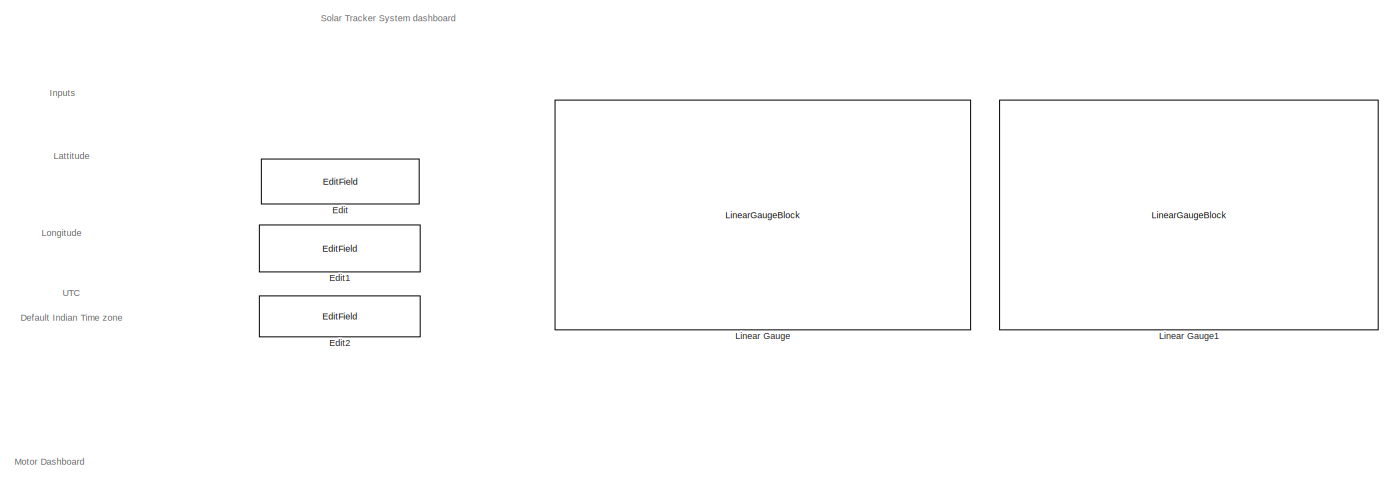
[diagram: root canvas - part 1/5, top center region]
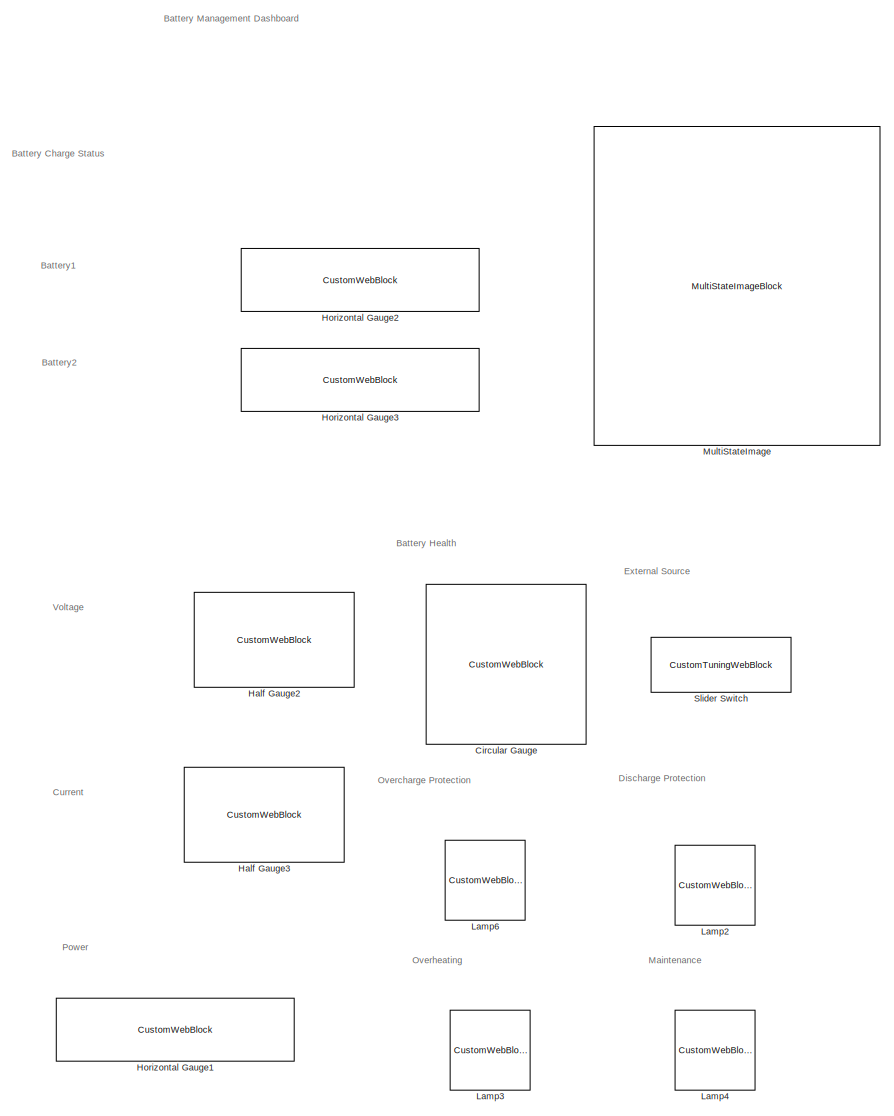
[diagram: root canvas - part 2/5, top right region]
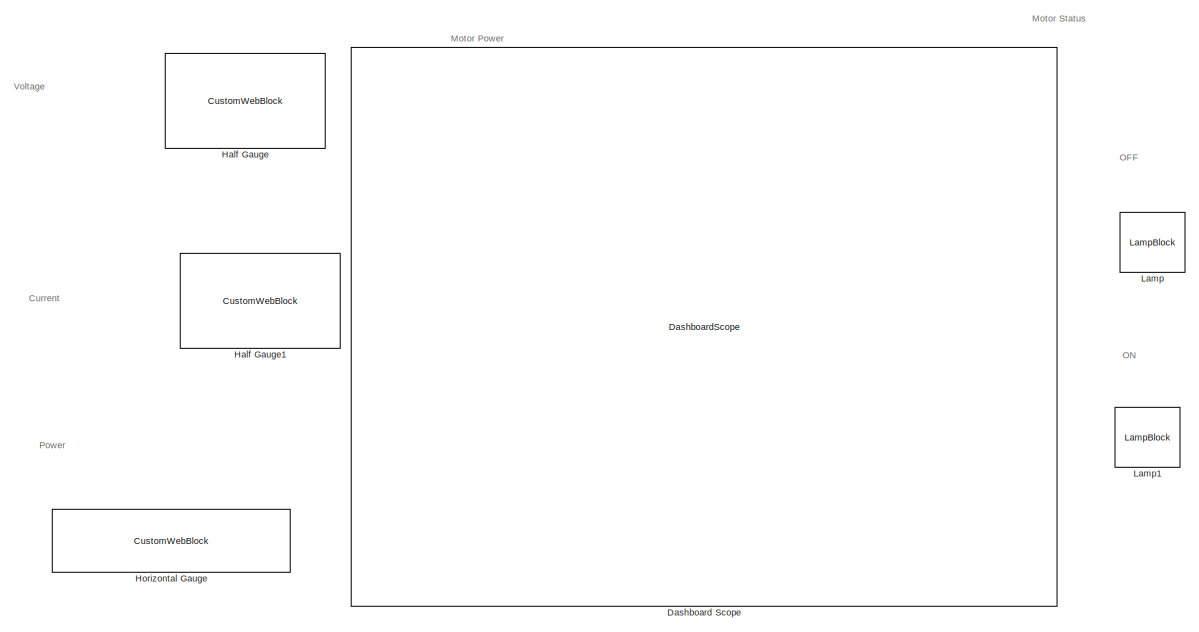
[diagram: root canvas - part 3/5, central region]
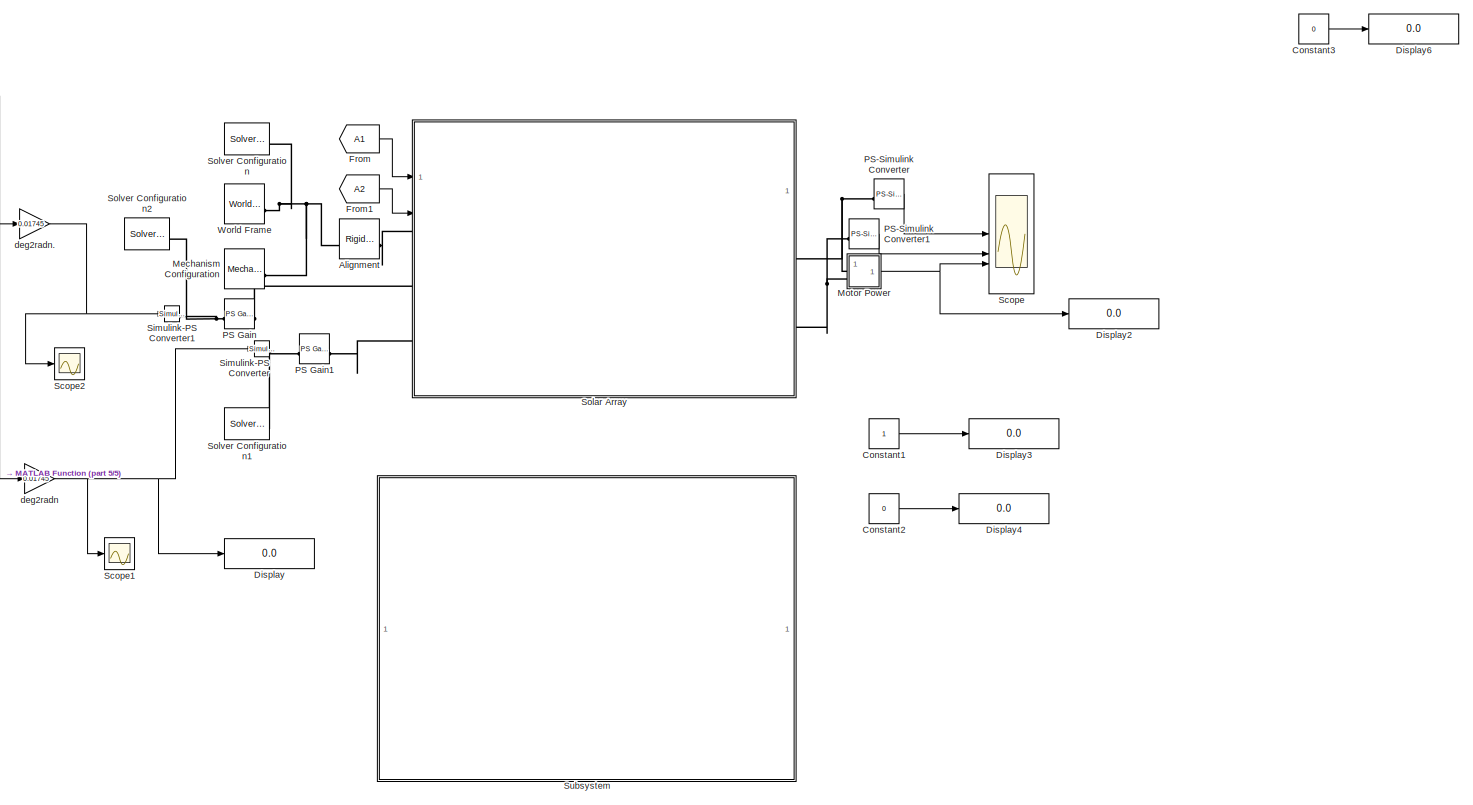
[diagram: root canvas - part 4/5, bottom center region]
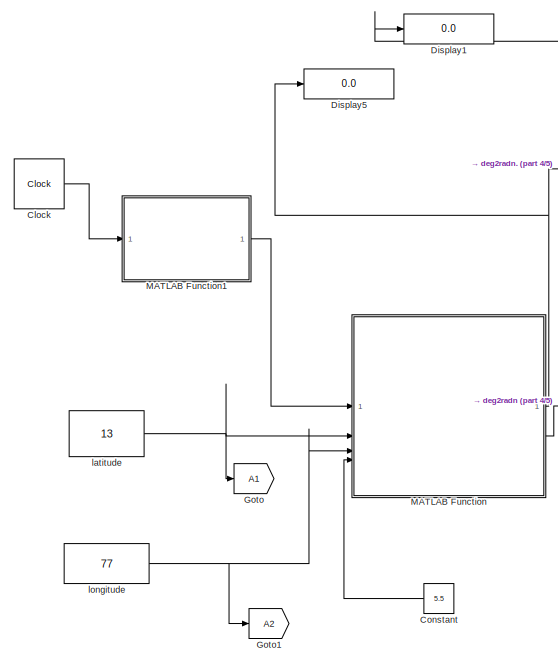
[diagram: root canvas - part 5/5, bottom left region]
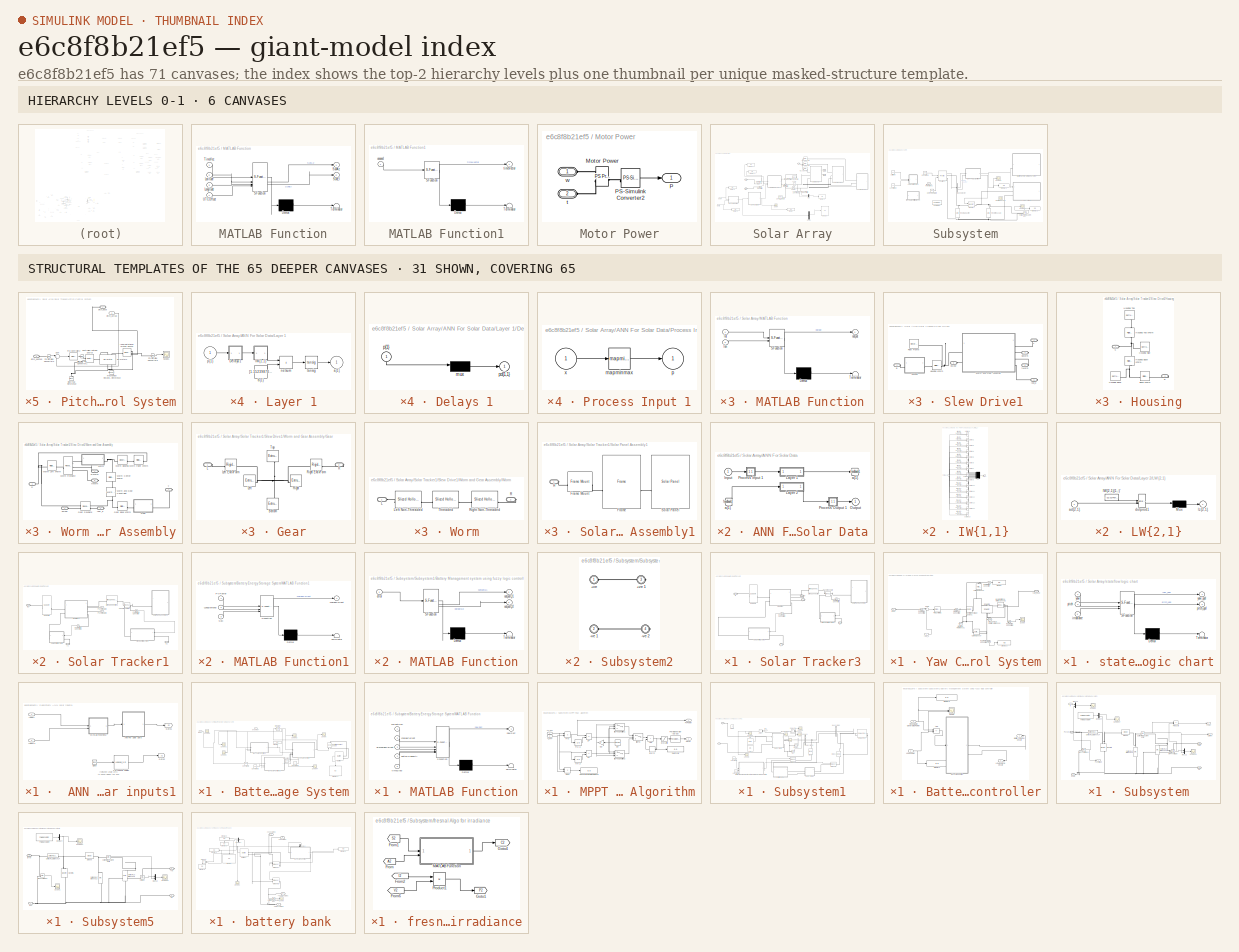
[diagram: thumbnail index - top-2 hierarchy levels (6 canvases) + 31 structural-template representatives of the remaining 65 canvases]
MODEL slx_e6c8f8b21ef5
KIND model
CONFIG AbsTol = auto
CONFIG EnableMultiTasking = off
CONFIG FixedStep = auto
CONFIG MaxStep = 0.01
CONFIG MinStep = auto
CONFIG PreLoadFcn = addpath(fullfile('WormAndGearConstraintSupport','Data'));\naddpath(fullfile('WormAndGearConstraintSupport','Scripts'));
CONFIG RelTol = 1e-3
CONFIG SampleTimeConstraint = Unconstrained
CONFIG SolverName = ode45
CONFIG StartTime = 0.0
CONFIG StopTime = 30
WORKSPACE source: external: MATLAB File  (data not in archive)
BLOCK [Reference] Alignment  REF=sm_lib/Frames and
Transforms/Rigid
Transform
  SourceBlock = sm_lib/Frames and\nTransforms/Rigid\nTransform
  SourceType = Rigid\nTransform
BLOCK [CustomWebBlock] Circular Gauge
  Configuration = {"components":[{"name":"CircularScaleComponent","settings":{"bounds":{"max":100,"min":0,"tickInterval":"auto"},"direction":"cw","flipLimits":0,"innerRadius":0.75,"internalTickHeightScaleFactor":1,"labelColor":[255,255,200],"labelFont":{"font":"Arial","fontSize":12},"labelRadius":0.528,"labelTransparency":1,"minorTickHeightScaleFactor":0.2,"needleImage":{"size":[200,50],"src":"data:image\/svg+xml;b...<+12640ch>
  LabelPosition = Hide
  ShowInitialText = on
BLOCK [Clock] Clock
  DisplayTime = on
BLOCK [Constant] Constant
  NameLocation = top
  Value = 5.5
BLOCK [Constant] Constant1
BLOCK [Constant] Constant2
  Value = 0
BLOCK [Constant] Constant3
  Value = 0
BLOCK [DashboardScope] Dashboard Scope
  NormalizeYAxis = on
  UpdateMode = Scroll
  Ymax = 300
  Ymin = -40
BLOCK [Display] Display
  Decimation = 1
BLOCK [Display] Display1
  Decimation = 1
BLOCK [Display] Display2
  Decimation = 1
BLOCK [Display] Display3
  Decimation = 1
BLOCK [Display] Display4
  Decimation = 1
BLOCK [Display] Display5
  Decimation = 1
BLOCK [Display] Display6
  Decimation = 1
BLOCK [EditField] Edit
  Alignment = Center
  LabelPosition = Hide
  ShowInitialText = on
BLOCK [EditField] Edit1
  Alignment = Center
  LabelPosition = Hide
  ShowInitialText = on
BLOCK [EditField] Edit2
  Alignment = Center
  LabelPosition = Hide
  ShowInitialText = on
BLOCK [From] From
  GotoTag = A1
BLOCK [From] From1
  GotoTag = A2
BLOCK [Goto] Goto
  GotoTag = A1
BLOCK [Goto] Goto1
  GotoTag = A2
BLOCK [CustomWebBlock] Half Gauge
  Configuration = {"components":[{"name":"CircularScaleComponent","settings":{"bounds":{"max":100,"min":0,"tickInterval":"auto"},"direction":"cw","flipLimits":0,"innerRadius":0.75,"internalTickHeightScaleFactor":1,"labelColor":[255,255,200],"labelFont":{"font":"Arial","fontSize":12},"labelRadius":0.528,"labelTransparency":1,"minorTickHeightScaleFactor":0.2,"needleImage":{"size":[200,50],"src":"data:image\/svg+xml;b...<+8210ch>  <repeated x4 — deduplicated; at blocks: Half Gauge, Half Gauge1, Half Gauge2, Half Gauge3>
  LabelPosition = Hide
  ShowInitialText = on
BLOCK [CustomWebBlock] Half Gauge1
  LabelPosition = Hide
  ShowInitialText = on
BLOCK [CustomWebBlock] Half Gauge2
  LabelPosition = Hide
  ShowInitialText = on
BLOCK [CustomWebBlock] Half Gauge3
  LabelPosition = Hide
  ShowInitialText = on
BLOCK [CustomWebBlock] Horizontal Gauge
  Configuration = {"components":[{"name":"LinearScaleComponent","settings":{"bounds":{"max":100,"min":0,"tickInterval":"auto"},"internalTickHeightScaleFactor":0.5,"labelColor":[255,255,200],"labelFont":{"font":"Arial","fontSize":12},"labelOffset":0.05,"labelTransparency":1,"needleImage":{"size":[21,75],"src":"data:image\/svg+xml;base64,PHN2ZyB4bWxucz0iaHR0cDovL3d3dy53My5vcmcvMjAwMC9zdmciIHhtbG5zOnhsaW5rPSJodHRwOi8v...<+4594ch>  <repeated x4 — deduplicated; at blocks: Horizontal Gauge, Horizontal Gauge1, Horizontal Gauge2, Horizontal Gauge3>
  LabelPosition = Hide
  ShowInitialText = on
BLOCK [CustomWebBlock] Horizontal Gauge1
  LabelPosition = Hide
  ShowInitialText = on
BLOCK [CustomWebBlock] Horizontal Gauge2
  LabelPosition = Hide
  ShowInitialText = on
BLOCK [CustomWebBlock] Horizontal Gauge3
  LabelPosition = Hide
  ShowInitialText = on
BLOCK [LampBlock] Lamp
  LabelPosition = Hide
BLOCK [LampBlock] Lamp1
  LabelPosition = Hide
BLOCK [CustomWebBlock] Lamp2
  Configuration = {"components":[{"name":"BackgroundImageComponent","settings":{"image":{"size":[150,150],"src":"data:image\/svg+xml;base64,PHN2ZyB4bWxucz0iaHR0cDovL3d3dy53My5vcmcvMjAwMC9zdmciIHhtbG5zOnhsaW5rPSJodHRwOi8vd3d3LnczLm9yZy8xOTk5L3hsaW5rIiB2aWV3Qm94PSIwIDAgNTAwIDUwMCI+PGRlZnM+PHN0eWxlPi5he2ZpbGw6dXJsKCNhKTt9LmJ7ZmlsbDp1cmwoI2IpO30uY3tmaWxsOnVybCgjYyk7fTwvc3R5bGU+PHJhZGlhbEdyYWRpZW50IGlkPSJhIiBjeD0iMjgzLj...<+21340ch>  <repeated x4 — deduplicated; at blocks: Lamp2, Lamp3, Lamp4, Lamp6>
  Icon = Custom
  LabelPosition = Hide
  ShowInitialText = on
  StateValueType = Discrete
BLOCK [CustomWebBlock] Lamp3
  Icon = Custom
  LabelPosition = Hide
  ShowInitialText = on
  StateValueType = Discrete
BLOCK [CustomWebBlock] Lamp4
  Icon = Custom
  LabelPosition = Hide
  ShowInitialText = on
  StateValueType = Discrete
BLOCK [CustomWebBlock] Lamp6
  Icon = Custom
  LabelPosition = Hide
  ShowInitialText = on
  StateValueType = Discrete
BLOCK [LinearGaugeBlock] Linear Gauge
  ScaleMax = 360
BLOCK [LinearGaugeBlock] Linear Gauge1
  ScaleMax = 360
  ScaleMin = -40
BLOCK [SubSystem] MATLAB Function
  ErrorFcn = Stateflow.Translate.translate
  LibrarySourceBlock = simulink/User-Defined\nFunctions/MATLAB Function
  PermitHierarchicalResolution = ExplicitOnly
  SFBlockType = MATLAB Function
  TreatAsAtomicUnit = on
BLOCK [Demux] MATLAB Function/ Demux 
  Outputs = 1
BLOCK [S-Function] MATLAB Function/ SFunction 
  EnableBusSupport = on
  FunctionName = sf_sfun
  PortCounts = [4 3]
  SFcnIsStateOwnerBlock = off
  SFunctionDeploymentMode = off
  Tag = Stateflow S-Function 2
BLOCK [Terminator] MATLAB Function/ Terminator 
BLOCK [Inport] MATLAB Function/Latitude
  Port = 2
BLOCK [Inport] MATLAB Function/Longitude
  Port = 3
BLOCK [Outport] MATLAB Function/SunAz
BLOCK [Outport] MATLAB Function/SunEl
  Port = 2
BLOCK [Inport] MATLAB Function/TimeVec
BLOCK [Inport] MATLAB Function/UTCOffset
  Port = 4
BLOCK [SubSystem] MATLAB Function1
  ErrorFcn = Stateflow.Translate.translate
  PermitHierarchicalResolution = ExplicitOnly
  SFBlockType = MATLAB Function
  TreatAsAtomicUnit = on
BLOCK [Demux] MATLAB Function1/ Demux 
  Outputs = 1
BLOCK [S-Function] MATLAB Function1/ SFunction 
  EnableBusSupport = on
  FunctionName = sf_sfun
  PortCounts = [1 2]
  SFcnIsStateOwnerBlock = off
  SFunctionDeploymentMode = off
  Tag = Stateflow S-Function 4
BLOCK [Terminator] MATLAB Function1/ Terminator 
BLOCK [Outport] MATLAB Function1/timeVector
BLOCK [Inport] MATLAB Function1/unused
BLOCK [Reference] Mechanism Configuration  REF=sm_lib/Utilities/Mechanism
Configuration
  SourceBlock = sm_lib/Utilities/Mechanism\nConfiguration
  SourceType = Mechanism\nConfiguration
BLOCK [SubSystem] Motor Power
BLOCK [Reference] Motor Power/Motor Power  REF=fl_ps_legacy_lib/Legacy Physical
Signals/Functions/PS Product
  SourceBlock = fl_ps_legacy_lib/Legacy Physical\nSignals/Functions/PS Product
  SourceType = PS Product
BLOCK [Outport] Motor Power/P
BLOCK [Reference] Motor Power/PS-Simulink Converter2  REF=nesl_utility/PS-Simulink
Converter
  SourceBlock = nesl_utility/PS-Simulink\nConverter
  SourceType = PS-Simulink\nConverter
BLOCK [PMIOPort] Motor Power/t
  Port = 2
  Side = Left
BLOCK [PMIOPort] Motor Power/w
  Side = Left
BLOCK [MultiStateImageBlock] MultiStateImage
BLOCK [Reference] PS Gain  REF=fl_lib/Physical Signals/Functions/PS Gain
  SourceBlock = fl_lib/Physical Signals/Functions/PS Gain
  SourceType = PS Gain
BLOCK [Reference] PS Gain1  REF=fl_lib/Physical Signals/Functions/PS Gain
  SourceBlock = fl_lib/Physical Signals/Functions/PS Gain
  SourceType = PS Gain
BLOCK [Reference] PS-Simulink Converter  REF=nesl_utility/PS-Simulink
Converter
  SourceBlock = nesl_utility/PS-Simulink\nConverter
  SourceType = PS-Simulink\nConverter
BLOCK [Reference] PS-Simulink Converter1  REF=nesl_utility/PS-Simulink
Converter
  SourceBlock = nesl_utility/PS-Simulink\nConverter
  SourceType = PS-Simulink\nConverter
BLOCK [Scope] Scope
  Floating = off
  NumInputPorts = 3
  ScopeSpecificationString = Simulink.scopes.TimeScopeBlockCfg('CurrentConfiguration', extmgr.ConfigurationSet(extmgr.Configuration('Core','General UI',true),extmgr.Configuration('Core','Source UI',true),extmgr.Configuration('Sources','WiredSimulink',true),extmgr.Configuration('Visuals','Time Domain',true,'SerializedDisplays',{struct('MinYLimReal','-14200.33976','MaxYLimReal','61529.50734','YLabelReal','','MinYLimMag','   0.0...<+3073ch>
BLOCK [Scope] Scope1
  Floating = off
  NumInputPorts = 1
  ScopeSpecificationString = Simulink.scopes.TimeScopeBlockCfg('CurrentConfiguration', extmgr.ConfigurationSet(extmgr.Configuration('Core','General UI',true),extmgr.Configuration('Core','Source UI',true),extmgr.Configuration('Sources','WiredSimulink',true,'DataLoggingVariableName','ScopeData1'),extmgr.Configuration('Visuals','Time Domain',true,'SerializedDisplays',{struct('MinYLimReal','1.02778','MaxYLimReal','1.03099','YLabe...<+1434ch>
BLOCK [Scope] Scope2
  Floating = off
  NumInputPorts = 1
  ScopeSpecificationString = Simulink.scopes.TimeScopeBlockCfg('CurrentConfiguration', extmgr.ConfigurationSet(extmgr.Configuration('Core','General UI',true),extmgr.Configuration('Core','Source UI',true),extmgr.Configuration('Sources','WiredSimulink',true,'DataLoggingVariableName','ScopeData2'),extmgr.Configuration('Visuals','Time Domain',true,'SerializedDisplays',{struct('MinYLimReal','4.28654','MaxYLimReal','4.29293','YLabe...<+1440ch>
BLOCK [Reference] Simulink-PS Converter  REF=nesl_utility/Simulink-PS
Converter
  SourceBlock = nesl_utility/Simulink-PS\nConverter
  SourceType = Simulink-PS\nConverter
BLOCK [Reference] Simulink-PS Converter1  REF=nesl_utility/Simulink-PS
Converter
  SourceBlock = nesl_utility/Simulink-PS\nConverter
  SourceType = Simulink-PS\nConverter
BLOCK [CustomTuningWebBlock] Slider Switch
  Configuration = {"components":[{"name":"CustomSwitchStateComponent","settings":{"position":[0,0,1,1],"states":[{"HitRegion":{"position":[0,0,0.5,1]},"Image":{"position":[0,0,1,1],"size":[1,1],"src":"data:image\/svg+xml;base64,PD94bWwgdmVyc2lvbj0iMS4wIiBlbmNvZGluZz0idXRmLTgiPz4NCjwhLS0gR2VuZXJhdG9yOiBBZG9iZSBJbGx1c3RyYXRvciAyNS4yLjEsIFNWRyBFeHBvcnQgUGx1Zy1JbiAuIFNWRyBWZXJzaW9uOiA2LjAwIEJ1aWxkIDApICAtLT4NCjxzdmcgdm...<+12680ch>
  LabelPosition = Hide
  ShowInitialText = on
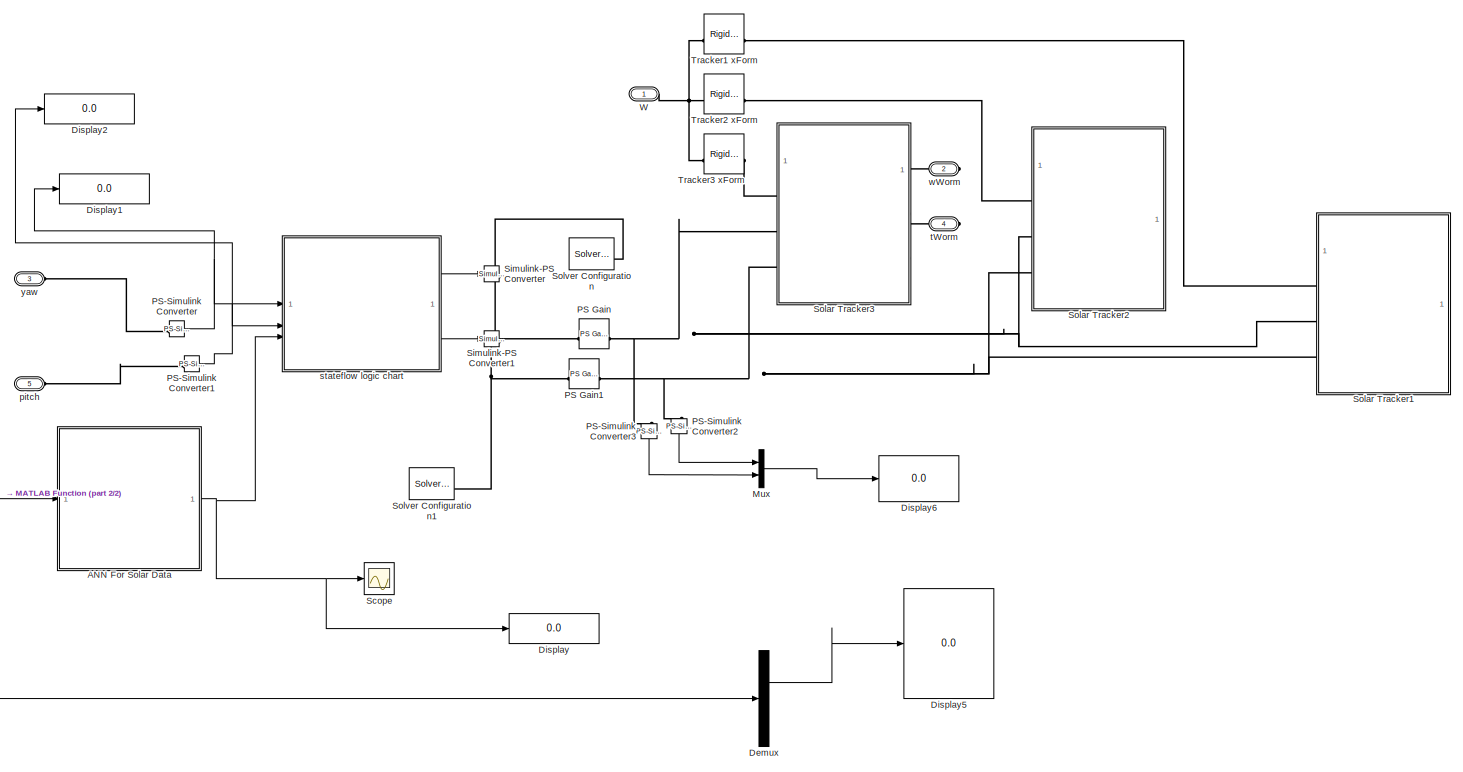
[diagram: Solar Array - part 1/2, most of the canvas]
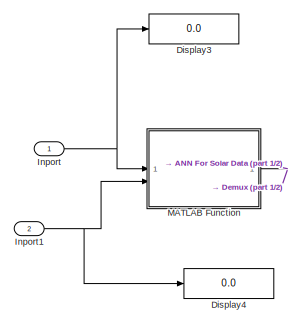
[diagram: Solar Array - part 2/2, middle left region]
BLOCK [SubSystem] Solar Array
BLOCK [SubSystem] Solar Array/ANN For Solar Data
BLOCK [From] Solar Array/ANN For Solar Data/ a{1} 
  GotoTag = feedback1
BLOCK [Inport] Solar Array/ANN For Solar Data/Input
  PortDimensions = 5
BLOCK [SubSystem] Solar Array/ANN For Solar Data/Layer 1
BLOCK [SubSystem] Solar Array/ANN For Solar Data/Layer 1/Delays 1
BLOCK [Mux] Solar Array/ANN For Solar Data/Layer 1/Delays 1/mux
  Inputs = 1
BLOCK [Outport] Solar Array/ANN For Solar Data/Layer 1/Delays 1/pd{1,1}
BLOCK [Inport] Solar Array/ANN For Solar Data/Layer 1/Delays 1/p{1}
  NameLocation = left
  PortDimensions = 5
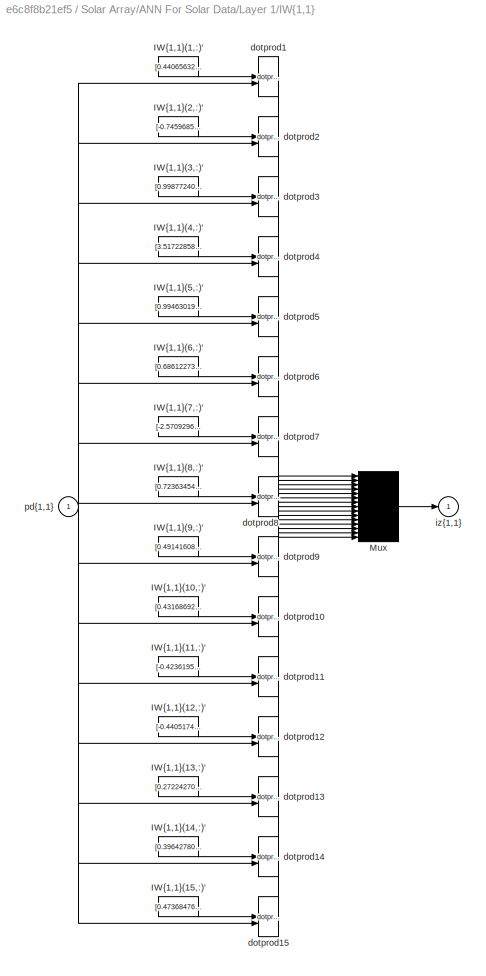
BLOCK [SubSystem] Solar Array/ANN For Solar Data/Layer 1/IW{1,1}
BLOCK [Constant] Solar Array/ANN For Solar Data/Layer 1/IW{1,1}/IW{1,1}(1,:)'
  Value = [0.440656326433005729459324584240675903856754302978515625;0.0082499057371298346874599616285195224918425083160400390625;-0.044099552646091534635619524351568543352186679840087890625;-0.00245166785449918260553214821584333549253642559051513671875;-1.5749584398746006019820242727291770279407501220703125]
BLOCK [Constant] Solar Array/ANN For Solar Data/Layer 1/IW{1,1}/IW{1,1}(10,:)'
  Value = [0.43168692246912721000029478091164492070674896240234375;0.034341159783117192194623612522264011204242706298828125;-0.0175976984815091157254851594871070119552314281463623046875;0.00372555310842444774299675458451019949279725551605224609375;-2.406642111020334429127842668094672262668609619140625]
BLOCK [Constant] Solar Array/ANN For Solar Data/Layer 1/IW{1,1}/IW{1,1}(11,:)'
  Value = [-0.42361955879776136413283893489278852939605712890625;1.10977633622082638709116508834995329380035400390625;-0.0835501550278960058992794301957474090158939361572265625;-2.61794715822211987443779435125179588794708251953125;-1.3518274325769723542833844476263038814067840576171875]
BLOCK [Constant] Solar Array/ANN For Solar Data/Layer 1/IW{1,1}/IW{1,1}(12,:)'
  Value = [-0.440517461325625137025241429000743664801120758056640625;-0.01151117447380817053470547506321963737718760967254638671875;0.045248099003977693133293769278679974377155303955078125;0.0032734020863622557973027227262718952260911464691162109375;1.4633094238269730436030613418552093207836151123046875]
BLOCK [Constant] Solar Array/ANN For Solar Data/Layer 1/IW{1,1}/IW{1,1}(13,:)'
  Value = [0.27224270352471890976886470525641925632953643798828125;-1.043836614745576429896800618735142052173614501953125;0.1896766694888755433456850596485310234129428863525390625;0.004672440805683443498796947324080974794924259185791015625;2.0409373300063844425267234328202903270721435546875]
BLOCK [Constant] Solar Array/ANN For Solar Data/Layer 1/IW{1,1}/IW{1,1}(14,:)'
  Value = [0.396427807374588436761797538565588183701038360595703125;-1.789625106557950484642560695647262036800384521484375;-2.682230989124238629273122569429688155651092529296875;8.9025806104754980907500794273801147937774658203125;-4.12817824967732338592441010405309498310089111328125]
BLOCK [Constant] Solar Array/ANN For Solar Data/Layer 1/IW{1,1}/IW{1,1}(15,:)'
  Value = [0.47368476745276277828367028632783330976963043212890625;-5.28165834570436576456131660961546003818511962890625;-0.581430249082355743439620709978044033050537109375;0.038405255237450079686123416422560694627463817596435546875;-2.768289678256326880045889993198215961456298828125]
BLOCK [Constant] Solar Array/ANN For Solar Data/Layer 1/IW{1,1}/IW{1,1}(2,:)'
  Value = [-0.7459685032199796506091615810873918235301971435546875;0.03958991653606432070677811907444265671074390411376953125;-0.06880802029727785262824824030758463777601718902587890625;-0.00192728313709774300155341819618115550838410854339599609375;-3.09817162747569074809916855883784592151641845703125]
BLOCK [Constant] Solar Array/ANN For Solar Data/Layer 1/IW{1,1}/IW{1,1}(3,:)'
  Value = [0.998772409858738274834877302055247128009796142578125;-0.119100118965819457006460879711084999144077301025390625;1.4734412523383586535175027165678329765796661376953125;0.1082246900612085227511016682910849340260028839111328125;-1.4500986091884959794384712949977256357669830322265625]
BLOCK [Constant] Solar Array/ANN For Solar Data/Layer 1/IW{1,1}/IW{1,1}(4,:)'
  Value = [3.517228586487414876415869002812542021274566650390625;-11.1530312237673268072057908284477889537811279296875;-0.03467422529560158783734635790096945129334926605224609375;-0.0253280237128823415559963905252516269683837890625;1.7180664031691634807685886698891408741474151611328125]
BLOCK [Constant] Solar Array/ANN For Solar Data/Layer 1/IW{1,1}/IW{1,1}(5,:)'
  Value = [0.9946301975619282753626748672104440629482269287109375;-0.1600082753687088743532740409136749804019927978515625;-1.521780916815078654735771124251186847686767578125;-0.1297648495221437048297019600795465521514415740966796875;-1.2414916778623013016158438404090702533721923828125]
BLOCK [Constant] Solar Array/ANN For Solar Data/Layer 1/IW{1,1}/IW{1,1}(6,:)'
  Value = [0.68612273992241623599142030798248015344142913818359375;-0.104982209681928895239622079316177405416965484619140625;-0.613241164669414917653966767829842865467071533203125;-0.05920533907694876252225668622486409731209278106689453125;1.0022019309219019067569433900644071400165557861328125]
BLOCK [Constant] Solar Array/ANN For Solar Data/Layer 1/IW{1,1}/IW{1,1}(7,:)'
  Value = [-2.57092967668512972778671610285528004169464111328125;-0.01478187733930325098441471709520556032657623291015625;-5.47678773959155140715893139713443815708160400390625;-0.6069798796372032345658453778014518320560455322265625;-1.7852945216614053425274732944671995937824249267578125]
BLOCK [Constant] Solar Array/ANN For Solar Data/Layer 1/IW{1,1}/IW{1,1}(8,:)'
  Value = [0.72363454345364075503965750613133423030376434326171875;-0.162701561217215739940655794271151535212993621826171875;0.385534273778422253986519763202522881329059600830078125;0.0214664874822279548582937280798432766459882259368896484375;1.186058790761077119668698287568986415863037109375]
BLOCK [Constant] Solar Array/ANN For Solar Data/Layer 1/IW{1,1}/IW{1,1}(9,:)'
  Value = [0.491416081983666319654702192565309815108776092529296875;-0.063370266488279758387847095946199260652065277099609375;-0.14774698755400617056210421651485376060009002685546875;-0.0228903924921436026373999794714109157212078571319580078125;0.65075914416514757387943745925440452992916107177734375]
BLOCK [Mux] Solar Array/ANN For Solar Data/Layer 1/IW{1,1}/Mux
  Inputs = 15
BLOCK [Reference] Solar Array/ANN For Solar Data/Layer 1/IW{1,1}/dotprod1  REF=neural/Weight Functions/dotprod
  SourceBlock = neural/Weight Functions/dotprod
  SourceType = DOTPROD
BLOCK [Reference] Solar Array/ANN For Solar Data/Layer 1/IW{1,1}/dotprod10  REF=neural/Weight Functions/dotprod
  SourceBlock = neural/Weight Functions/dotprod
  SourceType = DOTPROD
BLOCK [Reference] Solar Array/ANN For Solar Data/Layer 1/IW{1,1}/dotprod11  REF=neural/Weight Functions/dotprod
  SourceBlock = neural/Weight Functions/dotprod
  SourceType = DOTPROD
BLOCK [Reference] Solar Array/ANN For Solar Data/Layer 1/IW{1,1}/dotprod12  REF=neural/Weight Functions/dotprod
  SourceBlock = neural/Weight Functions/dotprod
  SourceType = DOTPROD
BLOCK [Reference] Solar Array/ANN For Solar Data/Layer 1/IW{1,1}/dotprod13  REF=neural/Weight Functions/dotprod
  SourceBlock = neural/Weight Functions/dotprod
  SourceType = DOTPROD
BLOCK [Reference] Solar Array/ANN For Solar Data/Layer 1/IW{1,1}/dotprod14  REF=neural/Weight Functions/dotprod
  SourceBlock = neural/Weight Functions/dotprod
  SourceType = DOTPROD
BLOCK [Reference] Solar Array/ANN For Solar Data/Layer 1/IW{1,1}/dotprod15  REF=neural/Weight Functions/dotprod
  SourceBlock = neural/Weight Functions/dotprod
  SourceType = DOTPROD
BLOCK [Reference] Solar Array/ANN For Solar Data/Layer 1/IW{1,1}/dotprod2  REF=neural/Weight Functions/dotprod
  SourceBlock = neural/Weight Functions/dotprod
  SourceType = DOTPROD
BLOCK [Reference] Solar Array/ANN For Solar Data/Layer 1/IW{1,1}/dotprod3  REF=neural/Weight Functions/dotprod
  SourceBlock = neural/Weight Functions/dotprod
  SourceType = DOTPROD
BLOCK [Reference] Solar Array/ANN For Solar Data/Layer 1/IW{1,1}/dotprod4  REF=neural/Weight Functions/dotprod
  SourceBlock = neural/Weight Functions/dotprod
  SourceType = DOTPROD
BLOCK [Reference] Solar Array/ANN For Solar Data/Layer 1/IW{1,1}/dotprod5  REF=neural/Weight Functions/dotprod
  SourceBlock = neural/Weight Functions/dotprod
  SourceType = DOTPROD
BLOCK [Reference] Solar Array/ANN For Solar Data/Layer 1/IW{1,1}/dotprod6  REF=neural/Weight Functions/dotprod
  SourceBlock = neural/Weight Functions/dotprod
  SourceType = DOTPROD
BLOCK [Reference] Solar Array/ANN For Solar Data/Layer 1/IW{1,1}/dotprod7  REF=neural/Weight Functions/dotprod
  SourceBlock = neural/Weight Functions/dotprod
  SourceType = DOTPROD
BLOCK [Reference] Solar Array/ANN For Solar Data/Layer 1/IW{1,1}/dotprod8  REF=neural/Weight Functions/dotprod
  SourceBlock = neural/Weight Functions/dotprod
  SourceType = DOTPROD
BLOCK [Reference] Solar Array/ANN For Solar Data/Layer 1/IW{1,1}/dotprod9  REF=neural/Weight Functions/dotprod
  SourceBlock = neural/Weight Functions/dotprod
  SourceType = DOTPROD
BLOCK [Outport] Solar Array/ANN For Solar Data/Layer 1/IW{1,1}/iz{1,1}
BLOCK [Inport] Solar Array/ANN For Solar Data/Layer 1/IW{1,1}/pd{1,1}
  PortDimensions = 5
BLOCK [Outport] Solar Array/ANN For Solar Data/Layer 1/a{1}
  InitialOutput = [0;0;0;0;0;0;0;0;0;0;0;0;0;0;0]
BLOCK [Constant] Solar Array/ANN For Solar Data/Layer 1/b{1}
  Value = [1.1523987025298774167225701603456400334835052490234375;0.7021964325858640609823169143055565655231475830078125;0.188737988975959225523837403670768253505229949951171875;-7.84046969712124397489105831482447683811187744140625;-0.118669448545166977826426091269240714609622955322265625;-0.049431980190826944887572125253427657298743724822998046875;3.929504687090930037385305695352144539356231689453125;0.046...<+443ch>
BLOCK [Sum] Solar Array/ANN For Solar Data/Layer 1/netsum
  IconShape = rectangular
  InputSameDT = on
  Inputs = 2
  OutDataTypeStr = Inherit: Same as first input
  SaturateOnIntegerOverflow = on
BLOCK [Inport] Solar Array/ANN For Solar Data/Layer 1/p{1}
  PortDimensions = 5
BLOCK [Reference] Solar Array/ANN For Solar Data/Layer 1/tansig  REF=neural/Transfer Functions/tansig
  SourceBlock = neural/Transfer Functions/tansig
  SourceType = TANSIG
BLOCK [SubSystem] Solar Array/ANN For Solar Data/Layer 2
BLOCK [SubSystem] Solar Array/ANN For Solar Data/Layer 2/Delays 1
BLOCK [Mux] Solar Array/ANN For Solar Data/Layer 2/Delays 1/mux
  Inputs = 1
BLOCK [Outport] Solar Array/ANN For Solar Data/Layer 2/Delays 1/pd{2,1}
BLOCK [Inport] Solar Array/ANN For Solar Data/Layer 2/Delays 1/p{2}
  NameLocation = left
  PortDimensions = 15
BLOCK [SubSystem] Solar Array/ANN For Solar Data/Layer 2/LW{2,1}
BLOCK [Constant] Solar Array/ANN For Solar Data/Layer 2/LW{2,1}/IW{2,1}(1,:)'
  Value = [-32.01745748567214633339972351677715778350830078125;1.31095166621215941660238968324847519397735595703125;0.42367758547066125540681014172150753438472747802734375;0.061422766084801093400269422772908001206815242767333984375;0.405265069982068959486554149407311342656612396240234375;2.479602125875937534971171771758235991001129150390625;0.07951932451130448720189036748706712387502193450927734375;2.053423...<+442ch>
BLOCK [Mux] Solar Array/ANN For Solar Data/Layer 2/LW{2,1}/Mux
  Inputs = 1
BLOCK [Inport] Solar Array/ANN For Solar Data/Layer 2/LW{2,1}/ad{2,1}
  PortDimensions = 15
BLOCK [Reference] Solar Array/ANN For Solar Data/Layer 2/LW{2,1}/dotprod1  REF=neural/Weight Functions/dotprod
  SourceBlock = neural/Weight Functions/dotprod
  SourceType = DOTPROD
BLOCK [Outport] Solar Array/ANN For Solar Data/Layer 2/LW{2,1}/lz{2,1}
BLOCK [Inport] Solar Array/ANN For Solar Data/Layer 2/a{1} 
  PortDimensions = 15
BLOCK [Outport] Solar Array/ANN For Solar Data/Layer 2/a{2}
BLOCK [Constant] Solar Array/ANN For Solar Data/Layer 2/b{2}
  Value = -2.072128088117164423920257831923663616180419921875
BLOCK [Sum] Solar Array/ANN For Solar Data/Layer 2/netsum
  IconShape = rectangular
  InputSameDT = on
  Inputs = 2
  OutDataTypeStr = Inherit: Same as first input
  SaturateOnIntegerOverflow = on
BLOCK [Reference] Solar Array/ANN For Solar Data/Layer 2/purelin  REF=neural/Transfer Functions/purelin
  SourceBlock = neural/Transfer Functions/purelin
  SourceType = PURELIN
BLOCK [Outport] Solar Array/ANN For Solar Data/Output
BLOCK [SubSystem] Solar Array/ANN For Solar Data/Process Input 1
BLOCK [Reference] Solar Array/ANN For Solar Data/Process Input 1/mapminmax  REF=neural/Processing Functions/mapminmax
  SourceBlock = neural/Processing Functions/mapminmax
  SourceType = MAPMINMAX Preprocess
BLOCK [Outport] Solar Array/ANN For Solar Data/Process Input 1/p
  PortDimensions = 5
BLOCK [Inport] Solar Array/ANN For Solar Data/Process Input 1/x
  PortDimensions = 5
BLOCK [SubSystem] Solar Array/ANN For Solar Data/Process Output 1
BLOCK [Inport] Solar Array/ANN For Solar Data/Process Output 1/a
  PortDimensions = 1
BLOCK [Reference] Solar Array/ANN For Solar Data/Process Output 1/mapminmax_reverse  REF=neural/Processing Functions/mapminmax_reverse
  SourceBlock = neural/Processing Functions/mapminmax_reverse
  SourceType = MAPMINMAX Reverse Process
BLOCK [Outport] Solar Array/ANN For Solar Data/Process Output 1/y
  PortDimensions = 1
BLOCK [Goto] Solar Array/ANN For Solar Data/a{1}
  GotoTag = feedback1
BLOCK [Demux] Solar Array/Demux
  Outputs = 1
BLOCK [Display] Solar Array/Display
  Decimation = 1
BLOCK [Display] Solar Array/Display1
  Decimation = 1
BLOCK [Display] Solar Array/Display2
  Decimation = 1
BLOCK [Display] Solar Array/Display3
  Decimation = 1
BLOCK [Display] Solar Array/Display4
  Decimation = 1
BLOCK [Display] Solar Array/Display5
  Decimation = 1
BLOCK [Display] Solar Array/Display6
  Decimation = 1
BLOCK [Inport] Solar Array/Inport
BLOCK [Inport] Solar Array/Inport1
  Port = 2
BLOCK [SubSystem] Solar Array/MATLAB Function
  ErrorFcn = Stateflow.Translate.translate
  PermitHierarchicalResolution = ExplicitOnly
  SFBlockType = MATLAB Function
  TreatAsAtomicUnit = on
BLOCK [Demux] Solar Array/MATLAB Function/ Demux 
  Outputs = 1
BLOCK [S-Function] Solar Array/MATLAB Function/ SFunction 
  EnableBusSupport = on
  FunctionName = sf_sfun
  PortCounts = [2 2]
  SFcnIsStateOwnerBlock = off
  SFunctionDeploymentMode = off
  Tag = Stateflow S-Function 1
BLOCK [Terminator] Solar Array/MATLAB Function/ Terminator 
BLOCK [Inport] Solar Array/MATLAB Function/lat
BLOCK [Inport] Solar Array/MATLAB Function/lon
  Port = 2
BLOCK [Outport] Solar Array/MATLAB Function/output
BLOCK [Mux] Solar Array/Mux
  DisplayOption = bar
  Inputs = 2
BLOCK [Reference] Solar Array/PS Gain  REF=fl_lib/Physical Signals/Functions/PS Gain
  SourceBlock = fl_lib/Physical Signals/Functions/PS Gain
  SourceType = PS Gain
BLOCK [Reference] Solar Array/PS Gain1  REF=fl_lib/Physical Signals/Functions/PS Gain
  SourceBlock = fl_lib/Physical Signals/Functions/PS Gain
  SourceType = PS Gain
BLOCK [Reference] Solar Array/PS-Simulink Converter  REF=nesl_utility/PS-Simulink
Converter
  SourceBlock = nesl_utility/PS-Simulink\nConverter
  SourceType = PS-Simulink\nConverter
BLOCK [Reference] Solar Array/PS-Simulink Converter1  REF=nesl_utility/PS-Simulink
Converter
  SourceBlock = nesl_utility/PS-Simulink\nConverter
  SourceType = PS-Simulink\nConverter
BLOCK [Reference] Solar Array/PS-Simulink Converter2  REF=nesl_utility/PS-Simulink
Converter
  NameLocation = left
  SourceBlock = nesl_utility/PS-Simulink\nConverter
  SourceType = PS-Simulink\nConverter
BLOCK [Reference] Solar Array/PS-Simulink Converter3  REF=nesl_utility/PS-Simulink
Converter
  NameLocation = left
  SourceBlock = nesl_utility/PS-Simulink\nConverter
  SourceType = PS-Simulink\nConverter
BLOCK [Scope] Solar Array/Scope
  Floating = off
  NumInputPorts = 1
  ScopeSpecificationString = Simulink.scopes.TimeScopeBlockCfg('CurrentConfiguration', extmgr.ConfigurationSet(extmgr.Configuration('Core','General UI',true),extmgr.Configuration('Core','Source UI',true),extmgr.Configuration('Sources','WiredSimulink',true,'DataLoggingVariableName','ScopeData1'),extmgr.Configuration('Visuals','Time Domain',true,'SerializedDisplays',{struct('MinYLimReal','14.80197','MaxYLimReal','34.80197','YLa...<+1408ch>
BLOCK [Reference] Solar Array/Simulink-PS Converter  REF=nesl_utility/Simulink-PS
Converter
  SourceBlock = nesl_utility/Simulink-PS\nConverter
  SourceType = Simulink-PS\nConverter
BLOCK [Reference] Solar Array/Simulink-PS Converter1  REF=nesl_utility/Simulink-PS
Converter
  SourceBlock = nesl_utility/Simulink-PS\nConverter
  SourceType = Simulink-PS\nConverter
BLOCK [SubSystem] Solar Array/Solar Tracker1
BLOCK [PMIOPort] Solar Array/Solar Tracker1/B1
  Side = Left
BLOCK [Reference] Solar Array/Solar Tracker1/Drive Connection1  REF=WormAndGearConstraintLibrary/Drive Connection
  LibrarySourceBlock = sm_solar_tracker_lib/Drive Connection
  SourceBlock = WormAndGearConstraintLibrary/Drive Connection
  SourceType = Drive Connection
BLOCK [Reference] Solar Array/Solar Tracker1/PS Terminator2  REF=fl_lib/Physical Signals/Sinks/PS Terminator
  SourceBlock = fl_lib/Physical Signals/Sinks/PS Terminator
  SourceType = PS Terminator
BLOCK [Reference] Solar Array/Solar Tracker1/PS Terminator3  REF=fl_lib/Physical Signals/Sinks/PS Terminator
  SourceBlock = fl_lib/Physical Signals/Sinks/PS Terminator
  SourceType = PS Terminator
BLOCK [Reference] Solar Array/Solar Tracker1/PS-Simulink Converter  REF=nesl_utility/PS-Simulink
Converter
  SourceBlock = nesl_utility/PS-Simulink\nConverter
  SourceType = PS-Simulink\nConverter
BLOCK [Reference] Solar Array/Solar Tracker1/PS-Simulink Converter1  REF=nesl_utility/PS-Simulink
Converter
  NameLocation = top
  SourceBlock = nesl_utility/PS-Simulink\nConverter
  SourceType = PS-Simulink\nConverter
BLOCK [Reference] Solar Array/Solar Tracker1/Panel Revolute1  REF=sm_lib/Joints/Revolute Joint
  SourceBlock = sm_lib/Joints/Revolute Joint
  SourceType = Revolute Joint
BLOCK [SubSystem] Solar Array/Solar Tracker1/Pitch Control System
  NameLocation = top
BLOCK [Reference] Solar Array/Solar Tracker1/Pitch Control System/Controlled Voltage Source  REF=fl_lib/Electrical/Electrical Sources/Controlled Voltage
Source
  SourceBlock = fl_lib/Electrical/Electrical Sources/Controlled Voltage\nSource
  SourceType = Controlled Voltage\nSource
BLOCK [Reference] Solar Array/Solar Tracker1/Pitch Control System/DC Motor2  REF=ee_lib/Electromechanical/Brushed Motors/DC Motor
  NameLocation = right
  SourceBlock = ee_lib/Electromechanical/Brushed Motors/DC Motor
  SourceType = DC Motor
BLOCK [Reference] Solar Array/Solar Tracker1/Pitch Control System/Electrical Reference  REF=fl_lib/Electrical/Electrical Elements/Electrical Reference
  NameLocation = right
  SourceBlock = fl_lib/Electrical/Electrical Elements/Electrical Reference
  SourceType = Electrical Reference
BLOCK [Reference] Solar Array/Solar Tracker1/Pitch Control System/Ideal Rotational Motion Sensor  REF=fl_lib/Mechanical/Mechanical Sensors/Ideal Rotational
Motion Sensor
  SourceBlock = fl_lib/Mechanical/Mechanical Sensors/Ideal Rotational\nMotion Sensor
  SourceType = Ideal Rotational\nMotion Sensor
BLOCK [Reference] Solar Array/Solar Tracker1/Pitch Control System/Mechanical Rotational Reference  REF=fl_lib/Mechanical/Rotational Elements/Mechanical
Rotational Reference
  NameLocation = right
  SourceBlock = fl_lib/Mechanical/Rotational Elements/Mechanical\nRotational Reference
  SourceType = Mechanical\nRotational Reference
BLOCK [Reference] Solar Array/Solar Tracker1/Pitch Control System/PID Controller2  REF=slpidlib/PID Controller
  LibrarySourceBlock = simulink/Continuous/PID Controller
  SourceBlock = slpidlib/PID Controller
  SourceType = PID 1dof
BLOCK [Reference] Solar Array/Solar Tracker1/Pitch Control System/PS-Simulink Converter3  REF=nesl_utility/PS-Simulink
Converter
  SourceBlock = nesl_utility/PS-Simulink\nConverter
  SourceType = PS-Simulink\nConverter
BLOCK [Reference] Solar Array/Solar Tracker1/Pitch Control System/PS-Simulink Converter5  REF=nesl_utility/PS-Simulink
Converter
  SourceBlock = nesl_utility/PS-Simulink\nConverter
  SourceType = PS-Simulink\nConverter
BLOCK [Scope] Solar Array/Solar Tracker1/Pitch Control System/Scope1
  Floating = off
  NumInputPorts = 1
  ScopeSpecificationString = Simulink.scopes.TimeScopeBlockCfg('CurrentConfiguration', extmgr.ConfigurationSet(extmgr.Configuration('Core','General UI',true),extmgr.Configuration('Core','Source UI',true),extmgr.Configuration('Sources','WiredSimulink',true,'DataLoggingVariableName','ScopeData4'),extmgr.Configuration('Visuals','Time Domain',true,'SerializedDisplays',{struct('MinYLimReal','-25605.92854','MaxYLimReal','30952.7704...<+1500ch>
BLOCK [Reference] Solar Array/Solar Tracker1/Pitch Control System/Simulink-PS Converter1  REF=nesl_utility/Simulink-PS
Converter
  SourceBlock = nesl_utility/Simulink-PS\nConverter
  SourceType = Simulink-PS\nConverter
BLOCK [Sum] Solar Array/Solar Tracker1/Pitch Control System/Sum
  Inputs = |+-
BLOCK [Inport] Solar Array/Solar Tracker1/Pitch Control System/pitch_actual
BLOCK [PMIOPort] Solar Array/Solar Tracker1/Pitch Control System/pitch_desired
  Port = 2
  Side = Left
BLOCK [PMIOPort] Solar Array/Solar Tracker1/Pitch Control System/pitch_input
  Side = Right
BLOCK [SubSystem] Solar Array/Solar Tracker1/Slew Drive1
  AncestorBlock = WormAndGearConstraintLibrary/Slew Drive
  LibrarySourceBlock = sm_solar_tracker_lib/Slew Drive
BLOCK [PMIOPort] Solar Array/Solar Tracker1/Slew Drive1/B
  Side = Left
BLOCK [SubSystem] Solar Array/Solar Tracker1/Slew Drive1/Housing
BLOCK [Reference] Solar Array/Solar Tracker1/Slew Drive1/Housing xForm  REF=sm_lib/Frames and
Transforms/Rigid
Transform
  SourceBlock = sm_lib/Frames and\nTransforms/Rigid\nTransform
  SourceType = Rigid\nTransform
BLOCK [PMIOPort] Solar Array/Solar Tracker1/Slew Drive1/Housing/B
  Port = 2
  Side = Right
BLOCK [Reference] Solar Array/Solar Tracker1/Slew Drive1/Housing/Base xForm  REF=sm_lib/Frames and
Transforms/Rigid
Transform
  SourceBlock = sm_lib/Frames and\nTransforms/Rigid\nTransform
  SourceType = Rigid\nTransform
BLOCK [Reference] Solar Array/Solar Tracker1/Slew Drive1/Housing/Housing Base  REF=sm_lib/Body Elements/Extruded Solid
  SourceBlock = sm_lib/Body Elements/Extruded Solid
  SourceType = Extruded Solid
BLOCK [Reference] Solar Array/Solar Tracker1/Slew Drive1/Housing/Housing Base xForm  REF=sm_lib/Frames and
Transforms/Rigid
Transform
  NameLocation = left
  SourceBlock = sm_lib/Frames and\nTransforms/Rigid\nTransform
  SourceType = Rigid\nTransform
BLOCK [Reference] Solar Array/Solar Tracker1/Slew Drive1/Housing/Housing Side  REF=sm_lib/Body Elements/Extruded Solid
  SourceBlock = sm_lib/Body Elements/Extruded Solid
  SourceType = Extruded Solid
BLOCK [Reference] Solar Array/Solar Tracker1/Slew Drive1/Housing/Housing Top  REF=sm_lib/Body Elements/Extruded Solid
  NameLocation = left
  SourceBlock = sm_lib/Body Elements/Extruded Solid
  SourceType = Extruded Solid
BLOCK [Reference] Solar Array/Solar Tracker1/Slew Drive1/Housing/Housing Top xForm  REF=sm_lib/Frames and
Transforms/Rigid
Transform
  NameLocation = left
  SourceBlock = sm_lib/Frames and\nTransforms/Rigid\nTransform
  SourceType = Rigid\nTransform
BLOCK [PMIOPort] Solar Array/Solar Tracker1/Slew Drive1/Housing/S
  Side = Left
BLOCK [Reference] Solar Array/Solar Tracker1/Slew Drive1/Root Frame  REF=sm_lib/Frames and
Transforms/Reference
Frame
  SourceBlock = sm_lib/Frames and\nTransforms/Reference\nFrame
  SourceType = Reference\nFrame
BLOCK [PMIOPort] Solar Array/Solar Tracker1/Slew Drive1/T
  Port = 2
  Side = Right
BLOCK [SubSystem] Solar Array/Solar Tracker1/Slew Drive1/Worm and Gear Assembly
BLOCK [SubSystem] Solar Array/Solar Tracker1/Slew Drive1/Worm and Gear Assembly/Gear
  AncestorBlock = WormAndGearConstraintLibrary/Sliced Hollow Cylinder
  LibrarySourceBlock = WormAndGearConstraintLibrary/Sliced Hollow Cylinder
BLOCK [Reference] Solar Array/Solar Tracker1/Slew Drive1/Worm and Gear Assembly/Gear Base xForm  REF=sm_lib/Frames and
Transforms/Rigid
Transform
  SourceBlock = sm_lib/Frames and\nTransforms/Rigid\nTransform
  SourceType = Rigid\nTransform
BLOCK [Reference] Solar Array/Solar Tracker1/Slew Drive1/Worm and Gear Assembly/Gear Revolute  REF=sm_lib/Joints/Revolute Joint
  SourceBlock = sm_lib/Joints/Revolute Joint
  SourceType = Revolute Joint
BLOCK [Reference] Solar Array/Solar Tracker1/Slew Drive1/Worm and Gear Assembly/Gear/Bottom  REF=sm_lib/Body Elements/Extruded Solid
  NameLocation = left
  SourceBlock = sm_lib/Body Elements/Extruded Solid
  SourceType = Extruded Solid
BLOCK [PMIOPort] Solar Array/Solar Tracker1/Slew Drive1/Worm and Gear Assembly/Gear/L
  Side = Left
BLOCK [Reference] Solar Array/Solar Tracker1/Slew Drive1/Worm and Gear Assembly/Gear/Left  REF=sm_lib/Body Elements/Extruded Solid
  SourceBlock = sm_lib/Body Elements/Extruded Solid
  SourceType = Extruded Solid
BLOCK [Reference] Solar Array/Solar Tracker1/Slew Drive1/Worm and Gear Assembly/Gear/Left End xForm  REF=sm_lib/Frames and
Transforms/Rigid
Transform
  SourceBlock = sm_lib/Frames and\nTransforms/Rigid\nTransform
  SourceType = Rigid\nTransform
BLOCK [PMIOPort] Solar Array/Solar Tracker1/Slew Drive1/Worm and Gear Assembly/Gear/R
  Port = 2
  Side = Right
BLOCK [Reference] Solar Array/Solar Tracker1/Slew Drive1/Worm and Gear Assembly/Gear/Right  REF=sm_lib/Body Elements/Extruded Solid
  SourceBlock = sm_lib/Body Elements/Extruded Solid
  SourceType = Extruded Solid
BLOCK [Reference] Solar Array/Solar Tracker1/Slew Drive1/Worm and Gear Assembly/Gear/Right End xForm  REF=sm_lib/Frames and
Transforms/Rigid
Transform
  SourceBlock = sm_lib/Frames and\nTransforms/Rigid\nTransform
  SourceType = Rigid\nTransform
BLOCK [Reference] Solar Array/Solar Tracker1/Slew Drive1/Worm and Gear Assembly/Gear/Top  REF=sm_lib/Body Elements/Extruded Solid
  NameLocation = left
  SourceBlock = sm_lib/Body Elements/Extruded Solid
  SourceType = Extruded Solid
BLOCK [PMIOPort] Solar Array/Solar Tracker1/Slew Drive1/Worm and Gear Assembly/R
  Side = Left
BLOCK [PMIOPort] Solar Array/Solar Tracker1/Slew Drive1/Worm and Gear Assembly/T
  Port = 2
  Side = Right
BLOCK [SubSystem] Solar Array/Solar Tracker1/Slew Drive1/Worm and Gear Assembly/Worm
BLOCK [Reference] Solar Array/Solar Tracker1/Slew Drive1/Worm and Gear Assembly/Worm Bearing  REF=sm_lib/Joints/Bearing Joint
  SourceBlock = sm_lib/Joints/Bearing Joint
  SourceType = Bearing Joint
BLOCK [Reference] Solar Array/Solar Tracker1/Slew Drive1/Worm and Gear Assembly/Worm Center xForm  REF=sm_lib/Frames and
Transforms/Rigid
Transform
  NameLocation = right
  SourceBlock = sm_lib/Frames and\nTransforms/Rigid\nTransform
  SourceType = Rigid\nTransform
BLOCK [Reference] Solar Array/Solar Tracker1/Slew Drive1/Worm and Gear Assembly/Worm Left xForm  REF=sm_lib/Frames and
Transforms/Rigid
Transform
  SourceBlock = sm_lib/Frames and\nTransforms/Rigid\nTransform
  SourceType = Rigid\nTransform
BLOCK [Reference] Solar Array/Solar Tracker1/Slew Drive1/Worm and Gear Assembly/Worm Revolute  REF=sm_lib/Joints/Revolute Joint
  SourceBlock = sm_lib/Joints/Revolute Joint
  SourceType = Revolute Joint
BLOCK [Reference] Solar Array/Solar Tracker1/Slew Drive1/Worm and Gear Assembly/Worm Right xForm  REF=sm_lib/Frames and
Transforms/Rigid
Transform
  SourceBlock = sm_lib/Frames and\nTransforms/Rigid\nTransform
  SourceType = Rigid\nTransform
BLOCK [Reference] Solar Array/Solar Tracker1/Slew Drive1/Worm and Gear Assembly/Worm and Gear Constraint  REF=sm_lib/Gears and
Couplings/Gears/Worm and Gear
Constraint
  NameLocation = right
  SourceBlock = sm_lib/Gears and\nCouplings/Gears/Worm and Gear\nConstraint
  SourceType = Worm and Gear\nConstraint
BLOCK [PMIOPort] Solar Array/Solar Tracker1/Slew Drive1/Worm and Gear Assembly/Worm/L
  Side = Left
BLOCK [Reference] Solar Array/Solar Tracker1/Slew Drive1/Worm and Gear Assembly/Worm/Left Non-Threaded  REF=WormAndGearConstraintLibrary/Sliced Hollow Cylinder
  SourceBlock = WormAndGearConstraintLibrary/Sliced Hollow Cylinder
  SourceType = Sliced Hollow Cylinder
BLOCK [PMIOPort] Solar Array/Solar Tracker1/Slew Drive1/Worm and Gear Assembly/Worm/R
  Port = 2
  Side = Right
BLOCK [Reference] Solar Array/Solar Tracker1/Slew Drive1/Worm and Gear Assembly/Worm/Right Non-Threaded  REF=WormAndGearConstraintLibrary/Sliced Hollow Cylinder
  SourceBlock = WormAndGearConstraintLibrary/Sliced Hollow Cylinder
  SourceType = Sliced Hollow Cylinder
BLOCK [Reference] Solar Array/Solar Tracker1/Slew Drive1/Worm and Gear Assembly/Worm/Threaded  REF=WormAndGearConstraintLibrary/Sliced Hollow Cylinder
  SourceBlock = WormAndGearConstraintLibrary/Sliced Hollow Cylinder
  SourceType = Sliced Hollow Cylinder
BLOCK [PMIOPort] Solar Array/Solar Tracker1/Slew Drive1/Worm and Gear Assembly/qGear
  Port = 3
  Side = Left
BLOCK [PMIOPort] Solar Array/Solar Tracker1/Slew Drive1/Worm and Gear Assembly/tWorm
  Port = 5
  Side = Right
BLOCK [PMIOPort] Solar Array/Solar Tracker1/Slew Drive1/Worm and Gear Assembly/wWorm
  Port = 4
  Side = Right
BLOCK [PMIOPort] Solar Array/Solar Tracker1/Slew Drive1/Worm and Gear Assembly/yaw_a
  Port = 6
  Side = Right
BLOCK [PMIOPort] Solar Array/Solar Tracker1/Slew Drive1/qGear
  Port = 3
  Side = Left
BLOCK [PMIOPort] Solar Array/Solar Tracker1/Slew Drive1/tWorm
  Port = 5
  Side = Right
BLOCK [PMIOPort] Solar Array/Solar Tracker1/Slew Drive1/wWorm
  Port = 4
  Side = Right
BLOCK [PMIOPort] Solar Array/Solar Tracker1/Slew Drive1/yaw_a
  Port = 6
  Side = Right
BLOCK [SubSystem] Solar Array/Solar Tracker1/Solar Panel Assembly1
BLOCK [Reference] Solar Array/Solar Tracker1/Solar Panel Assembly1/Frame  REF=WormAndGearConstraintLibrary/Frame
  LibrarySourceBlock = sm_solar_tracker_lib/Frame
  SourceBlock = WormAndGearConstraintLibrary/Frame
  SourceType = Frame
BLOCK [Reference] Solar Array/Solar Tracker1/Solar Panel Assembly1/Frame Mount  REF=WormAndGearConstraintLibrary/Frame Mount
  LibrarySourceBlock = sm_solar_tracker_lib/Frame Mount
  SourceBlock = WormAndGearConstraintLibrary/Frame Mount
  SourceType = Frame Mount
BLOCK [PMIOPort] Solar Array/Solar Tracker1/Solar Panel Assembly1/H
  Side = Left
BLOCK [Reference] Solar Array/Solar Tracker1/Solar Panel Assembly1/Solar Panel  REF=WormAndGearConstraintLibrary/Solar Panel
  LibrarySourceBlock = sm_solar_tracker_lib/Solar Panel
  SourceBlock = WormAndGearConstraintLibrary/Solar Panel
  SourceType = Solar Panel
BLOCK [Reference] Solar Array/Solar Tracker1/Support1  REF=WormAndGearConstraintLibrary/Support
  LibrarySourceBlock = sm_solar_tracker_lib/Support
  SourceBlock = WormAndGearConstraintLibrary/Support
  SourceType = Support
BLOCK [SubSystem] Solar Array/Solar Tracker1/Yaw Control System
  NameLocation = top
BLOCK [Reference] Solar Array/Solar Tracker1/Yaw Control System/Controlled Voltage Source1  REF=fl_lib/Electrical/Electrical Sources/Controlled Voltage
Source
  SourceBlock = fl_lib/Electrical/Electrical Sources/Controlled Voltage\nSource
  SourceType = Controlled Voltage\nSource
BLOCK [Reference] Solar Array/Solar Tracker1/Yaw Control System/DC Motor1  REF=ee_lib/Electromechanical/Brushed Motors/DC Motor
  NameLocation = right
  SourceBlock = ee_lib/Electromechanical/Brushed Motors/DC Motor
  SourceType = DC Motor
BLOCK [Reference] Solar Array/Solar Tracker1/Yaw Control System/Electrical Reference1  REF=fl_lib/Electrical/Electrical Elements/Electrical Reference
  NameLocation = right
  SourceBlock = fl_lib/Electrical/Electrical Elements/Electrical Reference
  SourceType = Electrical Reference
BLOCK [Reference] Solar Array/Solar Tracker1/Yaw Control System/Ideal Rotational Motion Sensor1  REF=fl_lib/Mechanical/Mechanical Sensors/Ideal Rotational
Motion Sensor
  SourceBlock = fl_lib/Mechanical/Mechanical Sensors/Ideal Rotational\nMotion Sensor
  SourceType = Ideal Rotational\nMotion Sensor
BLOCK [Reference] Solar Array/Solar Tracker1/Yaw Control System/Mechanical Rotational Reference1  REF=fl_lib/Mechanical/Rotational Elements/Mechanical
Rotational Reference
  NameLocation = right
  SourceBlock = fl_lib/Mechanical/Rotational Elements/Mechanical\nRotational Reference
  SourceType = Mechanical\nRotational Reference
BLOCK [Reference] Solar Array/Solar Tracker1/Yaw Control System/PID Controller1  REF=slpidlib/PID Controller
  LibrarySourceBlock = simulink/Continuous/PID Controller
  SourceBlock = slpidlib/PID Controller
  SourceType = PID 1dof
BLOCK [Reference] Solar Array/Solar Tracker1/Yaw Control System/PS-Simulink Converter2  REF=nesl_utility/PS-Simulink
Converter
  SourceBlock = nesl_utility/PS-Simulink\nConverter
  SourceType = PS-Simulink\nConverter
BLOCK [Reference] Solar Array/Solar Tracker1/Yaw Control System/PS-Simulink Converter4  REF=nesl_utility/PS-Simulink
Converter
  SourceBlock = nesl_utility/PS-Simulink\nConverter
  SourceType = PS-Simulink\nConverter
BLOCK [Scope] Solar Array/Solar Tracker1/Yaw Control System/Scope
  Floating = off
  NumInputPorts = 1
  ScopeSpecificationString = Simulink.scopes.TimeScopeBlockCfg('CurrentConfiguration', extmgr.ConfigurationSet(extmgr.Configuration('Core','General UI',true),extmgr.Configuration('Core','Source UI',true),extmgr.Configuration('Sources','WiredSimulink',true,'DataLoggingVariableName','ScopeData1'),extmgr.Configuration('Visuals','Time Domain',true,'SerializedDisplays',{struct('MinYLimReal','-25605.92854','MaxYLimReal','30952.7704...<+1500ch>  <repeated x3 — deduplicated; at blocks: Scope, Scope1>
BLOCK [Reference] Solar Array/Solar Tracker1/Yaw Control System/Simulink-PS Converter2  REF=nesl_utility/Simulink-PS
Converter
  SourceBlock = nesl_utility/Simulink-PS\nConverter
  SourceType = Simulink-PS\nConverter
BLOCK [Sum] Solar Array/Solar Tracker1/Yaw Control System/Sum1
  Inputs = |+-
BLOCK [Inport] Solar Array/Solar Tracker1/Yaw Control System/yaw_actual
BLOCK [PMIOPort] Solar Array/Solar Tracker1/Yaw Control System/yaw_desired
  Port = 2
  Side = Left
BLOCK [PMIOPort] Solar Array/Solar Tracker1/Yaw Control System/yaw_input
  Side = Right
BLOCK [PMIOPort] Solar Array/Solar Tracker1/p1
  Port = 3
  Side = Left
BLOCK [PMIOPort] Solar Array/Solar Tracker1/y1
  Port = 2
  Side = Left
BLOCK [SubSystem] Solar Array/Solar Tracker2
BLOCK [PMIOPort] Solar Array/Solar Tracker2/B1
  Side = Left
BLOCK [Reference] Solar Array/Solar Tracker2/Drive Connection1  REF=WormAndGearConstraintLibrary/Drive Connection
  LibrarySourceBlock = sm_solar_tracker_lib/Drive Connection
  SourceBlock = WormAndGearConstraintLibrary/Drive Connection
  SourceType = Drive Connection
BLOCK [Reference] Solar Array/Solar Tracker2/PS Terminator2  REF=fl_lib/Physical Signals/Sinks/PS Terminator
  SourceBlock = fl_lib/Physical Signals/Sinks/PS Terminator
  SourceType = PS Terminator
BLOCK [Reference] Solar Array/Solar Tracker2/PS Terminator3  REF=fl_lib/Physical Signals/Sinks/PS Terminator
  SourceBlock = fl_lib/Physical Signals/Sinks/PS Terminator
  SourceType = PS Terminator
BLOCK [Reference] Solar Array/Solar Tracker2/PS-Simulink Converter  REF=nesl_utility/PS-Simulink
Converter
  SourceBlock = nesl_utility/PS-Simulink\nConverter
  SourceType = PS-Simulink\nConverter
BLOCK [Reference] Solar Array/Solar Tracker2/PS-Simulink Converter1  REF=nesl_utility/PS-Simulink
Converter
  NameLocation = top
  SourceBlock = nesl_utility/PS-Simulink\nConverter
  SourceType = PS-Simulink\nConverter
BLOCK [Reference] Solar Array/Solar Tracker2/Panel Revolute1  REF=sm_lib/Joints/Revolute Joint
  SourceBlock = sm_lib/Joints/Revolute Joint
  SourceType = Revolute Joint
BLOCK [SubSystem] Solar Array/Solar Tracker2/Pitch Control System
  NameLocation = top
BLOCK [Reference] Solar Array/Solar Tracker2/Pitch Control System/Controlled Voltage Source  REF=fl_lib/Electrical/Electrical Sources/Controlled Voltage
Source
  SourceBlock = fl_lib/Electrical/Electrical Sources/Controlled Voltage\nSource
  SourceType = Controlled Voltage\nSource
BLOCK [Reference] Solar Array/Solar Tracker2/Pitch Control System/DC Motor2  REF=ee_lib/Electromechanical/Brushed Motors/DC Motor
  NameLocation = right
  SourceBlock = ee_lib/Electromechanical/Brushed Motors/DC Motor
  SourceType = DC Motor
BLOCK [Reference] Solar Array/Solar Tracker2/Pitch Control System/Electrical Reference  REF=fl_lib/Electrical/Electrical Elements/Electrical Reference
  NameLocation = right
  SourceBlock = fl_lib/Electrical/Electrical Elements/Electrical Reference
  SourceType = Electrical Reference
BLOCK [Reference] Solar Array/Solar Tracker2/Pitch Control System/Ideal Rotational Motion Sensor  REF=fl_lib/Mechanical/Mechanical Sensors/Ideal Rotational
Motion Sensor
  SourceBlock = fl_lib/Mechanical/Mechanical Sensors/Ideal Rotational\nMotion Sensor
  SourceType = Ideal Rotational\nMotion Sensor
BLOCK [Inport] Solar Array/Solar Tracker2/Pitch Control System/In1
BLOCK [Reference] Solar Array/Solar Tracker2/Pitch Control System/Mechanical Rotational Reference  REF=fl_lib/Mechanical/Rotational Elements/Mechanical
Rotational Reference
  NameLocation = right
  SourceBlock = fl_lib/Mechanical/Rotational Elements/Mechanical\nRotational Reference
  SourceType = Mechanical\nRotational Reference
BLOCK [Reference] Solar Array/Solar Tracker2/Pitch Control System/PID Controller2  REF=slpidlib/PID Controller
  LibrarySourceBlock = simulink/Continuous/PID Controller
  SourceBlock = slpidlib/PID Controller
  SourceType = PID 1dof
BLOCK [Reference] Solar Array/Solar Tracker2/Pitch Control System/PS-Simulink Converter3  REF=nesl_utility/PS-Simulink
Converter
  SourceBlock = nesl_utility/PS-Simulink\nConverter
  SourceType = PS-Simulink\nConverter
BLOCK [Reference] Solar Array/Solar Tracker2/Pitch Control System/PS-Simulink Converter5  REF=nesl_utility/PS-Simulink
Converter
  SourceBlock = nesl_utility/PS-Simulink\nConverter
  SourceType = PS-Simulink\nConverter
BLOCK [Scope] Solar Array/Solar Tracker2/Pitch Control System/Scope1
  Floating = off
  NumInputPorts = 1
BLOCK [Reference] Solar Array/Solar Tracker2/Pitch Control System/Simulink-PS Converter1  REF=nesl_utility/Simulink-PS
Converter
  SourceBlock = nesl_utility/Simulink-PS\nConverter
  SourceType = Simulink-PS\nConverter
BLOCK [Sum] Solar Array/Solar Tracker2/Pitch Control System/Sum
  Inputs = |+-
BLOCK [PMIOPort] Solar Array/Solar Tracker2/Pitch Control System/pitch_desired
  Port = 2
  Side = Left
BLOCK [PMIOPort] Solar Array/Solar Tracker2/Pitch Control System/pitch_input
  Side = Right
BLOCK [SubSystem] Solar Array/Solar Tracker2/Slew Drive1
  AncestorBlock = WormAndGearConstraintLibrary/Slew Drive
  LibrarySourceBlock = sm_solar_tracker_lib/Slew Drive
BLOCK [PMIOPort] Solar Array/Solar Tracker2/Slew Drive1/B
  Side = Left
BLOCK [SubSystem] Solar Array/Solar Tracker2/Slew Drive1/Housing
BLOCK [Reference] Solar Array/Solar Tracker2/Slew Drive1/Housing xForm  REF=sm_lib/Frames and
Transforms/Rigid
Transform
  SourceBlock = sm_lib/Frames and\nTransforms/Rigid\nTransform
  SourceType = Rigid\nTransform
BLOCK [PMIOPort] Solar Array/Solar Tracker2/Slew Drive1/Housing/B
  Port = 2
  Side = Right
BLOCK [Reference] Solar Array/Solar Tracker2/Slew Drive1/Housing/Base xForm  REF=sm_lib/Frames and
Transforms/Rigid
Transform
  SourceBlock = sm_lib/Frames and\nTransforms/Rigid\nTransform
  SourceType = Rigid\nTransform
BLOCK [Reference] Solar Array/Solar Tracker2/Slew Drive1/Housing/Housing Base  REF=sm_lib/Body Elements/Extruded Solid
  SourceBlock = sm_lib/Body Elements/Extruded Solid
  SourceType = Extruded Solid
BLOCK [Reference] Solar Array/Solar Tracker2/Slew Drive1/Housing/Housing Base xForm  REF=sm_lib/Frames and
Transforms/Rigid
Transform
  NameLocation = left
  SourceBlock = sm_lib/Frames and\nTransforms/Rigid\nTransform
  SourceType = Rigid\nTransform
BLOCK [Reference] Solar Array/Solar Tracker2/Slew Drive1/Housing/Housing Side  REF=sm_lib/Body Elements/Extruded Solid
  SourceBlock = sm_lib/Body Elements/Extruded Solid
  SourceType = Extruded Solid
BLOCK [Reference] Solar Array/Solar Tracker2/Slew Drive1/Housing/Housing Top  REF=sm_lib/Body Elements/Extruded Solid
  NameLocation = left
  SourceBlock = sm_lib/Body Elements/Extruded Solid
  SourceType = Extruded Solid
BLOCK [Reference] Solar Array/Solar Tracker2/Slew Drive1/Housing/Housing Top xForm  REF=sm_lib/Frames and
Transforms/Rigid
Transform
  NameLocation = left
  SourceBlock = sm_lib/Frames and\nTransforms/Rigid\nTransform
  SourceType = Rigid\nTransform
BLOCK [PMIOPort] Solar Array/Solar Tracker2/Slew Drive1/Housing/S
  Side = Left
BLOCK [Reference] Solar Array/Solar Tracker2/Slew Drive1/Root Frame  REF=sm_lib/Frames and
Transforms/Reference
Frame
  SourceBlock = sm_lib/Frames and\nTransforms/Reference\nFrame
  SourceType = Reference\nFrame
BLOCK [PMIOPort] Solar Array/Solar Tracker2/Slew Drive1/T
  Port = 2
  Side = Right
BLOCK [SubSystem] Solar Array/Solar Tracker2/Slew Drive1/Worm and Gear Assembly
BLOCK [SubSystem] Solar Array/Solar Tracker2/Slew Drive1/Worm and Gear Assembly/Gear
  AncestorBlock = WormAndGearConstraintLibrary/Sliced Hollow Cylinder
  LibrarySourceBlock = WormAndGearConstraintLibrary/Sliced Hollow Cylinder
BLOCK [Reference] Solar Array/Solar Tracker2/Slew Drive1/Worm and Gear Assembly/Gear Base xForm  REF=sm_lib/Frames and
Transforms/Rigid
Transform
  SourceBlock = sm_lib/Frames and\nTransforms/Rigid\nTransform
  SourceType = Rigid\nTransform
BLOCK [Reference] Solar Array/Solar Tracker2/Slew Drive1/Worm and Gear Assembly/Gear Revolute  REF=sm_lib/Joints/Revolute Joint
  SourceBlock = sm_lib/Joints/Revolute Joint
  SourceType = Revolute Joint
BLOCK [Reference] Solar Array/Solar Tracker2/Slew Drive1/Worm and Gear Assembly/Gear/Bottom  REF=sm_lib/Body Elements/Extruded Solid
  NameLocation = left
  SourceBlock = sm_lib/Body Elements/Extruded Solid
  SourceType = Extruded Solid
BLOCK [PMIOPort] Solar Array/Solar Tracker2/Slew Drive1/Worm and Gear Assembly/Gear/L
  Side = Left
BLOCK [Reference] Solar Array/Solar Tracker2/Slew Drive1/Worm and Gear Assembly/Gear/Left  REF=sm_lib/Body Elements/Extruded Solid
  SourceBlock = sm_lib/Body Elements/Extruded Solid
  SourceType = Extruded Solid
BLOCK [Reference] Solar Array/Solar Tracker2/Slew Drive1/Worm and Gear Assembly/Gear/Left End xForm  REF=sm_lib/Frames and
Transforms/Rigid
Transform
  SourceBlock = sm_lib/Frames and\nTransforms/Rigid\nTransform
  SourceType = Rigid\nTransform
BLOCK [PMIOPort] Solar Array/Solar Tracker2/Slew Drive1/Worm and Gear Assembly/Gear/R
  Port = 2
  Side = Right
BLOCK [Reference] Solar Array/Solar Tracker2/Slew Drive1/Worm and Gear Assembly/Gear/Right  REF=sm_lib/Body Elements/Extruded Solid
  SourceBlock = sm_lib/Body Elements/Extruded Solid
  SourceType = Extruded Solid
BLOCK [Reference] Solar Array/Solar Tracker2/Slew Drive1/Worm and Gear Assembly/Gear/Right End xForm  REF=sm_lib/Frames and
Transforms/Rigid
Transform
  SourceBlock = sm_lib/Frames and\nTransforms/Rigid\nTransform
  SourceType = Rigid\nTransform
BLOCK [Reference] Solar Array/Solar Tracker2/Slew Drive1/Worm and Gear Assembly/Gear/Top  REF=sm_lib/Body Elements/Extruded Solid
  NameLocation = left
  SourceBlock = sm_lib/Body Elements/Extruded Solid
  SourceType = Extruded Solid
BLOCK [PMIOPort] Solar Array/Solar Tracker2/Slew Drive1/Worm and Gear Assembly/R
  Side = Left
BLOCK [PMIOPort] Solar Array/Solar Tracker2/Slew Drive1/Worm and Gear Assembly/T
  Port = 2
  Side = Right
BLOCK [SubSystem] Solar Array/Solar Tracker2/Slew Drive1/Worm and Gear Assembly/Worm
BLOCK [Reference] Solar Array/Solar Tracker2/Slew Drive1/Worm and Gear Assembly/Worm Bearing  REF=sm_lib/Joints/Bearing Joint
  SourceBlock = sm_lib/Joints/Bearing Joint
  SourceType = Bearing Joint
BLOCK [Reference] Solar Array/Solar Tracker2/Slew Drive1/Worm and Gear Assembly/Worm Center xForm  REF=sm_lib/Frames and
Transforms/Rigid
Transform
  NameLocation = right
  SourceBlock = sm_lib/Frames and\nTransforms/Rigid\nTransform
  SourceType = Rigid\nTransform
BLOCK [Reference] Solar Array/Solar Tracker2/Slew Drive1/Worm and Gear Assembly/Worm Left xForm  REF=sm_lib/Frames and
Transforms/Rigid
Transform
  SourceBlock = sm_lib/Frames and\nTransforms/Rigid\nTransform
  SourceType = Rigid\nTransform
BLOCK [Reference] Solar Array/Solar Tracker2/Slew Drive1/Worm and Gear Assembly/Worm Revolute  REF=sm_lib/Joints/Revolute Joint
  SourceBlock = sm_lib/Joints/Revolute Joint
  SourceType = Revolute Joint
BLOCK [Reference] Solar Array/Solar Tracker2/Slew Drive1/Worm and Gear Assembly/Worm Right xForm  REF=sm_lib/Frames and
Transforms/Rigid
Transform
  SourceBlock = sm_lib/Frames and\nTransforms/Rigid\nTransform
  SourceType = Rigid\nTransform
BLOCK [Reference] Solar Array/Solar Tracker2/Slew Drive1/Worm and Gear Assembly/Worm and Gear Constraint  REF=sm_lib/Gears and
Couplings/Gears/Worm and Gear
Constraint
  NameLocation = right
  SourceBlock = sm_lib/Gears and\nCouplings/Gears/Worm and Gear\nConstraint
  SourceType = Worm and Gear\nConstraint
BLOCK [PMIOPort] Solar Array/Solar Tracker2/Slew Drive1/Worm and Gear Assembly/Worm/L
  Side = Left
BLOCK [Reference] Solar Array/Solar Tracker2/Slew Drive1/Worm and Gear Assembly/Worm/Left Non-Threaded  REF=WormAndGearConstraintLibrary/Sliced Hollow Cylinder
  SourceBlock = WormAndGearConstraintLibrary/Sliced Hollow Cylinder
  SourceType = Sliced Hollow Cylinder
BLOCK [PMIOPort] Solar Array/Solar Tracker2/Slew Drive1/Worm and Gear Assembly/Worm/R
  Port = 2
  Side = Right
BLOCK [Reference] Solar Array/Solar Tracker2/Slew Drive1/Worm and Gear Assembly/Worm/Right Non-Threaded  REF=WormAndGearConstraintLibrary/Sliced Hollow Cylinder
  SourceBlock = WormAndGearConstraintLibrary/Sliced Hollow Cylinder
  SourceType = Sliced Hollow Cylinder
BLOCK [Reference] Solar Array/Solar Tracker2/Slew Drive1/Worm and Gear Assembly/Worm/Threaded  REF=WormAndGearConstraintLibrary/Sliced Hollow Cylinder
  SourceBlock = WormAndGearConstraintLibrary/Sliced Hollow Cylinder
  SourceType = Sliced Hollow Cylinder
BLOCK [PMIOPort] Solar Array/Solar Tracker2/Slew Drive1/Worm and Gear Assembly/qGear
  Port = 3
  Side = Left
BLOCK [PMIOPort] Solar Array/Solar Tracker2/Slew Drive1/Worm and Gear Assembly/tWorm
  Port = 5
  Side = Right
BLOCK [PMIOPort] Solar Array/Solar Tracker2/Slew Drive1/Worm and Gear Assembly/wWorm
  Port = 4
  Side = Right
BLOCK [PMIOPort] Solar Array/Solar Tracker2/Slew Drive1/Worm and Gear Assembly/yaw_a
  Port = 6
  Side = Right
BLOCK [PMIOPort] Solar Array/Solar Tracker2/Slew Drive1/qGear
  Port = 3
  Side = Left
BLOCK [PMIOPort] Solar Array/Solar Tracker2/Slew Drive1/tWorm
  Port = 5
  Side = Right
BLOCK [PMIOPort] Solar Array/Solar Tracker2/Slew Drive1/wWorm
  Port = 4
  Side = Right
BLOCK [PMIOPort] Solar Array/Solar Tracker2/Slew Drive1/yaw_a
  Port = 6
  Side = Right
BLOCK [SubSystem] Solar Array/Solar Tracker2/Solar Panel Assembly1
BLOCK [Reference] Solar Array/Solar Tracker2/Solar Panel Assembly1/Frame  REF=WormAndGearConstraintLibrary/Frame
  LibrarySourceBlock = sm_solar_tracker_lib/Frame
  SourceBlock = WormAndGearConstraintLibrary/Frame
  SourceType = Frame
BLOCK [Reference] Solar Array/Solar Tracker2/Solar Panel Assembly1/Frame Mount  REF=WormAndGearConstraintLibrary/Frame Mount
  LibrarySourceBlock = sm_solar_tracker_lib/Frame Mount
  SourceBlock = WormAndGearConstraintLibrary/Frame Mount
  SourceType = Frame Mount
BLOCK [PMIOPort] Solar Array/Solar Tracker2/Solar Panel Assembly1/H
  Side = Left
BLOCK [Reference] Solar Array/Solar Tracker2/Solar Panel Assembly1/Solar Panel  REF=WormAndGearConstraintLibrary/Solar Panel
  LibrarySourceBlock = sm_solar_tracker_lib/Solar Panel
  SourceBlock = WormAndGearConstraintLibrary/Solar Panel
  SourceType = Solar Panel
BLOCK [Reference] Solar Array/Solar Tracker2/Support1  REF=WormAndGearConstraintLibrary/Support
  LibrarySourceBlock = sm_solar_tracker_lib/Support
  SourceBlock = WormAndGearConstraintLibrary/Support
  SourceType = Support
BLOCK [SubSystem] Solar Array/Solar Tracker2/Yaw Control System
  NameLocation = top
BLOCK [Reference] Solar Array/Solar Tracker2/Yaw Control System/Controlled Voltage Source1  REF=fl_lib/Electrical/Electrical Sources/Controlled Voltage
Source
  SourceBlock = fl_lib/Electrical/Electrical Sources/Controlled Voltage\nSource
  SourceType = Controlled Voltage\nSource
BLOCK [Reference] Solar Array/Solar Tracker2/Yaw Control System/DC Motor1  REF=ee_lib/Electromechanical/Brushed Motors/DC Motor
  NameLocation = right
  SourceBlock = ee_lib/Electromechanical/Brushed Motors/DC Motor
  SourceType = DC Motor
BLOCK [Reference] Solar Array/Solar Tracker2/Yaw Control System/Electrical Reference1  REF=fl_lib/Electrical/Electrical Elements/Electrical Reference
  NameLocation = right
  SourceBlock = fl_lib/Electrical/Electrical Elements/Electrical Reference
  SourceType = Electrical Reference
BLOCK [Reference] Solar Array/Solar Tracker2/Yaw Control System/Ideal Rotational Motion Sensor1  REF=fl_lib/Mechanical/Mechanical Sensors/Ideal Rotational
Motion Sensor
  SourceBlock = fl_lib/Mechanical/Mechanical Sensors/Ideal Rotational\nMotion Sensor
  SourceType = Ideal Rotational\nMotion Sensor
BLOCK [Reference] Solar Array/Solar Tracker2/Yaw Control System/Mechanical Rotational Reference1  REF=fl_lib/Mechanical/Rotational Elements/Mechanical
Rotational Reference
  NameLocation = right
  SourceBlock = fl_lib/Mechanical/Rotational Elements/Mechanical\nRotational Reference
  SourceType = Mechanical\nRotational Reference
BLOCK [Reference] Solar Array/Solar Tracker2/Yaw Control System/PID Controller1  REF=slpidlib/PID Controller
  LibrarySourceBlock = simulink/Continuous/PID Controller
  SourceBlock = slpidlib/PID Controller
  SourceType = PID 1dof
BLOCK [Reference] Solar Array/Solar Tracker2/Yaw Control System/PS-Simulink Converter2  REF=nesl_utility/PS-Simulink
Converter
  SourceBlock = nesl_utility/PS-Simulink\nConverter
  SourceType = PS-Simulink\nConverter
BLOCK [Reference] Solar Array/Solar Tracker2/Yaw Control System/PS-Simulink Converter4  REF=nesl_utility/PS-Simulink
Converter
  SourceBlock = nesl_utility/PS-Simulink\nConverter
  SourceType = PS-Simulink\nConverter
BLOCK [Scope] Solar Array/Solar Tracker2/Yaw Control System/Scope
  Floating = off
  NumInputPorts = 1
BLOCK [Reference] Solar Array/Solar Tracker2/Yaw Control System/Simulink-PS Converter2  REF=nesl_utility/Simulink-PS
Converter
  SourceBlock = nesl_utility/Simulink-PS\nConverter
  SourceType = Simulink-PS\nConverter
BLOCK [Sum] Solar Array/Solar Tracker2/Yaw Control System/Sum1
  Inputs = |+-
BLOCK [Inport] Solar Array/Solar Tracker2/Yaw Control System/yaw_a
BLOCK [PMIOPort] Solar Array/Solar Tracker2/Yaw Control System/yaw_desired
  Port = 2
  Side = Left
BLOCK [PMIOPort] Solar Array/Solar Tracker2/Yaw Control System/yaw_input
  Side = Right
BLOCK [PMIOPort] Solar Array/Solar Tracker2/p1
  Port = 3
  Side = Left
BLOCK [PMIOPort] Solar Array/Solar Tracker2/y1
  Port = 2
  Side = Left
BLOCK [SubSystem] Solar Array/Solar Tracker3
BLOCK [PMIOPort] Solar Array/Solar Tracker3/B
  Side = Left
BLOCK [Reference] Solar Array/Solar Tracker3/Drive Connection  REF=WormAndGearConstraintLibrary/Drive Connection
  LibrarySourceBlock = sm_solar_tracker_lib/Drive Connection
  SourceBlock = WormAndGearConstraintLibrary/Drive Connection
  SourceType = Drive Connection
BLOCK [Reference] Solar Array/Solar Tracker3/PS-Simulink Converter  REF=nesl_utility/PS-Simulink
Converter
  SourceBlock = nesl_utility/PS-Simulink\nConverter
  SourceType = PS-Simulink\nConverter
BLOCK [Reference] Solar Array/Solar Tracker3/PS-Simulink Converter1  REF=nesl_utility/PS-Simulink
Converter
  NameLocation = top
  SourceBlock = nesl_utility/PS-Simulink\nConverter
  SourceType = PS-Simulink\nConverter
BLOCK [Reference] Solar Array/Solar Tracker3/Panel Revolute  REF=sm_lib/Joints/Revolute Joint
  SourceBlock = sm_lib/Joints/Revolute Joint
  SourceType = Revolute Joint
BLOCK [SubSystem] Solar Array/Solar Tracker3/Pitch Control System
  NameLocation = top
BLOCK [PMIOPort] Solar Array/Solar Tracker3/Pitch Control System/Conn1
  Side = Right
BLOCK [Reference] Solar Array/Solar Tracker3/Pitch Control System/Controlled Voltage Source  REF=fl_lib/Electrical/Electrical Sources/Controlled Voltage
Source
  SourceBlock = fl_lib/Electrical/Electrical Sources/Controlled Voltage\nSource
  SourceType = Controlled Voltage\nSource
BLOCK [Reference] Solar Array/Solar Tracker3/Pitch Control System/DC Motor2  REF=ee_lib/Electromechanical/Brushed Motors/DC Motor
  NameLocation = right
  SourceBlock = ee_lib/Electromechanical/Brushed Motors/DC Motor
  SourceType = DC Motor
BLOCK [Reference] Solar Array/Solar Tracker3/Pitch Control System/Electrical Reference  REF=fl_lib/Electrical/Electrical Elements/Electrical Reference
  NameLocation = right
  SourceBlock = fl_lib/Electrical/Electrical Elements/Electrical Reference
  SourceType = Electrical Reference
BLOCK [Reference] Solar Array/Solar Tracker3/Pitch Control System/Ideal Rotational Motion Sensor  REF=fl_lib/Mechanical/Mechanical Sensors/Ideal Rotational
Motion Sensor
  SourceBlock = fl_lib/Mechanical/Mechanical Sensors/Ideal Rotational\nMotion Sensor
  SourceType = Ideal Rotational\nMotion Sensor
BLOCK [Inport] Solar Array/Solar Tracker3/Pitch Control System/In1
BLOCK [Reference] Solar Array/Solar Tracker3/Pitch Control System/Mechanical Rotational Reference  REF=fl_lib/Mechanical/Rotational Elements/Mechanical
Rotational Reference
  NameLocation = right
  SourceBlock = fl_lib/Mechanical/Rotational Elements/Mechanical\nRotational Reference
  SourceType = Mechanical\nRotational Reference
BLOCK [Reference] Solar Array/Solar Tracker3/Pitch Control System/PID Controller1  REF=slpidlib/PID Controller
  LibrarySourceBlock = simulink/Continuous/PID Controller
  SourceBlock = slpidlib/PID Controller
  SourceType = PID 1dof
BLOCK [Reference] Solar Array/Solar Tracker3/Pitch Control System/PS-Simulink Converter3  REF=nesl_utility/PS-Simulink
Converter
  SourceBlock = nesl_utility/PS-Simulink\nConverter
  SourceType = PS-Simulink\nConverter
BLOCK [Reference] Solar Array/Solar Tracker3/Pitch Control System/PS-Simulink Converter5  REF=nesl_utility/PS-Simulink
Converter
  SourceBlock = nesl_utility/PS-Simulink\nConverter
  SourceType = PS-Simulink\nConverter
BLOCK [Scope] Solar Array/Solar Tracker3/Pitch Control System/Scope1
  Floating = off
  NumInputPorts = 1
  ScopeSpecificationString = Simulink.scopes.TimeScopeBlockCfg('CurrentConfiguration', extmgr.ConfigurationSet(extmgr.Configuration('Core','General UI',true),extmgr.Configuration('Core','Source UI',true),extmgr.Configuration('Sources','WiredSimulink',true,'DataLoggingVariableName','ScopeData2'),extmgr.Configuration('Visuals','Time Domain',true,'SerializedDisplays',{struct('MinYLimReal','-19257.99894','MaxYLimReal','23331.7190...<+1411ch>
BLOCK [Reference] Solar Array/Solar Tracker3/Pitch Control System/Simulink-PS Converter1  REF=nesl_utility/Simulink-PS
Converter
  SourceBlock = nesl_utility/Simulink-PS\nConverter
  SourceType = Simulink-PS\nConverter
BLOCK [Sum] Solar Array/Solar Tracker3/Pitch Control System/Sum
  Inputs = |+-
BLOCK [PMIOPort] Solar Array/Solar Tracker3/Pitch Control System/input
  Port = 2
  Side = Left
BLOCK [SubSystem] Solar Array/Solar Tracker3/Slew Drive
  AncestorBlock = WormAndGearConstraintLibrary/Slew Drive
  LibrarySourceBlock = sm_solar_tracker_lib/Slew Drive
BLOCK [PMIOPort] Solar Array/Solar Tracker3/Slew Drive/B
  Side = Left
BLOCK [SubSystem] Solar Array/Solar Tracker3/Slew Drive/Housing
BLOCK [Reference] Solar Array/Solar Tracker3/Slew Drive/Housing xForm  REF=sm_lib/Frames and
Transforms/Rigid
Transform
  SourceBlock = sm_lib/Frames and\nTransforms/Rigid\nTransform
  SourceType = Rigid\nTransform
BLOCK [PMIOPort] Solar Array/Solar Tracker3/Slew Drive/Housing/B
  Port = 2
  Side = Right
BLOCK [Reference] Solar Array/Solar Tracker3/Slew Drive/Housing/Base xForm  REF=sm_lib/Frames and
Transforms/Rigid
Transform
  SourceBlock = sm_lib/Frames and\nTransforms/Rigid\nTransform
  SourceType = Rigid\nTransform
BLOCK [Reference] Solar Array/Solar Tracker3/Slew Drive/Housing/Housing Base  REF=sm_lib/Body Elements/Extruded Solid
  SourceBlock = sm_lib/Body Elements/Extruded Solid
  SourceType = Extruded Solid
BLOCK [Reference] Solar Array/Solar Tracker3/Slew Drive/Housing/Housing Base xForm  REF=sm_lib/Frames and
Transforms/Rigid
Transform
  NameLocation = left
  SourceBlock = sm_lib/Frames and\nTransforms/Rigid\nTransform
  SourceType = Rigid\nTransform
BLOCK [Reference] Solar Array/Solar Tracker3/Slew Drive/Housing/Housing Side  REF=sm_lib/Body Elements/Extruded Solid
  SourceBlock = sm_lib/Body Elements/Extruded Solid
  SourceType = Extruded Solid
BLOCK [Reference] Solar Array/Solar Tracker3/Slew Drive/Housing/Housing Top  REF=sm_lib/Body Elements/Extruded Solid
  NameLocation = left
  SourceBlock = sm_lib/Body Elements/Extruded Solid
  SourceType = Extruded Solid
BLOCK [Reference] Solar Array/Solar Tracker3/Slew Drive/Housing/Housing Top xForm  REF=sm_lib/Frames and
Transforms/Rigid
Transform
  NameLocation = left
  SourceBlock = sm_lib/Frames and\nTransforms/Rigid\nTransform
  SourceType = Rigid\nTransform
BLOCK [PMIOPort] Solar Array/Solar Tracker3/Slew Drive/Housing/S
  Side = Left
BLOCK [Reference] Solar Array/Solar Tracker3/Slew Drive/Root Frame  REF=sm_lib/Frames and
Transforms/Reference
Frame
  SourceBlock = sm_lib/Frames and\nTransforms/Reference\nFrame
  SourceType = Reference\nFrame
BLOCK [PMIOPort] Solar Array/Solar Tracker3/Slew Drive/T
  Port = 2
  Side = Right
BLOCK [SubSystem] Solar Array/Solar Tracker3/Slew Drive/Worm and Gear Assembly
BLOCK [SubSystem] Solar Array/Solar Tracker3/Slew Drive/Worm and Gear Assembly/Gear
  AncestorBlock = WormAndGearConstraintLibrary/Sliced Hollow Cylinder
  LibrarySourceBlock = WormAndGearConstraintLibrary/Sliced Hollow Cylinder
BLOCK [Reference] Solar Array/Solar Tracker3/Slew Drive/Worm and Gear Assembly/Gear Base xForm  REF=sm_lib/Frames and
Transforms/Rigid
Transform
  SourceBlock = sm_lib/Frames and\nTransforms/Rigid\nTransform
  SourceType = Rigid\nTransform
BLOCK [Reference] Solar Array/Solar Tracker3/Slew Drive/Worm and Gear Assembly/Gear Revolute  REF=sm_lib/Joints/Revolute Joint
  SourceBlock = sm_lib/Joints/Revolute Joint
  SourceType = Revolute Joint
BLOCK [Reference] Solar Array/Solar Tracker3/Slew Drive/Worm and Gear Assembly/Gear/Bottom  REF=sm_lib/Body Elements/Extruded Solid
  NameLocation = left
  SourceBlock = sm_lib/Body Elements/Extruded Solid
  SourceType = Extruded Solid
BLOCK [PMIOPort] Solar Array/Solar Tracker3/Slew Drive/Worm and Gear Assembly/Gear/L
  Side = Left
BLOCK [Reference] Solar Array/Solar Tracker3/Slew Drive/Worm and Gear Assembly/Gear/Left  REF=sm_lib/Body Elements/Extruded Solid
  SourceBlock = sm_lib/Body Elements/Extruded Solid
  SourceType = Extruded Solid
BLOCK [Reference] Solar Array/Solar Tracker3/Slew Drive/Worm and Gear Assembly/Gear/Left End xForm  REF=sm_lib/Frames and
Transforms/Rigid
Transform
  SourceBlock = sm_lib/Frames and\nTransforms/Rigid\nTransform
  SourceType = Rigid\nTransform
BLOCK [PMIOPort] Solar Array/Solar Tracker3/Slew Drive/Worm and Gear Assembly/Gear/R
  Port = 2
  Side = Right
BLOCK [Reference] Solar Array/Solar Tracker3/Slew Drive/Worm and Gear Assembly/Gear/Right  REF=sm_lib/Body Elements/Extruded Solid
  SourceBlock = sm_lib/Body Elements/Extruded Solid
  SourceType = Extruded Solid
BLOCK [Reference] Solar Array/Solar Tracker3/Slew Drive/Worm and Gear Assembly/Gear/Right End xForm  REF=sm_lib/Frames and
Transforms/Rigid
Transform
  SourceBlock = sm_lib/Frames and\nTransforms/Rigid\nTransform
  SourceType = Rigid\nTransform
BLOCK [Reference] Solar Array/Solar Tracker3/Slew Drive/Worm and Gear Assembly/Gear/Top  REF=sm_lib/Body Elements/Extruded Solid
  NameLocation = left
  SourceBlock = sm_lib/Body Elements/Extruded Solid
  SourceType = Extruded Solid
BLOCK [PMIOPort] Solar Array/Solar Tracker3/Slew Drive/Worm and Gear Assembly/R
  Side = Left
BLOCK [PMIOPort] Solar Array/Solar Tracker3/Slew Drive/Worm and Gear Assembly/T
  Port = 2
  Side = Right
BLOCK [SubSystem] Solar Array/Solar Tracker3/Slew Drive/Worm and Gear Assembly/Worm
BLOCK [Reference] Solar Array/Solar Tracker3/Slew Drive/Worm and Gear Assembly/Worm Bearing  REF=sm_lib/Joints/Bearing Joint
  SourceBlock = sm_lib/Joints/Bearing Joint
  SourceType = Bearing Joint
BLOCK [Reference] Solar Array/Solar Tracker3/Slew Drive/Worm and Gear Assembly/Worm Center xForm  REF=sm_lib/Frames and
Transforms/Rigid
Transform
  NameLocation = right
  SourceBlock = sm_lib/Frames and\nTransforms/Rigid\nTransform
  SourceType = Rigid\nTransform
BLOCK [Reference] Solar Array/Solar Tracker3/Slew Drive/Worm and Gear Assembly/Worm Left xForm  REF=sm_lib/Frames and
Transforms/Rigid
Transform
  SourceBlock = sm_lib/Frames and\nTransforms/Rigid\nTransform
  SourceType = Rigid\nTransform
BLOCK [Reference] Solar Array/Solar Tracker3/Slew Drive/Worm and Gear Assembly/Worm Revolute  REF=sm_lib/Joints/Revolute Joint
  SourceBlock = sm_lib/Joints/Revolute Joint
  SourceType = Revolute Joint
BLOCK [Reference] Solar Array/Solar Tracker3/Slew Drive/Worm and Gear Assembly/Worm Right xForm  REF=sm_lib/Frames and
Transforms/Rigid
Transform
  SourceBlock = sm_lib/Frames and\nTransforms/Rigid\nTransform
  SourceType = Rigid\nTransform
BLOCK [Reference] Solar Array/Solar Tracker3/Slew Drive/Worm and Gear Assembly/Worm and Gear Constraint  REF=sm_lib/Gears and
Couplings/Gears/Worm and Gear
Constraint
  NameLocation = right
  SourceBlock = sm_lib/Gears and\nCouplings/Gears/Worm and Gear\nConstraint
  SourceType = Worm and Gear\nConstraint
BLOCK [PMIOPort] Solar Array/Solar Tracker3/Slew Drive/Worm and Gear Assembly/Worm/L
  Side = Left
BLOCK [Reference] Solar Array/Solar Tracker3/Slew Drive/Worm and Gear Assembly/Worm/Left Non-Threaded  REF=WormAndGearConstraintLibrary/Sliced Hollow Cylinder
  SourceBlock = WormAndGearConstraintLibrary/Sliced Hollow Cylinder
  SourceType = Sliced Hollow Cylinder
BLOCK [PMIOPort] Solar Array/Solar Tracker3/Slew Drive/Worm and Gear Assembly/Worm/R
  Port = 2
  Side = Right
BLOCK [Reference] Solar Array/Solar Tracker3/Slew Drive/Worm and Gear Assembly/Worm/Right Non-Threaded  REF=WormAndGearConstraintLibrary/Sliced Hollow Cylinder
  SourceBlock = WormAndGearConstraintLibrary/Sliced Hollow Cylinder
  SourceType = Sliced Hollow Cylinder
BLOCK [Reference] Solar Array/Solar Tracker3/Slew Drive/Worm and Gear Assembly/Worm/Threaded  REF=WormAndGearConstraintLibrary/Sliced Hollow Cylinder
  SourceBlock = WormAndGearConstraintLibrary/Sliced Hollow Cylinder
  SourceType = Sliced Hollow Cylinder
BLOCK [PMIOPort] Solar Array/Solar Tracker3/Slew Drive/Worm and Gear Assembly/qGear
  Port = 3
  Side = Left
BLOCK [PMIOPort] Solar Array/Solar Tracker3/Slew Drive/Worm and Gear Assembly/tWorm
  Port = 5
  Side = Right
BLOCK [PMIOPort] Solar Array/Solar Tracker3/Slew Drive/Worm and Gear Assembly/wWorm
  Port = 4
  Side = Right
BLOCK [PMIOPort] Solar Array/Solar Tracker3/Slew Drive/Worm and Gear Assembly/yaw_a
  Port = 6
  Side = Right
BLOCK [PMIOPort] Solar Array/Solar Tracker3/Slew Drive/qGear
  Port = 3
  Side = Left
BLOCK [PMIOPort] Solar Array/Solar Tracker3/Slew Drive/tWorm
  Port = 5
  Side = Right
BLOCK [PMIOPort] Solar Array/Solar Tracker3/Slew Drive/wWorm
  Port = 4
  Side = Right
BLOCK [PMIOPort] Solar Array/Solar Tracker3/Slew Drive/yaw_a
  Port = 6
  Side = Right
BLOCK [SubSystem] Solar Array/Solar Tracker3/Solar Panel Assembly
BLOCK [Reference] Solar Array/Solar Tracker3/Solar Panel Assembly/Frame  REF=WormAndGearConstraintLibrary/Frame
  LibrarySourceBlock = sm_solar_tracker_lib/Frame
  SourceBlock = WormAndGearConstraintLibrary/Frame
  SourceType = Frame
BLOCK [Reference] Solar Array/Solar Tracker3/Solar Panel Assembly/Frame Mount  REF=WormAndGearConstraintLibrary/Frame Mount
  LibrarySourceBlock = sm_solar_tracker_lib/Frame Mount
  SourceBlock = WormAndGearConstraintLibrary/Frame Mount
  SourceType = Frame Mount
BLOCK [PMIOPort] Solar Array/Solar Tracker3/Solar Panel Assembly/H
  Side = Left
BLOCK [Reference] Solar Array/Solar Tracker3/Solar Panel Assembly/Solar Panel  REF=WormAndGearConstraintLibrary/Solar Panel
  LibrarySourceBlock = sm_solar_tracker_lib/Solar Panel
  SourceBlock = WormAndGearConstraintLibrary/Solar Panel
  SourceType = Solar Panel
BLOCK [Reference] Solar Array/Solar Tracker3/Support  REF=WormAndGearConstraintLibrary/Support
  LibrarySourceBlock = sm_solar_tracker_lib/Support
  SourceBlock = WormAndGearConstraintLibrary/Support
  SourceType = Support
BLOCK [SubSystem] Solar Array/Solar Tracker3/Yaw Control System
  NameLocation = top
BLOCK [Reference] Solar Array/Solar Tracker3/Yaw Control System/Controlled Voltage Source1  REF=fl_lib/Electrical/Electrical Sources/Controlled Voltage
Source
  SourceBlock = fl_lib/Electrical/Electrical Sources/Controlled Voltage\nSource
  SourceType = Controlled Voltage\nSource
BLOCK [Reference] Solar Array/Solar Tracker3/Yaw Control System/Current Sensor  REF=fl_lib/Electrical/Electrical Sensors/Current Sensor
  SourceBlock = fl_lib/Electrical/Electrical Sensors/Current Sensor
  SourceType = Current Sensor
BLOCK [Reference] Solar Array/Solar Tracker3/Yaw Control System/DC Motor1  REF=ee_lib/Electromechanical/Brushed Motors/DC Motor
  NameLocation = right
  SourceBlock = ee_lib/Electromechanical/Brushed Motors/DC Motor
  SourceType = DC Motor
BLOCK [Display] Solar Array/Solar Tracker3/Yaw Control System/Display
  Decimation = 1
BLOCK [Display] Solar Array/Solar Tracker3/Yaw Control System/Display1
  Decimation = 1
BLOCK [Reference] Solar Array/Solar Tracker3/Yaw Control System/Electrical Reference1  REF=fl_lib/Electrical/Electrical Elements/Electrical Reference
  NameLocation = right
  SourceBlock = fl_lib/Electrical/Electrical Elements/Electrical Reference
  SourceType = Electrical Reference
BLOCK [Reference] Solar Array/Solar Tracker3/Yaw Control System/Ideal Rotational Motion Sensor1  REF=fl_lib/Mechanical/Mechanical Sensors/Ideal Rotational
Motion Sensor
  SourceBlock = fl_lib/Mechanical/Mechanical Sensors/Ideal Rotational\nMotion Sensor
  SourceType = Ideal Rotational\nMotion Sensor
BLOCK [Reference] Solar Array/Solar Tracker3/Yaw Control System/Mechanical Rotational Reference1  REF=fl_lib/Mechanical/Rotational Elements/Mechanical
Rotational Reference
  NameLocation = right
  SourceBlock = fl_lib/Mechanical/Rotational Elements/Mechanical\nRotational Reference
  SourceType = Mechanical\nRotational Reference
BLOCK [Reference] Solar Array/Solar Tracker3/Yaw Control System/PID Controller1  REF=slpidlib/PID Controller
  LibrarySourceBlock = simulink/Continuous/PID Controller
  SourceBlock = slpidlib/PID Controller
  SourceType = PID 1dof
BLOCK [Reference] Solar Array/Solar Tracker3/Yaw Control System/PS-Simulink Converter  REF=nesl_utility/PS-Simulink
Converter
  SourceBlock = nesl_utility/PS-Simulink\nConverter
  SourceType = PS-Simulink\nConverter
BLOCK [Reference] Solar Array/Solar Tracker3/Yaw Control System/PS-Simulink Converter1  REF=nesl_utility/PS-Simulink
Converter
  NameLocation = left
  SourceBlock = nesl_utility/PS-Simulink\nConverter
  SourceType = PS-Simulink\nConverter
BLOCK [Reference] Solar Array/Solar Tracker3/Yaw Control System/PS-Simulink Converter2  REF=nesl_utility/PS-Simulink
Converter
  SourceBlock = nesl_utility/PS-Simulink\nConverter
  SourceType = PS-Simulink\nConverter
BLOCK [Reference] Solar Array/Solar Tracker3/Yaw Control System/PS-Simulink Converter4  REF=nesl_utility/PS-Simulink
Converter
  SourceBlock = nesl_utility/PS-Simulink\nConverter
  SourceType = PS-Simulink\nConverter
BLOCK [Scope] Solar Array/Solar Tracker3/Yaw Control System/Scope
  Floating = off
  NumInputPorts = 1
  ScopeSpecificationString = Simulink.scopes.TimeScopeBlockCfg('CurrentConfiguration', extmgr.ConfigurationSet(extmgr.Configuration('Core','General UI',true),extmgr.Configuration('Core','Source UI',true),extmgr.Configuration('Sources','WiredSimulink',true,'DataLoggingVariableName','ScopeData1'),extmgr.Configuration('Visuals','Time Domain',true,'SerializedDisplays',{struct('MinYLimReal','-72330.04592','MaxYLimReal','87606.5171...<+1500ch>
BLOCK [Reference] Solar Array/Solar Tracker3/Yaw Control System/Simulink-PS Converter2  REF=nesl_utility/Simulink-PS
Converter
  SourceBlock = nesl_utility/Simulink-PS\nConverter
  SourceType = Simulink-PS\nConverter
BLOCK [Sum] Solar Array/Solar Tracker3/Yaw Control System/Sum1
  Inputs = |+-
BLOCK [Reference] Solar Array/Solar Tracker3/Yaw Control System/Voltage Sensor  REF=fl_lib/Electrical/Electrical Sensors/Voltage Sensor
  NameLocation = right
  SourceBlock = fl_lib/Electrical/Electrical Sensors/Voltage Sensor
  SourceType = Voltage Sensor
BLOCK [PMIOPort] Solar Array/Solar Tracker3/Yaw Control System/input
  Port = 2
  Side = Left
BLOCK [Inport] Solar Array/Solar Tracker3/Yaw Control System/yaw_a
BLOCK [PMIOPort] Solar Array/Solar Tracker3/Yaw Control System/yaw_input
  Side = Right
BLOCK [PMIOPort] Solar Array/Solar Tracker3/p
  Port = 3
  Side = Left
BLOCK [PMIOPort] Solar Array/Solar Tracker3/t
  Port = 5
  Side = Right
BLOCK [PMIOPort] Solar Array/Solar Tracker3/w
  Port = 4
  Side = Right
BLOCK [PMIOPort] Solar Array/Solar Tracker3/y
  Port = 2
  Side = Left
BLOCK [Reference] Solar Array/Solver Configuration  REF=nesl_utility/Solver
Configuration
  SourceBlock = nesl_utility/Solver\nConfiguration
  SourceType = Solver\nConfiguration
BLOCK [Reference] Solar Array/Solver Configuration1  REF=nesl_utility/Solver
Configuration
  SourceBlock = nesl_utility/Solver\nConfiguration
  SourceType = Solver\nConfiguration
BLOCK [Reference] Solar Array/Tracker1 xForm  REF=sm_lib/Frames and
Transforms/Rigid
Transform
  SourceBlock = sm_lib/Frames and\nTransforms/Rigid\nTransform
  SourceType = Rigid\nTransform
BLOCK [Reference] Solar Array/Tracker2 xForm  REF=sm_lib/Frames and
Transforms/Rigid
Transform
  SourceBlock = sm_lib/Frames and\nTransforms/Rigid\nTransform
  SourceType = Rigid\nTransform
BLOCK [Reference] Solar Array/Tracker3 xForm  REF=sm_lib/Frames and
Transforms/Rigid
Transform
  SourceBlock = sm_lib/Frames and\nTransforms/Rigid\nTransform
  SourceType = Rigid\nTransform
BLOCK [PMIOPort] Solar Array/W
  Side = Left
BLOCK [PMIOPort] Solar Array/pitch
  NameLocation = left
  Port = 5
  Side = Left
BLOCK [SubSystem] Solar Array/stateflow logic chart
  ErrorFcn = Stateflow.Translate.translate
  PermitHierarchicalResolution = ExplicitOnly
  SFBlockType = Chart
  TreatAsAtomicUnit = on
BLOCK [Demux] Solar Array/stateflow logic chart/ Demux 
  Outputs = 1
BLOCK [S-Function] Solar Array/stateflow logic chart/ SFunction 
  EnableBusSupport = on
  FunctionName = sf_sfun
  PortCounts = [3 3]
  SFcnIsStateOwnerBlock = off
  SFunctionDeploymentMode = off
  Tag = Stateflow S-Function 3
BLOCK [Terminator] Solar Array/stateflow logic chart/ Terminator 
BLOCK [Inport] Solar Array/stateflow logic chart/irradiance
  Port = 3
BLOCK [Inport] Solar Array/stateflow logic chart/pitch
  Port = 2
BLOCK [Outport] Solar Array/stateflow logic chart/pitch_upd
  Port = 2
BLOCK [Inport] Solar Array/stateflow logic chart/yaw
BLOCK [Outport] Solar Array/stateflow logic chart/yaw_upd
BLOCK [PMIOPort] Solar Array/tWorm
  Port = 4
  Side = Right
BLOCK [PMIOPort] Solar Array/wWorm
  Port = 2
  Side = Right
BLOCK [PMIOPort] Solar Array/yaw
  Port = 3
  Side = Left
BLOCK [Reference] Solver Configuration  REF=nesl_utility/Solver
Configuration
  SourceBlock = nesl_utility/Solver\nConfiguration
  SourceType = Solver\nConfiguration
BLOCK [Reference] Solver Configuration1  REF=nesl_utility/Solver
Configuration
  SourceBlock = nesl_utility/Solver\nConfiguration
  SourceType = Solver\nConfiguration
BLOCK [Reference] Solver Configuration2  REF=nesl_utility/Solver
Configuration
  SourceBlock = nesl_utility/Solver\nConfiguration
  SourceType = Solver\nConfiguration
BLOCK [SubSystem] Subsystem
BLOCK [SubSystem] Subsystem/ ANN solar inputs1
BLOCK [Lookup_n-D] Subsystem/ ANN solar inputs1/1-D Lookup Table1
  BreakpointsForDimension1 = 1:721
  InputPortMap = u0
  InternalRulePriority = Speed
  NumberOfTableDimensions = 1
  RndMeth = Simplest
  Table = zeros(1, 721)
BLOCK [SubSystem] Subsystem/ ANN solar inputs1/ANN For Solar Data
BLOCK [From] Subsystem/ ANN solar inputs1/ANN For Solar Data/ a{1} 
  GotoTag = feedback1
BLOCK [Inport] Subsystem/ ANN solar inputs1/ANN For Solar Data/Input
  PortDimensions = 5
BLOCK [SubSystem] Subsystem/ ANN solar inputs1/ANN For Solar Data/Layer 1
BLOCK [SubSystem] Subsystem/ ANN solar inputs1/ANN For Solar Data/Layer 1/Delays 1
BLOCK [Mux] Subsystem/ ANN solar inputs1/ANN For Solar Data/Layer 1/Delays 1/mux
  Inputs = 1
BLOCK [Outport] Subsystem/ ANN solar inputs1/ANN For Solar Data/Layer 1/Delays 1/pd{1,1}
BLOCK [Inport] Subsystem/ ANN solar inputs1/ANN For Solar Data/Layer 1/Delays 1/p{1}
  NameLocation = left
  PortDimensions = 5
BLOCK [SubSystem] Subsystem/ ANN solar inputs1/ANN For Solar Data/Layer 1/IW{1,1}
BLOCK [Constant] Subsystem/ ANN solar inputs1/ANN For Solar Data/Layer 1/IW{1,1}/IW{1,1}(1,:)'
  Value = [0.440656326433005729459324584240675903856754302978515625;0.0082499057371298346874599616285195224918425083160400390625;-0.044099552646091534635619524351568543352186679840087890625;-0.00245166785449918260553214821584333549253642559051513671875;-1.5749584398746006019820242727291770279407501220703125]
BLOCK [Constant] Subsystem/ ANN solar inputs1/ANN For Solar Data/Layer 1/IW{1,1}/IW{1,1}(10,:)'
  Value = [0.43168692246912721000029478091164492070674896240234375;0.034341159783117192194623612522264011204242706298828125;-0.0175976984815091157254851594871070119552314281463623046875;0.00372555310842444774299675458451019949279725551605224609375;-2.406642111020334429127842668094672262668609619140625]
BLOCK [Constant] Subsystem/ ANN solar inputs1/ANN For Solar Data/Layer 1/IW{1,1}/IW{1,1}(11,:)'
  Value = [-0.42361955879776136413283893489278852939605712890625;1.10977633622082638709116508834995329380035400390625;-0.0835501550278960058992794301957474090158939361572265625;-2.61794715822211987443779435125179588794708251953125;-1.3518274325769723542833844476263038814067840576171875]
BLOCK [Constant] Subsystem/ ANN solar inputs1/ANN For Solar Data/Layer 1/IW{1,1}/IW{1,1}(12,:)'
  Value = [-0.440517461325625137025241429000743664801120758056640625;-0.01151117447380817053470547506321963737718760967254638671875;0.045248099003977693133293769278679974377155303955078125;0.0032734020863622557973027227262718952260911464691162109375;1.4633094238269730436030613418552093207836151123046875]
BLOCK [Constant] Subsystem/ ANN solar inputs1/ANN For Solar Data/Layer 1/IW{1,1}/IW{1,1}(13,:)'
  Value = [0.27224270352471890976886470525641925632953643798828125;-1.043836614745576429896800618735142052173614501953125;0.1896766694888755433456850596485310234129428863525390625;0.004672440805683443498796947324080974794924259185791015625;2.0409373300063844425267234328202903270721435546875]
BLOCK [Constant] Subsystem/ ANN solar inputs1/ANN For Solar Data/Layer 1/IW{1,1}/IW{1,1}(14,:)'
  Value = [0.396427807374588436761797538565588183701038360595703125;-1.789625106557950484642560695647262036800384521484375;-2.682230989124238629273122569429688155651092529296875;8.9025806104754980907500794273801147937774658203125;-4.12817824967732338592441010405309498310089111328125]
BLOCK [Constant] Subsystem/ ANN solar inputs1/ANN For Solar Data/Layer 1/IW{1,1}/IW{1,1}(15,:)'
  Value = [0.47368476745276277828367028632783330976963043212890625;-5.28165834570436576456131660961546003818511962890625;-0.581430249082355743439620709978044033050537109375;0.038405255237450079686123416422560694627463817596435546875;-2.768289678256326880045889993198215961456298828125]
BLOCK [Constant] Subsystem/ ANN solar inputs1/ANN For Solar Data/Layer 1/IW{1,1}/IW{1,1}(2,:)'
  Value = [-0.7459685032199796506091615810873918235301971435546875;0.03958991653606432070677811907444265671074390411376953125;-0.06880802029727785262824824030758463777601718902587890625;-0.00192728313709774300155341819618115550838410854339599609375;-3.09817162747569074809916855883784592151641845703125]
BLOCK [Constant] Subsystem/ ANN solar inputs1/ANN For Solar Data/Layer 1/IW{1,1}/IW{1,1}(3,:)'
  Value = [0.998772409858738274834877302055247128009796142578125;-0.119100118965819457006460879711084999144077301025390625;1.4734412523383586535175027165678329765796661376953125;0.1082246900612085227511016682910849340260028839111328125;-1.4500986091884959794384712949977256357669830322265625]
BLOCK [Constant] Subsystem/ ANN solar inputs1/ANN For Solar Data/Layer 1/IW{1,1}/IW{1,1}(4,:)'
  Value = [3.517228586487414876415869002812542021274566650390625;-11.1530312237673268072057908284477889537811279296875;-0.03467422529560158783734635790096945129334926605224609375;-0.0253280237128823415559963905252516269683837890625;1.7180664031691634807685886698891408741474151611328125]
BLOCK [Constant] Subsystem/ ANN solar inputs1/ANN For Solar Data/Layer 1/IW{1,1}/IW{1,1}(5,:)'
  Value = [0.9946301975619282753626748672104440629482269287109375;-0.1600082753687088743532740409136749804019927978515625;-1.521780916815078654735771124251186847686767578125;-0.1297648495221437048297019600795465521514415740966796875;-1.2414916778623013016158438404090702533721923828125]
BLOCK [Constant] Subsystem/ ANN solar inputs1/ANN For Solar Data/Layer 1/IW{1,1}/IW{1,1}(6,:)'
  Value = [0.68612273992241623599142030798248015344142913818359375;-0.104982209681928895239622079316177405416965484619140625;-0.613241164669414917653966767829842865467071533203125;-0.05920533907694876252225668622486409731209278106689453125;1.0022019309219019067569433900644071400165557861328125]
BLOCK [Constant] Subsystem/ ANN solar inputs1/ANN For Solar Data/Layer 1/IW{1,1}/IW{1,1}(7,:)'
  Value = [-2.57092967668512972778671610285528004169464111328125;-0.01478187733930325098441471709520556032657623291015625;-5.47678773959155140715893139713443815708160400390625;-0.6069798796372032345658453778014518320560455322265625;-1.7852945216614053425274732944671995937824249267578125]
BLOCK [Constant] Subsystem/ ANN solar inputs1/ANN For Solar Data/Layer 1/IW{1,1}/IW{1,1}(8,:)'
  Value = [0.72363454345364075503965750613133423030376434326171875;-0.162701561217215739940655794271151535212993621826171875;0.385534273778422253986519763202522881329059600830078125;0.0214664874822279548582937280798432766459882259368896484375;1.186058790761077119668698287568986415863037109375]
BLOCK [Constant] Subsystem/ ANN solar inputs1/ANN For Solar Data/Layer 1/IW{1,1}/IW{1,1}(9,:)'
  Value = [0.491416081983666319654702192565309815108776092529296875;-0.063370266488279758387847095946199260652065277099609375;-0.14774698755400617056210421651485376060009002685546875;-0.0228903924921436026373999794714109157212078571319580078125;0.65075914416514757387943745925440452992916107177734375]
BLOCK [Mux] Subsystem/ ANN solar inputs1/ANN For Solar Data/Layer 1/IW{1,1}/Mux
  Inputs = 15
BLOCK [Reference] Subsystem/ ANN solar inputs1/ANN For Solar Data/Layer 1/IW{1,1}/dotprod1  REF=neural/Weight Functions/dotprod
  SourceBlock = neural/Weight Functions/dotprod
  SourceType = DOTPROD
BLOCK [Reference] Subsystem/ ANN solar inputs1/ANN For Solar Data/Layer 1/IW{1,1}/dotprod10  REF=neural/Weight Functions/dotprod
  SourceBlock = neural/Weight Functions/dotprod
  SourceType = DOTPROD
BLOCK [Reference] Subsystem/ ANN solar inputs1/ANN For Solar Data/Layer 1/IW{1,1}/dotprod11  REF=neural/Weight Functions/dotprod
  SourceBlock = neural/Weight Functions/dotprod
  SourceType = DOTPROD
BLOCK [Reference] Subsystem/ ANN solar inputs1/ANN For Solar Data/Layer 1/IW{1,1}/dotprod12  REF=neural/Weight Functions/dotprod
  SourceBlock = neural/Weight Functions/dotprod
  SourceType = DOTPROD
BLOCK [Reference] Subsystem/ ANN solar inputs1/ANN For Solar Data/Layer 1/IW{1,1}/dotprod13  REF=neural/Weight Functions/dotprod
  SourceBlock = neural/Weight Functions/dotprod
  SourceType = DOTPROD
BLOCK [Reference] Subsystem/ ANN solar inputs1/ANN For Solar Data/Layer 1/IW{1,1}/dotprod14  REF=neural/Weight Functions/dotprod
  SourceBlock = neural/Weight Functions/dotprod
  SourceType = DOTPROD
BLOCK [Reference] Subsystem/ ANN solar inputs1/ANN For Solar Data/Layer 1/IW{1,1}/dotprod15  REF=neural/Weight Functions/dotprod
  SourceBlock = neural/Weight Functions/dotprod
  SourceType = DOTPROD
BLOCK [Reference] Subsystem/ ANN solar inputs1/ANN For Solar Data/Layer 1/IW{1,1}/dotprod2  REF=neural/Weight Functions/dotprod
  SourceBlock = neural/Weight Functions/dotprod
  SourceType = DOTPROD
BLOCK [Reference] Subsystem/ ANN solar inputs1/ANN For Solar Data/Layer 1/IW{1,1}/dotprod3  REF=neural/Weight Functions/dotprod
  SourceBlock = neural/Weight Functions/dotprod
  SourceType = DOTPROD
BLOCK [Reference] Subsystem/ ANN solar inputs1/ANN For Solar Data/Layer 1/IW{1,1}/dotprod4  REF=neural/Weight Functions/dotprod
  SourceBlock = neural/Weight Functions/dotprod
  SourceType = DOTPROD
BLOCK [Reference] Subsystem/ ANN solar inputs1/ANN For Solar Data/Layer 1/IW{1,1}/dotprod5  REF=neural/Weight Functions/dotprod
  SourceBlock = neural/Weight Functions/dotprod
  SourceType = DOTPROD
BLOCK [Reference] Subsystem/ ANN solar inputs1/ANN For Solar Data/Layer 1/IW{1,1}/dotprod6  REF=neural/Weight Functions/dotprod
  SourceBlock = neural/Weight Functions/dotprod
  SourceType = DOTPROD
BLOCK [Reference] Subsystem/ ANN solar inputs1/ANN For Solar Data/Layer 1/IW{1,1}/dotprod7  REF=neural/Weight Functions/dotprod
  SourceBlock = neural/Weight Functions/dotprod
  SourceType = DOTPROD
BLOCK [Reference] Subsystem/ ANN solar inputs1/ANN For Solar Data/Layer 1/IW{1,1}/dotprod8  REF=neural/Weight Functions/dotprod
  SourceBlock = neural/Weight Functions/dotprod
  SourceType = DOTPROD
BLOCK [Reference] Subsystem/ ANN solar inputs1/ANN For Solar Data/Layer 1/IW{1,1}/dotprod9  REF=neural/Weight Functions/dotprod
  SourceBlock = neural/Weight Functions/dotprod
  SourceType = DOTPROD
BLOCK [Outport] Subsystem/ ANN solar inputs1/ANN For Solar Data/Layer 1/IW{1,1}/iz{1,1}
BLOCK [Inport] Subsystem/ ANN solar inputs1/ANN For Solar Data/Layer 1/IW{1,1}/pd{1,1}
  PortDimensions = 5
BLOCK [Outport] Subsystem/ ANN solar inputs1/ANN For Solar Data/Layer 1/a{1}
  InitialOutput = [0;0;0;0;0;0;0;0;0;0;0;0;0;0;0]
BLOCK [Constant] Subsystem/ ANN solar inputs1/ANN For Solar Data/Layer 1/b{1}
  Value = [1.1523987025298774167225701603456400334835052490234375;0.7021964325858640609823169143055565655231475830078125;0.188737988975959225523837403670768253505229949951171875;-7.84046969712124397489105831482447683811187744140625;-0.118669448545166977826426091269240714609622955322265625;-0.049431980190826944887572125253427657298743724822998046875;3.929504687090930037385305695352144539356231689453125;0.046...<+443ch>
BLOCK [Sum] Subsystem/ ANN solar inputs1/ANN For Solar Data/Layer 1/netsum
  IconShape = rectangular
  InputSameDT = on
  Inputs = 2
  OutDataTypeStr = Inherit: Same as first input
  SaturateOnIntegerOverflow = on
BLOCK [Inport] Subsystem/ ANN solar inputs1/ANN For Solar Data/Layer 1/p{1}
  PortDimensions = 5
BLOCK [Reference] Subsystem/ ANN solar inputs1/ANN For Solar Data/Layer 1/tansig  REF=neural/Transfer Functions/tansig
  SourceBlock = neural/Transfer Functions/tansig
  SourceType = TANSIG
BLOCK [SubSystem] Subsystem/ ANN solar inputs1/ANN For Solar Data/Layer 2
BLOCK [SubSystem] Subsystem/ ANN solar inputs1/ANN For Solar Data/Layer 2/Delays 1
BLOCK [Mux] Subsystem/ ANN solar inputs1/ANN For Solar Data/Layer 2/Delays 1/mux
  Inputs = 1
BLOCK [Outport] Subsystem/ ANN solar inputs1/ANN For Solar Data/Layer 2/Delays 1/pd{2,1}
BLOCK [Inport] Subsystem/ ANN solar inputs1/ANN For Solar Data/Layer 2/Delays 1/p{2}
  NameLocation = left
  PortDimensions = 15
BLOCK [SubSystem] Subsystem/ ANN solar inputs1/ANN For Solar Data/Layer 2/LW{2,1}
BLOCK [Constant] Subsystem/ ANN solar inputs1/ANN For Solar Data/Layer 2/LW{2,1}/IW{2,1}(1,:)'
  Value = [-32.01745748567214633339972351677715778350830078125;1.31095166621215941660238968324847519397735595703125;0.42367758547066125540681014172150753438472747802734375;0.061422766084801093400269422772908001206815242767333984375;0.405265069982068959486554149407311342656612396240234375;2.479602125875937534971171771758235991001129150390625;0.07951932451130448720189036748706712387502193450927734375;2.053423...<+442ch>
BLOCK [Mux] Subsystem/ ANN solar inputs1/ANN For Solar Data/Layer 2/LW{2,1}/Mux
  Inputs = 1
BLOCK [Inport] Subsystem/ ANN solar inputs1/ANN For Solar Data/Layer 2/LW{2,1}/ad{2,1}
  PortDimensions = 15
BLOCK [Reference] Subsystem/ ANN solar inputs1/ANN For Solar Data/Layer 2/LW{2,1}/dotprod1  REF=neural/Weight Functions/dotprod
  SourceBlock = neural/Weight Functions/dotprod
  SourceType = DOTPROD
BLOCK [Outport] Subsystem/ ANN solar inputs1/ANN For Solar Data/Layer 2/LW{2,1}/lz{2,1}
BLOCK [Inport] Subsystem/ ANN solar inputs1/ANN For Solar Data/Layer 2/a{1} 
  PortDimensions = 15
BLOCK [Outport] Subsystem/ ANN solar inputs1/ANN For Solar Data/Layer 2/a{2}
BLOCK [Constant] Subsystem/ ANN solar inputs1/ANN For Solar Data/Layer 2/b{2}
  Value = -2.072128088117164423920257831923663616180419921875
BLOCK [Sum] Subsystem/ ANN solar inputs1/ANN For Solar Data/Layer 2/netsum
  IconShape = rectangular
  InputSameDT = on
  Inputs = 2
  OutDataTypeStr = Inherit: Same as first input
  SaturateOnIntegerOverflow = on
BLOCK [Reference] Subsystem/ ANN solar inputs1/ANN For Solar Data/Layer 2/purelin  REF=neural/Transfer Functions/purelin
  SourceBlock = neural/Transfer Functions/purelin
  SourceType = PURELIN
BLOCK [Outport] Subsystem/ ANN solar inputs1/ANN For Solar Data/Output
BLOCK [SubSystem] Subsystem/ ANN solar inputs1/ANN For Solar Data/Process Input 1
BLOCK [Reference] Subsystem/ ANN solar inputs1/ANN For Solar Data/Process Input 1/mapminmax  REF=neural/Processing Functions/mapminmax
  SourceBlock = neural/Processing Functions/mapminmax
  SourceType = MAPMINMAX Preprocess
BLOCK [Outport] Subsystem/ ANN solar inputs1/ANN For Solar Data/Process Input 1/p
  PortDimensions = 5
BLOCK [Inport] Subsystem/ ANN solar inputs1/ANN For Solar Data/Process Input 1/x
  PortDimensions = 5
BLOCK [SubSystem] Subsystem/ ANN solar inputs1/ANN For Solar Data/Process Output 1
BLOCK [Inport] Subsystem/ ANN solar inputs1/ANN For Solar Data/Process Output 1/a
  PortDimensions = 1
BLOCK [Reference] Subsystem/ ANN solar inputs1/ANN For Solar Data/Process Output 1/mapminmax_reverse  REF=neural/Processing Functions/mapminmax_reverse
  SourceBlock = neural/Processing Functions/mapminmax_reverse
  SourceType = MAPMINMAX Reverse Process
BLOCK [Outport] Subsystem/ ANN solar inputs1/ANN For Solar Data/Process Output 1/y
  PortDimensions = 1
BLOCK [Goto] Subsystem/ ANN solar inputs1/ANN For Solar Data/a{1}
  GotoTag = feedback1
BLOCK [Clock] Subsystem/ ANN solar inputs1/Clock
BLOCK [Goto] Subsystem/ ANN solar inputs1/Goto1
  GotoTag = S2
  TagVisibility = global
BLOCK [Goto] Subsystem/ ANN solar inputs1/Goto2
  GotoTag = A2
  TagVisibility = global
BLOCK [Inport] Subsystem/ ANN solar inputs1/Inport
BLOCK [Inport] Subsystem/ ANN solar inputs1/Inport1
  Port = 2
BLOCK [SubSystem] Subsystem/ ANN solar inputs1/MATLAB Function1
  ErrorFcn = Stateflow.Translate.translate
  PermitHierarchicalResolution = ExplicitOnly
  SFBlockType = MATLAB Function
  TreatAsAtomicUnit = on
BLOCK [Demux] Subsystem/ ANN solar inputs1/MATLAB Function1/ Demux 
  Outputs = 1
BLOCK [S-Function] Subsystem/ ANN solar inputs1/MATLAB Function1/ SFunction 
  EnableBusSupport = on
  FunctionName = sf_sfun
  PortCounts = [2 2]
  SFcnIsStateOwnerBlock = off
  SFunctionDeploymentMode = off
  Tag = Stateflow S-Function 9
BLOCK [Terminator] Subsystem/ ANN solar inputs1/MATLAB Function1/ Terminator 
BLOCK [Inport] Subsystem/ ANN solar inputs1/MATLAB Function1/lat
BLOCK [Inport] Subsystem/ ANN solar inputs1/MATLAB Function1/lon
  Port = 2
BLOCK [Outport] Subsystem/ ANN solar inputs1/MATLAB Function1/output
BLOCK [From] Subsystem/ Irradiance inclination 2
  GotoTag = C2
  NameLocation = top
  TagVisibility = global
BLOCK [SubSystem] Subsystem/Battery Energy Storage System
BLOCK [Reference] Subsystem/Battery Energy Storage System/Battery  REF=spsBatteryLib/Battery
  LibrarySourceBlock = sps_lib/Sources/Battery
  SourceBlock = spsBatteryLib/Battery
  SourceType = Battery
BLOCK [Constant] Subsystem/Battery Energy Storage System/Constant
  Value = 100
BLOCK [Constant] Subsystem/Battery Energy Storage System/Constant1
BLOCK [Constant] Subsystem/Battery Energy Storage System/Constant2
  NameLocation = right
  Value = 400
BLOCK [Constant] Subsystem/Battery Energy Storage System/Constant3
  Value = 400
BLOCK [Reference] Subsystem/Battery Energy Storage System/Controlled Current Source  REF=spsControlledCurrentSourceLib/Controlled Current Source
  LibrarySourceBlock = sps_lib/Sources/Controlled Current Source
  SourceBlock = spsControlledCurrentSourceLib/Controlled Current Source
  SourceType = Controlled Current Source
BLOCK [Display] Subsystem/Battery Energy Storage System/Display
  Decimation = 1
  NameLocation = right
BLOCK [Display] Subsystem/Battery Energy Storage System/Display1
  Decimation = 1
  NameLocation = left
BLOCK [Inport] Subsystem/Battery Energy Storage System/Input
  Port = 2
BLOCK [Integrator] Subsystem/Battery Energy Storage System/Integrator
  InitialCondition = 0.5
BLOCK [SubSystem] Subsystem/Battery Energy Storage System/MATLAB Function
  ErrorFcn = Stateflow.Translate.translate
  PermitHierarchicalResolution = ExplicitOnly
  SFBlockType = MATLAB Function
  TreatAsAtomicUnit = on
BLOCK [Demux] Subsystem/Battery Energy Storage System/MATLAB Function/ Demux 
  Outputs = 1
BLOCK [S-Function] Subsystem/Battery Energy Storage System/MATLAB Function/ SFunction 
  EnableBusSupport = on
  FunctionName = sf_sfun
  PortCounts = [5 2]
  SFcnIsStateOwnerBlock = off
  SFunctionDeploymentMode = off
  Tag = Stateflow S-Function 5
BLOCK [Terminator] Subsystem/Battery Energy Storage System/MATLAB Function/ Terminator 
BLOCK [Inport] Subsystem/Battery Energy Storage System/MATLAB Function/batteryCapacity
  Port = 4
BLOCK [Inport] Subsystem/Battery Energy Storage System/MATLAB Function/chargeCurrent
  Port = 2
BLOCK [Inport] Subsystem/Battery Energy Storage System/MATLAB Function/currentSoC
BLOCK [Inport] Subsystem/Battery Energy Storage System/MATLAB Function/dischargeCurrent
  Port = 3
BLOCK [Outport] Subsystem/Battery Energy Storage System/MATLAB Function/newSoC
BLOCK [Inport] Subsystem/Battery Energy Storage System/MATLAB Function/timeStep
  Port = 5
BLOCK [SubSystem] Subsystem/Battery Energy Storage System/MATLAB Function1
  ErrorFcn = Stateflow.Translate.translate
  PermitHierarchicalResolution = ExplicitOnly
  SFBlockType = MATLAB Function
  TreatAsAtomicUnit = on
BLOCK [Demux] Subsystem/Battery Energy Storage System/MATLAB Function1/ Demux 
  Outputs = 1
BLOCK [S-Function] Subsystem/Battery Energy Storage System/MATLAB Function1/ SFunction 
  EnableBusSupport = on
  FunctionName = sf_sfun
  PortCounts = [3 2]
  SFcnIsStateOwnerBlock = off
  SFunctionDeploymentMode = off
  Tag = Stateflow S-Function 6
BLOCK [Terminator] Subsystem/Battery Energy Storage System/MATLAB Function1/ Terminator 
BLOCK [Inport] Subsystem/Battery Energy Storage System/MATLAB Function1/LoadDemand
  Port = 2
BLOCK [Inport] Subsystem/Battery Energy Storage System/MATLAB Function1/PVPower
BLOCK [Inport] Subsystem/Battery Energy Storage System/MATLAB Function1/SoC
  Port = 3
BLOCK [Outport] Subsystem/Battery Energy Storage System/MATLAB Function1/chargeCurrent
BLOCK [SubSystem] Subsystem/Battery Energy Storage System/MATLAB Function2
  ErrorFcn = Stateflow.Translate.translate
  PermitHierarchicalResolution = ExplicitOnly
  SFBlockType = MATLAB Function
  TreatAsAtomicUnit = on
BLOCK [Demux] Subsystem/Battery Energy Storage System/MATLAB Function2/ Demux 
  Outputs = 1
BLOCK [S-Function] Subsystem/Battery Energy Storage System/MATLAB Function2/ SFunction 
  EnableBusSupport = on
  FunctionName = sf_sfun
  PortCounts = [3 2]
  SFcnIsStateOwnerBlock = off
  SFunctionDeploymentMode = off
  Tag = Stateflow S-Function 7
BLOCK [Terminator] Subsystem/Battery Energy Storage System/MATLAB Function2/ Terminator 
BLOCK [Inport] Subsystem/Battery Energy Storage System/MATLAB Function2/LoadDemand
  Port = 2
BLOCK [Inport] Subsystem/Battery Energy Storage System/MATLAB Function2/PVPower
BLOCK [Inport] Subsystem/Battery Energy Storage System/MATLAB Function2/SoC
  Port = 3
BLOCK [Outport] Subsystem/Battery Energy Storage System/MATLAB Function2/dischargeCurrent
BLOCK [Scope] Subsystem/Battery Energy Storage System/Scope
  Floating = off
  NumInputPorts = 1
  ScopeSpecificationString = Simulink.scopes.TimeScopeBlockCfg('CurrentConfiguration', extmgr.ConfigurationSet(extmgr.Configuration('Core','General UI',true),extmgr.Configuration('Core','Source UI',true),extmgr.Configuration('Sources','WiredSimulink',true,'DataLoggingVariableName','ScopeData1'),extmgr.Configuration('Visuals','Time Domain',true,'SerializedDisplays',{struct('MinYLimReal','0.44979','MaxYLimReal','0.95002','YLabe...<+1416ch>
BLOCK [Scope] Subsystem/Battery Energy Storage System/Scope1
  Floating = off
  NumInputPorts = 1
  ScopeSpecificationString = Simulink.scopes.TimeScopeBlockCfg('CurrentConfiguration', extmgr.ConfigurationSet(extmgr.Configuration('Core','General UI',true),extmgr.Configuration('Core','Source UI',true),extmgr.Configuration('Sources','WiredSimulink',true,'DataLoggingVariableName','ScopeData2'),extmgr.Configuration('Visuals','Time Domain',true,'SerializedDisplays',{struct('MinYLimReal','-1.53868','MaxYLimReal','18.8481','YLab...<+1394ch>
BLOCK [Scope] Subsystem/Battery Energy Storage System/Scope2
  Floating = off
  NameLocation = top
  NumInputPorts = 1
  ScopeSpecificationString = Simulink.scopes.TimeScopeBlockCfg('CurrentConfiguration', extmgr.ConfigurationSet(extmgr.Configuration('Core','General UI',true),extmgr.Configuration('Core','Source UI',true),extmgr.Configuration('Sources','WiredSimulink',true,'DataLoggingVariableName','ScopeData3'),extmgr.Configuration('Visuals','Time Domain',true,'SerializedDisplays',{struct('MinYLimReal','-52.92335','MaxYLimReal','477.5242','YL...<+1397ch>
BLOCK [Scope] Subsystem/Battery Energy Storage System/Scope3
  Floating = off
  NumInputPorts = 1
  ScopeSpecificationString = Simulink.scopes.TimeScopeBlockCfg('CurrentConfiguration', extmgr.ConfigurationSet(extmgr.Configuration('Core','General UI',true),extmgr.Configuration('Core','Source UI',true),extmgr.Configuration('Sources','WiredSimulink',true,'DataLoggingVariableName','ScopeData1'),extmgr.Configuration('Visuals','Time Domain',true,'SerializedDisplays',{struct('MinYLimReal','-1.53868','MaxYLimReal','18.8481','YLab...<+1394ch>
BLOCK [Scope] Subsystem/Battery Energy Storage System/Scope4
  Floating = off
  NumInputPorts = 1
  ScopeSpecificationString = Simulink.scopes.TimeScopeBlockCfg('CurrentConfiguration', extmgr.ConfigurationSet(extmgr.Configuration('Core','General UI',true),extmgr.Configuration('Core','Source UI',true),extmgr.Configuration('Sources','WiredSimulink',true,'DataLoggingVariableName','ScopeData2'),extmgr.Configuration('Visuals','Time Domain',true,'SerializedDisplays',{struct('MinYLimReal','-6.46035','MaxYLimReal','37.74361','YLa...<+1423ch>
BLOCK [Scope] Subsystem/Battery Energy Storage System/Scope5
  Floating = off
  NameLocation = right
  NumInputPorts = 1
  ScopeSpecificationString = Simulink.scopes.TimeScopeBlockCfg('CurrentConfiguration', extmgr.ConfigurationSet(extmgr.Configuration('Core','General UI',true),extmgr.Configuration('Core','Source UI',true),extmgr.Configuration('Sources','WiredSimulink',true,'DataLoggingVariableName','ScopeData1'),extmgr.Configuration('Visuals','Time Domain',true,'SerializedDisplays',{struct('MinYLimReal','-1.00000','MaxYLimReal','1.00000','YLab...<+1428ch>
BLOCK [Inport] Subsystem/Battery Energy Storage System/pvpower
BLOCK [BusSelector] Subsystem/Bus Selector
  OutputSignals = V_PV,I_PV
BLOCK [Constant] Subsystem/Cell Temperature
  Value = 25
BLOCK [Constant] Subsystem/Constant1
  Value = 1000
BLOCK [Display] Subsystem/Display2
  Decimation = 1
BLOCK [Display] Subsystem/Display3
  Decimation = 1
BLOCK [Scope] Subsystem/Floating Scope
  Floating = on
  NumInputPorts = 1
  ScopeSpecificationString = Simulink.scopes.TimeScopeBlockCfg('CurrentConfiguration', extmgr.ConfigurationSet(extmgr.Configuration('Core','General UI',true),extmgr.Configuration('Core','Source UI',true),extmgr.Configuration('Sources','WiredSimulink',true,'DataLoggingVariableName','ScopeData1'),extmgr.Configuration('Visuals','Time Domain',true,'SerializedDisplays',{struct('MinYLimReal','-125.14534','MaxYLimReal','1126.30806',...<+2972ch>
BLOCK [Reference] Subsystem/Input Capacitor  REF=spsSeriesRLCBranchLib/Series RLC Branch
  LibrarySourceBlock = sps_lib/Passives/Series RLC Branch
  NameLocation = right
  SourceBlock = spsSeriesRLCBranchLib/Series RLC Branch
  SourceType = Series RLC Branch
BLOCK [Constant] Subsystem/Latitude
  Value = 20
BLOCK [Constant] Subsystem/Longitude
  Value = 70
BLOCK [SubSystem] Subsystem/MPPT P&O Algorithm
BLOCK [Gain] Subsystem/MPPT P&O Algorithm/-∆D
  Gain = -1
BLOCK [Inport] Subsystem/MPPT P&O Algorithm/<I_PV>
  Port = 2
BLOCK [Inport] Subsystem/MPPT P&O Algorithm/<V_PV>
  NameLocation = top
BLOCK [Sum] Subsystem/MPPT P&O Algorithm/Add
  IconShape = rectangular
BLOCK [Display] Subsystem/MPPT P&O Algorithm/Converter Input Resistance
  Decimation = 1
BLOCK [Saturate] Subsystem/MPPT P&O Algorithm/D(K) Limit
  LowerLimit = 0
  UpperLimit = 1
BLOCK [Memory] Subsystem/MPPT P&O Algorithm/D(K-1)
  InheritSampleTime = on
  InitialCondition = 0.5
BLOCK [Product] Subsystem/MPPT P&O Algorithm/Divide
  Inputs = */
BLOCK [Display] Subsystem/MPPT P&O Algorithm/Duty Cycle
  Decimation = 1
BLOCK [Product] Subsystem/MPPT P&O Algorithm/P(K)
BLOCK [UnitDelay] Subsystem/MPPT P&O Algorithm/P(K-1)
  HasFrameUpgradeWarning = on
  SampleTime = -1
BLOCK [Outport] Subsystem/MPPT P&O Algorithm/PV Power
  VectorParamsAs1DForOutWhenUnconnected = off
BLOCK [Outport] Subsystem/MPPT P&O Algorithm/PWM
  Port = 2
  VectorParamsAs1DForOutWhenUnconnected = off
BLOCK [Reference] Subsystem/MPPT P&O Algorithm/PWM Generator (DC-DC)  REF=spsPWMGeneratorDCDCLib/PWM Generator
(DC-DC)
  LibrarySourceBlock = sps_lib/Power Electronics/Power Electronics Control/PWM Generator\n(DC-DC)
  NameLocation = top
  SourceBlock = spsPWMGeneratorDCDCLib/PWM Generator\n(DC-DC)
  SourceType = PWM Generator (DC-DC)
BLOCK [UnitDelay] Subsystem/MPPT P&O Algorithm/V(K-1)
  HasFrameUpgradeWarning = on
  SampleTime = -1
BLOCK [Switch] Subsystem/MPPT P&O Algorithm/if ∆P>0
  Criteria = u2 > Threshold
  InputSameDT = off
  SaturateOnIntegerOverflow = off
BLOCK [Switch] Subsystem/MPPT P&O Algorithm/if ∆V>0 Condition 1
  Criteria = u2 > Threshold
  InputSameDT = off
  SaturateOnIntegerOverflow = off
BLOCK [Switch] Subsystem/MPPT P&O Algorithm/if ∆V>0 Condition 2
  Criteria = u2 > Threshold
  InputSameDT = off
  SaturateOnIntegerOverflow = off
BLOCK [Constant] Subsystem/MPPT P&O Algorithm/∆D
  Value = StepSize
BLOCK [Sum] Subsystem/MPPT P&O Algorithm/∆P
  IconShape = rectangular
  Inputs = +-
BLOCK [Sum] Subsystem/MPPT P&O Algorithm/∆V
  IconShape = rectangular
  Inputs = +-
BLOCK [Reference] Subsystem/Mosfet  REF=spsMosfetLib/Mosfet
  LibrarySourceBlock = sps_lib/Power Electronics/Mosfet
  SourceBlock = spsMosfetLib/Mosfet
  SourceType = Mosfet
BLOCK [Reference] Subsystem/PV Array1  REF=spsPVArrayLib/PV Array
  LibrarySourceBlock = sps_lib/Sources/PV Array
  SourceBlock = spsPVArrayLib/PV Array
  SourceType = PV array
BLOCK [Reference] Subsystem/Resistive Load  REF=spsSeriesRLCBranchLib/Series RLC Branch
  LibrarySourceBlock = sps_lib/Passives/Series RLC Branch
  NameLocation = right
  SourceBlock = spsSeriesRLCBranchLib/Series RLC Branch
  SourceType = Series RLC Branch
BLOCK [Scope] Subsystem/Scope3
  Floating = off
  NumInputPorts = 1
  ScopeSpecificationString = Simulink.scopes.TimeScopeBlockCfg('CurrentConfiguration', extmgr.ConfigurationSet(extmgr.Configuration('Core','General UI',true),extmgr.Configuration('Core','Source UI',true),extmgr.Configuration('Sources','WiredSimulink',true,'DataLoggingVariableName','ScopeData2'),extmgr.Configuration('Visuals','Time Domain',true,'SerializedDisplays',{struct('MinYLimReal','-0.00574','MaxYLimReal','0.05181','YLab...<+1574ch>
BLOCK [Scope] Subsystem/Scope4
  Floating = off
  NumInputPorts = 1
  ScopeSpecificationString = Simulink.scopes.TimeScopeBlockCfg('CurrentConfiguration', extmgr.ConfigurationSet(extmgr.Configuration('Core','General UI',true),extmgr.Configuration('Core','Source UI',true),extmgr.Configuration('Sources','WiredSimulink',true,'DataLoggingVariableName','ScopeData3'),extmgr.Configuration('Visuals','Time Domain',true,'SerializedDisplays',{struct('MinYLimReal','-3.36459','MaxYLimReal','95.80246','YLa...<+1515ch>
BLOCK [SubSystem] Subsystem/Subsystem1
BLOCK [PMIOPort] Subsystem/Subsystem1/+
  Side = Left
BLOCK [PMIOPort] Subsystem/Subsystem1/-
  Port = 2
  Side = Left
BLOCK [Sum] Subsystem/Subsystem1/Add1
  IconShape = rectangular
  NameLocation = top
BLOCK [SubSystem] Subsystem/Subsystem1/Battery Management system using fuzzy logic controller
BLOCK [Sum] Subsystem/Subsystem1/Battery Management system using fuzzy logic controller/Add
  IconShape = rectangular
  Inputs = +-
BLOCK [Outport] Subsystem/Subsystem1/Battery Management system using fuzzy logic controller/Battery Control circuit
BLOCK [Display] Subsystem/Subsystem1/Battery Management system using fuzzy logic controller/Display3
  Decimation = 1
BLOCK [Display] Subsystem/Subsystem1/Battery Management system using fuzzy logic controller/Display4
  Decimation = 1
BLOCK [Outport] Subsystem/Subsystem1/Battery Management system using fuzzy logic controller/LOAD control circuit
  Port = 2
BLOCK [Inport] Subsystem/Subsystem1/Battery Management system using fuzzy logic controller/Load Power
  Port = 2
BLOCK [SubSystem] Subsystem/Subsystem1/Battery Management system using fuzzy logic controller/MATLAB Function
  ErrorFcn = Stateflow.Translate.translate
  PermitHierarchicalResolution = ExplicitOnly
  SFBlockType = MATLAB Function
  TreatAsAtomicUnit = on
BLOCK [Demux] Subsystem/Subsystem1/Battery Management system using fuzzy logic controller/MATLAB Function/ Demux 
  Outputs = 1
BLOCK [S-Function] Subsystem/Subsystem1/Battery Management system using fuzzy logic controller/MATLAB Function/ SFunction 
  EnableBusSupport = on
  FunctionName = sf_sfun
  PortCounts = [1 3]
  SFcnIsStateOwnerBlock = off
  SFunctionDeploymentMode = off
  Tag = Stateflow S-Function 8
BLOCK [Terminator] Subsystem/Subsystem1/Battery Management system using fuzzy logic controller/MATLAB Function/ Terminator 
BLOCK [Inport] Subsystem/Subsystem1/Battery Management system using fuzzy logic controller/MATLAB Function/error
BLOCK [Outport] Subsystem/Subsystem1/Battery Management system using fuzzy logic controller/MATLAB Function/outputQ1
BLOCK [Outport] Subsystem/Subsystem1/Battery Management system using fuzzy logic controller/MATLAB Function/outputQ2
  Port = 2
BLOCK [Inport] Subsystem/Subsystem1/Battery Management system using fuzzy logic controller/Renewable Generated Power
BLOCK [Scope] Subsystem/Subsystem1/Battery Management system using fuzzy logic controller/Scope
  Floating = off
  NumInputPorts = 2
  ScopeSpecificationString = C++SS(StrPVP('Location','[5, 49, 1367, 727]'),StrPVP('Open','off'),MxPVP('AxesTitles',54,'struct(''axes1'',''%<SignalLabel>'',''axes2'',''%<SignalLabel>'')'),MxPVP('ScopeGraphics',57,'struct(''FigureColor'',''[0.5 0.5 0.5]'',''AxesColor'',''[0 0 0]'',''AxesTickColor'',''[1 1 1]'',''LineColors'',''[1 1 0;1 0 1;0 1 1;1 0 0;0 1 0;0 0 1]'',''LineStyles'',''-|-|-|-|-|-'',''LineWidths'',''[0.5 0.5 0.5 0...<+301ch>
BLOCK [Reference] Subsystem/Subsystem1/Breaker  REF=spsBreakerLib/Breaker
  LibrarySourceBlock = sps_lib/Power Grid Elements/Breaker
  SourceBlock = spsBreakerLib/Breaker
  SourceType = Breaker
BLOCK [Reference] Subsystem/Subsystem1/Breaker1  REF=spsBreakerLib/Breaker
  LibrarySourceBlock = sps_lib/Power Grid Elements/Breaker
  SourceBlock = spsBreakerLib/Breaker
  SourceType = Breaker
BLOCK [Constant] Subsystem/Subsystem1/Constant5
  Value = 300
BLOCK [Constant] Subsystem/Subsystem1/Constant6
  Value = 10
BLOCK [Reference] Subsystem/Subsystem1/DC Machine  REF=spsDCMachineLib/DC Machine
  LibrarySourceBlock = sps_lib/Electrical Machines/DC Machine
  SourceBlock = spsDCMachineLib/DC Machine
  SourceType = DC machine
BLOCK [Reference] Subsystem/Subsystem1/Diode  REF=spsDiodeLib/Diode
  LibrarySourceBlock = sps_lib/Power Electronics/Diode
  NameLocation = left
  SourceBlock = spsDiodeLib/Diode
  SourceType = Diode
BLOCK [Reference] Subsystem/Subsystem1/Diode1  REF=spsDiodeLib/Diode
  LibrarySourceBlock = sps_lib/Power Electronics/Diode
  NameLocation = right
  SourceBlock = spsDiodeLib/Diode
  SourceType = Diode
BLOCK [Reference] Subsystem/Subsystem1/Diode2  REF=spsDiodeLib/Diode
  LibrarySourceBlock = sps_lib/Power Electronics/Diode
  SourceBlock = spsDiodeLib/Diode
  SourceType = Diode
BLOCK [Product] Subsystem/Subsystem1/Divide
  Inputs = */
BLOCK [Inport] Subsystem/Subsystem1/In1
BLOCK [Product] Subsystem/Subsystem1/Product2
  NameLocation = top
BLOCK [Constant] Subsystem/Subsystem1/S1
  NameLocation = top
  Value = 25
BLOCK [Constant] Subsystem/Subsystem1/S5
  NameLocation = top
  Value = 999
BLOCK [Scope] Subsystem/Subsystem1/Scope2
  Floating = off
  NumInputPorts = 1
  ScopeSpecificationString = Simulink.scopes.TimeScopeBlockCfg('CurrentConfiguration', extmgr.ConfigurationSet(extmgr.Configuration('Core','General UI',true,'FigureColor',[1 1 1]),extmgr.Configuration('Core','Source UI',true),extmgr.Configuration('Sources','WiredSimulink',true,'DataLoggingVariableName','ScopeData1','DataLoggingSaveFormat','Array','DataLoggingDecimation','1','DataLoggingDecimateData',true),extmgr.Configuration...<+2562ch>
BLOCK [Scope] Subsystem/Subsystem1/Scope21
  Floating = off
  NumInputPorts = 1
  ScopeSpecificationString = Simulink.scopes.TimeScopeBlockCfg('CurrentConfiguration', extmgr.ConfigurationSet(extmgr.Configuration('Core','General UI',true,'FigureColor',[1 1 1]),extmgr.Configuration('Core','Source UI',true),extmgr.Configuration('Sources','WiredSimulink',true,'DataLoggingVariableName','ScopeData2','DataLoggingSaveFormat','Array','DataLoggingDecimation','1','DataLoggingDecimateData',true),extmgr.Configuration...<+2658ch>
BLOCK [Scope] Subsystem/Subsystem1/Scope23
  Floating = off
  NumInputPorts = 1
  ScopeSpecificationString = Simulink.scopes.TimeScopeBlockCfg('CurrentConfiguration', extmgr.ConfigurationSet(extmgr.Configuration('Core','General UI',true,'FigureColor',[1 1 1]),extmgr.Configuration('Core','Source UI',true),extmgr.Configuration('Sources','WiredSimulink',true,'DataLoggingVariableName','ScopeData3','DataLoggingSaveFormat','Array','DataLoggingDecimation','1','DataLoggingDecimateData',true),extmgr.Configuration...<+2660ch>
BLOCK [Scope] Subsystem/Subsystem1/Scope4
  Floating = off
  NumInputPorts = 1
  ScopeSpecificationString = Simulink.scopes.TimeScopeBlockCfg('CurrentConfiguration', extmgr.ConfigurationSet(extmgr.Configuration('Core','General UI',true,'FigureColor',[1 1 1]),extmgr.Configuration('Core','Source UI',true),extmgr.Configuration('Sources','WiredSimulink',true,'DataLoggingVariableName','ScopeData5','DataLoggingSaveFormat','Array','DataLoggingDecimation','1','DataLoggingDecimateData',true),extmgr.Configuration...<+2654ch>
BLOCK [Scope] Subsystem/Subsystem1/Scope5
  Floating = off
  NumInputPorts = 1
  ScopeSpecificationString = Simulink.scopes.TimeScopeBlockCfg('CurrentConfiguration', extmgr.ConfigurationSet(extmgr.Configuration('Core','General UI',true,'FigureColor',[1 1 1]),extmgr.Configuration('Core','Source UI',true),extmgr.Configuration('Sources','WiredSimulink',true,'DataLoggingVariableName','ScopeData6','DataLoggingSaveFormat','Array','DataLoggingDecimation','1','DataLoggingDecimateData',true),extmgr.Configuration...<+2654ch>
BLOCK [Scope] Subsystem/Subsystem1/Scope6
  Floating = off
  NumInputPorts = 1
  ScopeSpecificationString = Simulink.scopes.TimeScopeBlockCfg('CurrentConfiguration', extmgr.ConfigurationSet(extmgr.Configuration('Core','General UI',true,'FigureColor',[1 1 1]),extmgr.Configuration('Core','Source UI',true),extmgr.Configuration('Sources','WiredSimulink',true,'DataLoggingVariableName','ScopeData7','DataLoggingSaveFormat','Array','DataLoggingDecimation','1','DataLoggingDecimateData',true),extmgr.Configuration...<+2660ch>
BLOCK [SubSystem] Subsystem/Subsystem1/Subsystem
BLOCK [PMIOPort] Subsystem/Subsystem1/Subsystem/+ Ve
  NameLocation = top
  Port = 3
  Side = Right
BLOCK [PMIOPort] Subsystem/Subsystem1/Subsystem/- Ve
  NameLocation = top
  Port = 4
  Side = Right
BLOCK [Outport] Subsystem/Subsystem1/Subsystem/Current 
  Port = 2
BLOCK [Reference] Subsystem/Subsystem1/Subsystem/Current Measurement8  REF=spsCurrentMeasurementLib/Current Measurement
  LibrarySourceBlock = sps_lib/Sensors and Measurements/Current Measurement
  SourceBlock = spsCurrentMeasurementLib/Current Measurement
  SourceType = Current Measurement
BLOCK [Demux] Subsystem/Subsystem1/Subsystem/Demux4
  Outputs = 2
BLOCK [Reference] Subsystem/Subsystem1/Subsystem/Diode9  REF=spsDiodeLib/Diode
  LibrarySourceBlock = sps_lib/Power Electronics/Diode
  SourceBlock = spsDiodeLib/Diode
  SourceType = Diode
BLOCK [Inport] Subsystem/Subsystem1/Subsystem/Ir
BLOCK [Reference] Subsystem/Subsystem1/Subsystem/MPPT Voltage   REF=spsVoltageMeasurementLib/Voltage Measurement
  LibrarySourceBlock = sps_lib/Sensors and Measurements/Voltage Measurement
  SourceBlock = spsVoltageMeasurementLib/Voltage Measurement
  SourceType = Voltage Measurement
BLOCK [Reference] Subsystem/Subsystem1/Subsystem/MPPT Voltage 1  REF=spsVoltageMeasurementLib/Voltage Measurement
  LibrarySourceBlock = sps_lib/Sensors and Measurements/Voltage Measurement
  SourceBlock = spsVoltageMeasurementLib/Voltage Measurement
  SourceType = Voltage Measurement
BLOCK [Reference] Subsystem/Subsystem1/Subsystem/Mosfet5  REF=spsMosfetLib/Mosfet
  LibrarySourceBlock = sps_lib/Power Electronics/Mosfet
  NameLocation = left
  SourceBlock = spsMosfetLib/Mosfet
  SourceType = Mosfet
BLOCK [Mux] Subsystem/Subsystem1/Subsystem/Mux12
  DisplayOption = bar
  Inputs = 2
BLOCK [Mux] Subsystem/Subsystem1/Subsystem/Mux14
  DisplayOption = bar
  Inputs = 2
BLOCK [PMIOPort] Subsystem/Subsystem1/Subsystem/PV + Ve
  Side = Left
BLOCK [PMIOPort] Subsystem/Subsystem1/Subsystem/PV - Ve
  Port = 2
  Side = Left
BLOCK [Outport] Subsystem/Subsystem1/Subsystem/PV voltage 
  Port = 3
BLOCK [Reference] Subsystem/Subsystem1/Subsystem/PWM Generator4  REF=powerlib_extras/Control 
Blocks/PWM Generator
  SourceBlock = powerlib_extras/Control \nBlocks/PWM Generator
  SourceType = PWM Generator
BLOCK [Outport] Subsystem/Subsystem1/Subsystem/Power
BLOCK [Product] Subsystem/Subsystem1/Subsystem/Product8
  RndMeth = Zero
BLOCK [Scope] Subsystem/Subsystem1/Subsystem/Scope1
  Floating = off
  NumInputPorts = 1
  ScopeSpecificationString = C++SS(StrPVP('Location','[5, 48, 1367, 727]'),StrPVP('Open','off'),MxPVP('AxesTitles',54,'struct(''axes1'',''%<SignalLabel>'')'),MxPVP('ScopeGraphics',57,'struct(''FigureColor'',''[1 1 1]'',''AxesColor'',''[1 1 1]'',''AxesTickColor'',''[0 0 0]'',''LineColors'',''[0 0 1;1 0 0;0 1 1;1 0 0;0 1 0;0 0 1]'',''LineStyles'',''-|-|-|-|-|-'',''LineWidths'',''[2 0.5 0.5 0.5 0.5 0.5]'',''MarkerStyles'',''none...<+342ch>
BLOCK [Scope] Subsystem/Subsystem1/Subsystem/Scope34
  Floating = off
  NumInputPorts = 1
  ScopeSpecificationString = C++SS(StrPVP('Location','[5, 49, 1367, 727]'),StrPVP('Open','off'),StrPVP('ZoomMode','xonly'),MxPVP('AxesTitles',54,'struct(''axes1'',''ANFIS BASED MPPT OF PV VOLTAGE AND CURRENT'')'),MxPVP('ScopeGraphics',57,'struct(''FigureColor'',''[1 1 1]'',''AxesColor'',''[1 1 1]'',''AxesTickColor'',''[0 0 0]'',''LineColors'',''[0 0 1;1 0 0;0 1 1;1 0 0;0 1 0;0 0 1]'',''LineStyles'',''-|-|-|-|-|-'',''LineWidth...<+393ch>
BLOCK [Scope] Subsystem/Subsystem1/Subsystem/Scope37
  Floating = off
  NumInputPorts = 1
  ScopeSpecificationString = C++SS(StrPVP('Location','[5, 48, 1371, 727]'),StrPVP('Open','off'),MxPVP('AxesTitles',54,'struct(''axes1'',''%<SignalLabel>'')'),MxPVP('ScopeGraphics',57,'struct(''FigureColor'',''[1 1 1]'',''AxesColor'',''[1 1 1]'',''AxesTickColor'',''[0 0 0]'',''LineColors'',''[0 0 1;1 0 0;0 1 1;1 0 0;0 1 0;0 0 1]'',''LineStyles'',''-|-|-|-|-|-'',''LineWidths'',''[2 0.5 0.5 0.5 0.5 0.5]'',''MarkerStyles'',''none...<+342ch>
BLOCK [Reference] Subsystem/Subsystem1/Subsystem/Series RLC Branch13  REF=spsSeriesRLCBranchLib/Series RLC Branch
  LibrarySourceBlock = sps_lib/Passives/Series RLC Branch
  NameLocation = left
  SourceBlock = spsSeriesRLCBranchLib/Series RLC Branch
  SourceType = Series RLC Branch
BLOCK [Reference] Subsystem/Subsystem1/Subsystem/Series RLC Branch14  REF=spsSeriesRLCBranchLib/Series RLC Branch
  LibrarySourceBlock = sps_lib/Passives/Series RLC Branch
  SourceBlock = spsSeriesRLCBranchLib/Series RLC Branch
  SourceType = Series RLC Branch
BLOCK [Reference] Subsystem/Subsystem1/Subsystem/Series RLC Branch15  REF=spsSeriesRLCBranchLib/Series RLC Branch
  LibrarySourceBlock = sps_lib/Passives/Series RLC Branch
  NameLocation = left
  SourceBlock = spsSeriesRLCBranchLib/Series RLC Branch
  SourceType = Series RLC Branch
BLOCK [SubSystem] Subsystem/Subsystem1/Subsystem2
BLOCK [PMIOPort] Subsystem/Subsystem1/Subsystem2/+ve 
  Side = Left
BLOCK [PMIOPort] Subsystem/Subsystem1/Subsystem2/+ve 1
  NameLocation = top
  Port = 3
  Side = Right
BLOCK [PMIOPort] Subsystem/Subsystem1/Subsystem2/-ve 1
  Port = 2
  Side = Left
BLOCK [PMIOPort] Subsystem/Subsystem1/Subsystem2/-ve 2
  NameLocation = top
  Port = 4
  Side = Right
BLOCK [SubSystem] Subsystem/Subsystem1/Subsystem3
BLOCK [PMIOPort] Subsystem/Subsystem1/Subsystem3/+ve 
  Side = Left
BLOCK [PMIOPort] Subsystem/Subsystem1/Subsystem3/+ve 1
  NameLocation = top
  Port = 3
  Side = Right
BLOCK [PMIOPort] Subsystem/Subsystem1/Subsystem3/-ve 1
  Port = 2
  Side = Left
BLOCK [PMIOPort] Subsystem/Subsystem1/Subsystem3/-ve 2
  NameLocation = top
  Port = 4
  Side = Right
BLOCK [SubSystem] Subsystem/Subsystem1/Subsystem5
BLOCK [PMIOPort] Subsystem/Subsystem1/Subsystem5/+ Ve
  NameLocation = top
  Port = 3
  Side = Right
BLOCK [PMIOPort] Subsystem/Subsystem1/Subsystem5/- Ve
  NameLocation = top
  Port = 4
  Side = Right
BLOCK [PMIOPort] Subsystem/Subsystem1/Subsystem5/B + Ve
  Side = Left
BLOCK [PMIOPort] Subsystem/Subsystem1/Subsystem5/B - Ve
  Port = 2
  Side = Left
BLOCK [Reference] Subsystem/Subsystem1/Subsystem5/Current Measurement8  REF=spsCurrentMeasurementLib/Current Measurement
  LibrarySourceBlock = sps_lib/Sensors and Measurements/Current Measurement
  SourceBlock = spsCurrentMeasurementLib/Current Measurement
  SourceType = Current Measurement
BLOCK [Demux] Subsystem/Subsystem1/Subsystem5/Demux4
  Outputs = 2
BLOCK [Reference] Subsystem/Subsystem1/Subsystem5/Diode9  REF=spsDiodeLib/Diode
  LibrarySourceBlock = sps_lib/Power Electronics/Diode
  SourceBlock = spsDiodeLib/Diode
  SourceType = Diode
BLOCK [Reference] Subsystem/Subsystem1/Subsystem5/MPPT Voltage 1  REF=spsVoltageMeasurementLib/Voltage Measurement
  LibrarySourceBlock = sps_lib/Sensors and Measurements/Voltage Measurement
  SourceBlock = spsVoltageMeasurementLib/Voltage Measurement
  SourceType = Voltage Measurement
BLOCK [Reference] Subsystem/Subsystem1/Subsystem5/Mosfet5  REF=spsMosfetLib/Mosfet
  LibrarySourceBlock = sps_lib/Power Electronics/Mosfet
  NameLocation = left
  SourceBlock = spsMosfetLib/Mosfet
  SourceType = Mosfet
BLOCK [Mux] Subsystem/Subsystem1/Subsystem5/Mux12
  DisplayOption = bar
  Inputs = 2
BLOCK [Reference] Subsystem/Subsystem1/Subsystem5/PWM Generator4  REF=powerlib_extras/Control 
Blocks/PWM Generator
  SourceBlock = powerlib_extras/Control \nBlocks/PWM Generator
  SourceType = PWM Generator
BLOCK [Scope] Subsystem/Subsystem1/Subsystem5/Scope1
  Floating = off
  NumInputPorts = 1
  ScopeSpecificationString = Simulink.scopes.TimeScopeBlockCfg('CurrentConfiguration', extmgr.ConfigurationSet(extmgr.Configuration('Core','General UI',true,'FigureColor',[1 1 1]),extmgr.Configuration('Core','Source UI',true),extmgr.Configuration('Sources','WiredSimulink',true,'DataLoggingVariableName','ScopeData2','DataLoggingSaveFormat','StructureWithTime','DataLoggingMaxPoints','50000000','DataLoggingLimitDataPoints',true,...<+2842ch>
BLOCK [Scope] Subsystem/Subsystem1/Subsystem5/Scope34
  Floating = off
  NumInputPorts = 1
  ScopeSpecificationString = Simulink.scopes.TimeScopeBlockCfg('CurrentConfiguration', extmgr.ConfigurationSet(extmgr.Configuration('Core','General UI',true,'FigureColor',[1 1 1]),extmgr.Configuration('Core','Source UI',true),extmgr.Configuration('Sources','WiredSimulink',true,'DataLoggingVariableName','ScopeData1','DataLoggingSaveFormat','StructureWithTime','DataLoggingMaxPoints','50000000','DataLoggingDecimation','1','DataL...<+2808ch>
BLOCK [Scope] Subsystem/Subsystem1/Subsystem5/Scope37
  Floating = off
  NumInputPorts = 1
  ScopeSpecificationString = C++SS(StrPVP('Location','[5, 48, 1371, 727]'),StrPVP('Open','off'),MxPVP('AxesTitles',54,'struct(''axes1'',''%<SignalLabel>'')'),MxPVP('ScopeGraphics',57,'struct(''FigureColor'',''[1 1 1]'',''AxesColor'',''[1 1 1]'',''AxesTickColor'',''[0 0 0]'',''LineColors'',''[0 0 1;1 0 0;0 1 1;1 0 0;0 1 0;0 0 1]'',''LineStyles'',''-|-|-|-|-|-'',''LineWidths'',''[2 0.5 0.5 0.5 0.5 0.5]'',''MarkerStyles'',''none...<+342ch>
BLOCK [Reference] Subsystem/Subsystem1/Subsystem5/Series RLC Branch13  REF=spsSeriesRLCBranchLib/Series RLC Branch
  LibrarySourceBlock = sps_lib/Passives/Series RLC Branch
  NameLocation = left
  SourceBlock = spsSeriesRLCBranchLib/Series RLC Branch
  SourceType = Series RLC Branch
BLOCK [Reference] Subsystem/Subsystem1/Subsystem5/Series RLC Branch14  REF=spsSeriesRLCBranchLib/Series RLC Branch
  LibrarySourceBlock = sps_lib/Passives/Series RLC Branch
  SourceBlock = spsSeriesRLCBranchLib/Series RLC Branch
  SourceType = Series RLC Branch
BLOCK [Reference] Subsystem/Subsystem1/Subsystem5/Series RLC Branch15  REF=spsSeriesRLCBranchLib/Series RLC Branch
  LibrarySourceBlock = sps_lib/Passives/Series RLC Branch
  NameLocation = left
  SourceBlock = spsSeriesRLCBranchLib/Series RLC Branch
  SourceType = Series RLC Branch
BLOCK [Reference] Subsystem/Subsystem1/Subsystem5/Voltage   REF=spsVoltageMeasurementLib/Voltage Measurement
  LibrarySourceBlock = sps_lib/Sensors and Measurements/Voltage Measurement
  SourceBlock = spsVoltageMeasurementLib/Voltage Measurement
  SourceType = Voltage Measurement
BLOCK [Reference] Subsystem/Subsystem1/Va1  REF=spsVoltageMeasurementLib/Voltage Measurement
  AttributesFormatString = \n
  LibrarySourceBlock = sps_lib/Sensors and Measurements/Voltage Measurement
  SourceBlock = spsVoltageMeasurementLib/Voltage Measurement
  SourceType = Voltage Measurement
  Tag = PoWeRsYsTeMmEaSuReMeNt
BLOCK [SubSystem] Subsystem/Subsystem1/battery bank 
BLOCK [PMIOPort] Subsystem/Subsystem1/battery bank /+Ve Charging
  NameLocation = top
  Port = 3
  Side = Left
BLOCK [PMIOPort] Subsystem/Subsystem1/battery bank /+Ve Discharging
  NameLocation = top
  Side = Right
BLOCK [PMIOPort] Subsystem/Subsystem1/battery bank /- Ve Charging
  NameLocation = top
  Port = 4
  Side = Left
BLOCK [PMIOPort] Subsystem/Subsystem1/battery bank /-Ve Discharging 
  NameLocation = top
  Port = 2
  Side = Right
BLOCK [Reference] Subsystem/Subsystem1/battery bank /Battery2  REF=spsBatteryLib/Battery
  LibrarySourceBlock = sps_lib/Sources/Battery
  SourceBlock = spsBatteryLib/Battery
  SourceType = Battery
BLOCK [Reference] Subsystem/Subsystem1/battery bank /Breaker  REF=spsBreakerLib/Breaker
  LibrarySourceBlock = sps_lib/Power Grid Elements/Breaker
  SourceBlock = spsBreakerLib/Breaker
  SourceType = Breaker
BLOCK [Reference] Subsystem/Subsystem1/battery bank /Breaker1  REF=spsBreakerLib/Breaker
  LibrarySourceBlock = sps_lib/Power Grid Elements/Breaker
  SourceBlock = spsBreakerLib/Breaker
  SourceType = Breaker
BLOCK [Demux] Subsystem/Subsystem1/battery bank /Demux
  Outputs = 3
BLOCK [Demux] Subsystem/Subsystem1/battery bank /Demux1
  NameLocation = top
  Outputs = 3
BLOCK [Display] Subsystem/Subsystem1/battery bank /Display
  Decimation = 1
  NameLocation = left
BLOCK [Display] Subsystem/Subsystem1/battery bank /Display1
  Decimation = 1
BLOCK [Display] Subsystem/Subsystem1/battery bank /Display2
  Decimation = 1
  NameLocation = top
BLOCK [Display] Subsystem/Subsystem1/battery bank /Display3
  Decimation = 1
  NameLocation = left
BLOCK [Display] Subsystem/Subsystem1/battery bank /Display4
  Decimation = 1
  NameLocation = top
BLOCK [Display] Subsystem/Subsystem1/battery bank /Display5
  Decimation = 1
  NameLocation = left
BLOCK [SubSystem] Subsystem/Subsystem1/battery bank /MATLAB Function
  ErrorFcn = Stateflow.Translate.translate
  PermitHierarchicalResolution = ExplicitOnly
  SFBlockType = MATLAB Function
  TreatAsAtomicUnit = on
BLOCK [Demux] Subsystem/Subsystem1/battery bank /MATLAB Function/ Demux 
  Outputs = 1
BLOCK [S-Function] Subsystem/Subsystem1/battery bank /MATLAB Function/ SFunction 
  EnableBusSupport = on
  FunctionName = sf_sfun
  PortCounts = [1 3]
  SFcnIsStateOwnerBlock = off
  SFunctionDeploymentMode = off
  Tag = Stateflow S-Function 10
BLOCK [Terminator] Subsystem/Subsystem1/battery bank /MATLAB Function/ Terminator 
BLOCK [Inport] Subsystem/Subsystem1/battery bank /MATLAB Function/SOC
BLOCK [Outport] Subsystem/Subsystem1/battery bank /MATLAB Function/charge_ctrl
BLOCK [Outport] Subsystem/Subsystem1/battery bank /MATLAB Function/discharge_ctrl
  Port = 2
BLOCK [Product] Subsystem/Subsystem1/battery bank /Product
  NameLocation = top
BLOCK [Scope] Subsystem/Subsystem1/battery bank /Scope
  Floating = off
  NumInputPorts = 1
  ScopeSpecificationString = Simulink.scopes.TimeScopeBlockCfg('CurrentConfiguration', extmgr.ConfigurationSet(extmgr.Configuration('Core','General UI',true),extmgr.Configuration('Core','Source UI',true),extmgr.Configuration('Sources','WiredSimulink',true,'DataLoggingLimitDataPoints',true,'DataLoggingSaveFormat','Array','DataLoggingDecimation','1','DataLoggingDecimateData',true),extmgr.Configuration('Visuals','Time Domain',tr...<+1784ch>
BLOCK [Scope] Subsystem/Subsystem1/battery bank /Scope1
  Floating = off
  NameLocation = left
  NumInputPorts = 1
  ScopeSpecificationString = Simulink.scopes.TimeScopeBlockCfg('CurrentConfiguration', extmgr.ConfigurationSet(extmgr.Configuration('Core','General UI',true),extmgr.Configuration('Core','Source UI',true),extmgr.Configuration('Sources','WiredSimulink',true,'DataLoggingVariableName','ScopeData2'),extmgr.Configuration('Visuals','Time Domain',true,'SerializedDisplays',{struct('MinYLimReal','20.00335','MaxYLimReal','20.01184','YLa...<+1628ch>
BLOCK [Reference] Subsystem/Subsystem1/battery bank /Voltage Measurement  REF=spsVoltageMeasurementLib/Voltage Measurement
  LibrarySourceBlock = sps_lib/Sensors and Measurements/Voltage Measurement
  SourceBlock = spsVoltageMeasurementLib/Voltage Measurement
  SourceType = Voltage Measurement
  UserDataPersistent = on
BLOCK [Reference] Subsystem/Voltage Measurement  REF=spsVoltageMeasurementLib/Voltage Measurement
  LibrarySourceBlock = sps_lib/Sensors and Measurements/Voltage Measurement
  SourceBlock = spsVoltageMeasurementLib/Voltage Measurement
  SourceType = Voltage Measurement
  UserDataPersistent = on
BLOCK [SubSystem] Subsystem/fresnal Algo for irradiance
BLOCK [From] Subsystem/fresnal Algo for irradiance/From
  GotoTag = A2
  TagVisibility = global
BLOCK [From] Subsystem/fresnal Algo for irradiance/From1
  GotoTag = S2
  TagVisibility = global
BLOCK [From] Subsystem/fresnal Algo for irradiance/From2
  Commented = on
  GotoTag = I2
BLOCK [From] Subsystem/fresnal Algo for irradiance/From6
  Commented = on
  GotoTag = V2
BLOCK [Goto] Subsystem/fresnal Algo for irradiance/Goto1
  Commented = on
  GotoTag = P2
  TagVisibility = global
BLOCK [Goto] Subsystem/fresnal Algo for irradiance/Goto4
  GotoTag = C2
  TagVisibility = global
BLOCK [SubSystem] Subsystem/fresnal Algo for irradiance/MATLAB Function
  ErrorFcn = Stateflow.Translate.translate
  PermitHierarchicalResolution = ExplicitOnly
  SFBlockType = MATLAB Function
  TreatAsAtomicUnit = on
BLOCK [Demux] Subsystem/fresnal Algo for irradiance/MATLAB Function/ Demux 
  Outputs = 1
BLOCK [S-Function] Subsystem/fresnal Algo for irradiance/MATLAB Function/ SFunction 
  EnableBusSupport = on
  FunctionName = sf_sfun
  PortCounts = [2 2]
  SFcnIsStateOwnerBlock = off
  SFunctionDeploymentMode = off
  Tag = Stateflow S-Function 11
BLOCK [Terminator] Subsystem/fresnal Algo for irradiance/MATLAB Function/ Terminator 
BLOCK [Inport] Subsystem/fresnal Algo for irradiance/MATLAB Function/Incl
  Port = 2
BLOCK [Outport] Subsystem/fresnal Algo for irradiance/MATLAB Function/Ir2
  VectorParamsAs1DForOutWhenUnconnected = off
BLOCK [Inport] Subsystem/fresnal Algo for irradiance/MATLAB Function/S2
BLOCK [Product] Subsystem/fresnal Algo for irradiance/Product1
  Commented = on
BLOCK [Reference] Subsystem/powergui  REF=sps_lib/powergui
  LibrarySourceBlock = sps_lib/powergui
  Priority = 1
  SourceBlock = sps_lib/powergui
  SourceType = PSB option menu block
BLOCK [Reference] World Frame  REF=sm_lib/Frames and
Transforms/World Frame
  SourceBlock = sm_lib/Frames and\nTransforms/World Frame
  SourceType = World Frame
BLOCK [Gain] deg2radn
  Gain = 0.01745
BLOCK [Gain] deg2radn.
  Gain = 0.01745
BLOCK [Constant] latitude
  Value = 13
BLOCK [Constant] longitude
  Value = 77
ANNOTATION (root): Battery Health
ANNOTATION (root): Discharge Protection
ANNOTATION (root): External Source
ANNOTATION (root): Lattitude
ANNOTATION (root): Maintenance
ANNOTATION (root): Overcharge Protection
ANNOTATION (root): Overheating
ANNOTATION (root): Battery Management Dashboard
ANNOTATION (root): Inputs
ANNOTATION (root): Motor Dashboard
ANNOTATION (root): Motor Power
ANNOTATION (root): Motor Status
ANNOTATION (root): Battery1
ANNOTATION (root): Battery2
ANNOTATION (root): Current
ANNOTATION (root): Longitude
ANNOTATION (root): Power
ANNOTATION (root): UTC
ANNOTATION (root): Voltage
ANNOTATION (root): OFF
ANNOTATION (root): ON
ANNOTATION (root): Battery Charge Status
ANNOTATION (root): Solar Tracker System dashboard
ANNOTATION (root): Default Indian Time zone
ANNOTATION Subsystem/ ANN solar inputs1: Inclination angle zero. As panel follows the SUN
LINE Clock:1 -> MATLAB Function1:1
LINE Constant1:1 -> Display3:1
LINE Constant2:1 -> Display4:1
LINE Constant3:1 -> Display6:1
LINE Constant:1 -> MATLAB Function:4
LINE From1:1 -> Solar Array:2
LINE From:1 -> Solar Array:1
LINE MATLAB Function1:1 -> MATLAB Function:1
NET MATLAB Function:1 -> Display5:1, deg2radn.:1
NET MATLAB Function:2 -> Display1:1, deg2radn:1
LINE Motor Power/PS-Simulink Converter2:1 -> Motor Power/P:1
NET Motor Power:1 -> Display2:1, Scope:3
LINE PS-Simulink Converter1:1 -> Scope:2
LINE PS-Simulink Converter:1 -> Scope:1
LINE Solar Array/ANN For Solar Data/ a{1} :1 -> Solar Array/ANN For Solar Data/Layer 2:1
LINE Solar Array/ANN For Solar Data/Input:1 -> Solar Array/ANN For Solar Data/Process Input 1:1
LINE Solar Array/ANN For Solar Data/Layer 1/Delays 1/mux:1 -> Solar Array/ANN For Solar Data/Layer 1/Delays 1/pd{1,1}:1
LINE Solar Array/ANN For Solar Data/Layer 1/Delays 1/p{1}:1 -> Solar Array/ANN For Solar Data/Layer 1/Delays 1/mux:1
LINE Solar Array/ANN For Solar Data/Layer 1/Delays 1:1 -> Solar Array/ANN For Solar Data/Layer 1/IW{1,1}:1
LINE Solar Array/ANN For Solar Data/Layer 1/IW{1,1}/IW{1,1}(1,:)':1 -> Solar Array/ANN For Solar Data/Layer 1/IW{1,1}/dotprod1:1
LINE Solar Array/ANN For Solar Data/Layer 1/IW{1,1}/IW{1,1}(10,:)':1 -> Solar Array/ANN For Solar Data/Layer 1/IW{1,1}/dotprod10:1
LINE Solar Array/ANN For Solar Data/Layer 1/IW{1,1}/IW{1,1}(11,:)':1 -> Solar Array/ANN For Solar Data/Layer 1/IW{1,1}/dotprod11:1
LINE Solar Array/ANN For Solar Data/Layer 1/IW{1,1}/IW{1,1}(12,:)':1 -> Solar Array/ANN For Solar Data/Layer 1/IW{1,1}/dotprod12:1
LINE Solar Array/ANN For Solar Data/Layer 1/IW{1,1}/IW{1,1}(13,:)':1 -> Solar Array/ANN For Solar Data/Layer 1/IW{1,1}/dotprod13:1
LINE Solar Array/ANN For Solar Data/Layer 1/IW{1,1}/IW{1,1}(14,:)':1 -> Solar Array/ANN For Solar Data/Layer 1/IW{1,1}/dotprod14:1
LINE Solar Array/ANN For Solar Data/Layer 1/IW{1,1}/IW{1,1}(15,:)':1 -> Solar Array/ANN For Solar Data/Layer 1/IW{1,1}/dotprod15:1
LINE Solar Array/ANN For Solar Data/Layer 1/IW{1,1}/IW{1,1}(2,:)':1 -> Solar Array/ANN For Solar Data/Layer 1/IW{1,1}/dotprod2:1
LINE Solar Array/ANN For Solar Data/Layer 1/IW{1,1}/IW{1,1}(3,:)':1 -> Solar Array/ANN For Solar Data/Layer 1/IW{1,1}/dotprod3:1
LINE Solar Array/ANN For Solar Data/Layer 1/IW{1,1}/IW{1,1}(4,:)':1 -> Solar Array/ANN For Solar Data/Layer 1/IW{1,1}/dotprod4:1
LINE Solar Array/ANN For Solar Data/Layer 1/IW{1,1}/IW{1,1}(5,:)':1 -> Solar Array/ANN For Solar Data/Layer 1/IW{1,1}/dotprod5:1
LINE Solar Array/ANN For Solar Data/Layer 1/IW{1,1}/IW{1,1}(6,:)':1 -> Solar Array/ANN For Solar Data/Layer 1/IW{1,1}/dotprod6:1
LINE Solar Array/ANN For Solar Data/Layer 1/IW{1,1}/IW{1,1}(7,:)':1 -> Solar Array/ANN For Solar Data/Layer 1/IW{1,1}/dotprod7:1
LINE Solar Array/ANN For Solar Data/Layer 1/IW{1,1}/IW{1,1}(8,:)':1 -> Solar Array/ANN For Solar Data/Layer 1/IW{1,1}/dotprod8:1
LINE Solar Array/ANN For Solar Data/Layer 1/IW{1,1}/IW{1,1}(9,:)':1 -> Solar Array/ANN For Solar Data/Layer 1/IW{1,1}/dotprod9:1
LINE Solar Array/ANN For Solar Data/Layer 1/IW{1,1}/Mux:1 -> Solar Array/ANN For Solar Data/Layer 1/IW{1,1}/iz{1,1}:1
LINE Solar Array/ANN For Solar Data/Layer 1/IW{1,1}/dotprod10:1 -> Solar Array/ANN For Solar Data/Layer 1/IW{1,1}/Mux:10
LINE Solar Array/ANN For Solar Data/Layer 1/IW{1,1}/dotprod11:1 -> Solar Array/ANN For Solar Data/Layer 1/IW{1,1}/Mux:11
LINE Solar Array/ANN For Solar Data/Layer 1/IW{1,1}/dotprod12:1 -> Solar Array/ANN For Solar Data/Layer 1/IW{1,1}/Mux:12
LINE Solar Array/ANN For Solar Data/Layer 1/IW{1,1}/dotprod13:1 -> Solar Array/ANN For Solar Data/Layer 1/IW{1,1}/Mux:13
LINE Solar Array/ANN For Solar Data/Layer 1/IW{1,1}/dotprod14:1 -> Solar Array/ANN For Solar Data/Layer 1/IW{1,1}/Mux:14
LINE Solar Array/ANN For Solar Data/Layer 1/IW{1,1}/dotprod15:1 -> Solar Array/ANN For Solar Data/Layer 1/IW{1,1}/Mux:15
LINE Solar Array/ANN For Solar Data/Layer 1/IW{1,1}/dotprod1:1 -> Solar Array/ANN For Solar Data/Layer 1/IW{1,1}/Mux:1
LINE Solar Array/ANN For Solar Data/Layer 1/IW{1,1}/dotprod2:1 -> Solar Array/ANN For Solar Data/Layer 1/IW{1,1}/Mux:2
LINE Solar Array/ANN For Solar Data/Layer 1/IW{1,1}/dotprod3:1 -> Solar Array/ANN For Solar Data/Layer 1/IW{1,1}/Mux:3
LINE Solar Array/ANN For Solar Data/Layer 1/IW{1,1}/dotprod4:1 -> Solar Array/ANN For Solar Data/Layer 1/IW{1,1}/Mux:4
LINE Solar Array/ANN For Solar Data/Layer 1/IW{1,1}/dotprod5:1 -> Solar Array/ANN For Solar Data/Layer 1/IW{1,1}/Mux:5
LINE Solar Array/ANN For Solar Data/Layer 1/IW{1,1}/dotprod6:1 -> Solar Array/ANN For Solar Data/Layer 1/IW{1,1}/Mux:6
LINE Solar Array/ANN For Solar Data/Layer 1/IW{1,1}/dotprod7:1 -> Solar Array/ANN For Solar Data/Layer 1/IW{1,1}/Mux:7
LINE Solar Array/ANN For Solar Data/Layer 1/IW{1,1}/dotprod8:1 -> Solar Array/ANN For Solar Data/Layer 1/IW{1,1}/Mux:8
LINE Solar Array/ANN For Solar Data/Layer 1/IW{1,1}/dotprod9:1 -> Solar Array/ANN For Solar Data/Layer 1/IW{1,1}/Mux:9
NET Solar Array/ANN For Solar Data/Layer 1/IW{1,1}/pd{1,1}:1 -> Solar Array/ANN For Solar Data/Layer 1/IW{1,1}/dotprod10:2, Solar Array/ANN For Solar Data/Layer 1/IW{1,1}/dotprod11:2, Solar Array/ANN For Solar Data/Layer 1/IW{1,1}/dotprod12:2, Solar Array/ANN For Solar Data/Layer 1/IW{1,1}/dotprod13:2, Solar Array/ANN For Solar Data/Layer 1/IW{1,1}/dotprod14:2, Solar Array/ANN For Solar Data/Layer 1/IW{1,1}/dotprod15:2, Solar Array/ANN For Solar Data/Layer 1/IW{1,1}/dotprod1:2, Solar Array/ANN For Solar Data/Layer 1/IW{1,1}/dotprod2:2, Solar Array/ANN For Solar Data/Layer 1/IW{1,1}/dotprod3:2, Solar Array/ANN For Solar Data/Layer 1/IW{1,1}/dotprod4:2, Solar Array/ANN For Solar Data/Layer 1/IW{1,1}/dotprod5:2, Solar Array/ANN For Solar Data/Layer 1/IW{1,1}/dotprod6:2, Solar Array/ANN For Solar Data/Layer 1/IW{1,1}/dotprod7:2, Solar Array/ANN For Solar Data/Layer 1/IW{1,1}/dotprod8:2, Solar Array/ANN For Solar Data/Layer 1/IW{1,1}/dotprod9:2
LINE Solar Array/ANN For Solar Data/Layer 1/IW{1,1}:1 -> Solar Array/ANN For Solar Data/Layer 1/netsum:1
LINE Solar Array/ANN For Solar Data/Layer 1/b{1}:1 -> Solar Array/ANN For Solar Data/Layer 1/netsum:2
LINE Solar Array/ANN For Solar Data/Layer 1/netsum:1 -> Solar Array/ANN For Solar Data/Layer 1/tansig:1
LINE Solar Array/ANN For Solar Data/Layer 1/p{1}:1 -> Solar Array/ANN For Solar Data/Layer 1/Delays 1:1
LINE Solar Array/ANN For Solar Data/Layer 1/tansig:1 -> Solar Array/ANN For Solar Data/Layer 1/a{1}:1
LINE Solar Array/ANN For Solar Data/Layer 1:1 -> Solar Array/ANN For Solar Data/a{1}:1
LINE Solar Array/ANN For Solar Data/Layer 2/Delays 1/mux:1 -> Solar Array/ANN For Solar Data/Layer 2/Delays 1/pd{2,1}:1
LINE Solar Array/ANN For Solar Data/Layer 2/Delays 1/p{2}:1 -> Solar Array/ANN For Solar Data/Layer 2/Delays 1/mux:1
LINE Solar Array/ANN For Solar Data/Layer 2/Delays 1:1 -> Solar Array/ANN For Solar Data/Layer 2/LW{2,1}:1
LINE Solar Array/ANN For Solar Data/Layer 2/LW{2,1}/IW{2,1}(1,:)':1 -> Solar Array/ANN For Solar Data/Layer 2/LW{2,1}/dotprod1:1
LINE Solar Array/ANN For Solar Data/Layer 2/LW{2,1}/Mux:1 -> Solar Array/ANN For Solar Data/Layer 2/LW{2,1}/lz{2,1}:1
LINE Solar Array/ANN For Solar Data/Layer 2/LW{2,1}/ad{2,1}:1 -> Solar Array/ANN For Solar Data/Layer 2/LW{2,1}/dotprod1:2
LINE Solar Array/ANN For Solar Data/Layer 2/LW{2,1}/dotprod1:1 -> Solar Array/ANN For Solar Data/Layer 2/LW{2,1}/Mux:1
LINE Solar Array/ANN For Solar Data/Layer 2/LW{2,1}:1 -> Solar Array/ANN For Solar Data/Layer 2/netsum:1
LINE Solar Array/ANN For Solar Data/Layer 2/a{1} :1 -> Solar Array/ANN For Solar Data/Layer 2/Delays 1:1
LINE Solar Array/ANN For Solar Data/Layer 2/b{2}:1 -> Solar Array/ANN For Solar Data/Layer 2/netsum:2
LINE Solar Array/ANN For Solar Data/Layer 2/netsum:1 -> Solar Array/ANN For Solar Data/Layer 2/purelin:1
LINE Solar Array/ANN For Solar Data/Layer 2/purelin:1 -> Solar Array/ANN For Solar Data/Layer 2/a{2}:1
LINE Solar Array/ANN For Solar Data/Layer 2:1 -> Solar Array/ANN For Solar Data/Process Output 1:1
LINE Solar Array/ANN For Solar Data/Process Input 1/mapminmax:1 -> Solar Array/ANN For Solar Data/Process Input 1/p:1
LINE Solar Array/ANN For Solar Data/Process Input 1/x:1 -> Solar Array/ANN For Solar Data/Process Input 1/mapminmax:1
LINE Solar Array/ANN For Solar Data/Process Input 1:1 -> Solar Array/ANN For Solar Data/Layer 1:1
LINE Solar Array/ANN For Solar Data/Process Output 1/a:1 -> Solar Array/ANN For Solar Data/Process Output 1/mapminmax_reverse:1
LINE Solar Array/ANN For Solar Data/Process Output 1/mapminmax_reverse:1 -> Solar Array/ANN For Solar Data/Process Output 1/y:1
LINE Solar Array/ANN For Solar Data/Process Output 1:1 -> Solar Array/ANN For Solar Data/Output:1
NET Solar Array/ANN For Solar Data:1 -> Solar Array/Display:1, Solar Array/Scope:1, Solar Array/stateflow logic chart:3
LINE Solar Array/Demux:1 -> Solar Array/Display5:1
NET Solar Array/Inport1:1 -> Solar Array/Display4:1, Solar Array/MATLAB Function:2
NET Solar Array/Inport:1 -> Solar Array/Display3:1, Solar Array/MATLAB Function:1
NET Solar Array/MATLAB Function:1 -> Solar Array/ANN For Solar Data:1, Solar Array/Demux:1
LINE Solar Array/Mux:1 -> Solar Array/Display6:1
NET Solar Array/PS-Simulink Converter1:1 -> Solar Array/Display2:1, Solar Array/stateflow logic chart:2
LINE Solar Array/PS-Simulink Converter2:1 -> Solar Array/Mux:1
LINE Solar Array/PS-Simulink Converter3:1 -> Solar Array/Mux:2
NET Solar Array/PS-Simulink Converter:1 -> Solar Array/Display1:1, Solar Array/stateflow logic chart:1
LINE Solar Array/Solar Tracker1/PS-Simulink Converter1:1 -> Solar Array/Solar Tracker1/Yaw Control System:1
LINE Solar Array/Solar Tracker1/PS-Simulink Converter:1 -> Solar Array/Solar Tracker1/Pitch Control System:1
LINE Solar Array/Solar Tracker1/Pitch Control System/PID Controller2:1 -> Solar Array/Solar Tracker1/Pitch Control System/Simulink-PS Converter1:1
LINE Solar Array/Solar Tracker1/Pitch Control System/PS-Simulink Converter3:1 -> Solar Array/Solar Tracker1/Pitch Control System/Sum:1
LINE Solar Array/Solar Tracker1/Pitch Control System/PS-Simulink Converter5:1 -> Solar Array/Solar Tracker1/Pitch Control System/Scope1:1
LINE Solar Array/Solar Tracker1/Pitch Control System/Sum:1 -> Solar Array/Solar Tracker1/Pitch Control System/PID Controller2:1
LINE Solar Array/Solar Tracker1/Pitch Control System/pitch_actual:1 -> Solar Array/Solar Tracker1/Pitch Control System/Sum:2
LINE Solar Array/Solar Tracker1/Yaw Control System/PID Controller1:1 -> Solar Array/Solar Tracker1/Yaw Control System/Simulink-PS Converter2:1
LINE Solar Array/Solar Tracker1/Yaw Control System/PS-Simulink Converter2:1 -> Solar Array/Solar Tracker1/Yaw Control System/Sum1:1
LINE Solar Array/Solar Tracker1/Yaw Control System/PS-Simulink Converter4:1 -> Solar Array/Solar Tracker1/Yaw Control System/Scope:1
LINE Solar Array/Solar Tracker1/Yaw Control System/Sum1:1 -> Solar Array/Solar Tracker1/Yaw Control System/PID Controller1:1
LINE Solar Array/Solar Tracker1/Yaw Control System/yaw_actual:1 -> Solar Array/Solar Tracker1/Yaw Control System/Sum1:2
LINE Solar Array/Solar Tracker2/PS-Simulink Converter1:1 -> Solar Array/Solar Tracker2/Yaw Control System:1
LINE Solar Array/Solar Tracker2/PS-Simulink Converter:1 -> Solar Array/Solar Tracker2/Pitch Control System:1
LINE Solar Array/Solar Tracker2/Pitch Control System/In1:1 -> Solar Array/Solar Tracker2/Pitch Control System/Sum:2
LINE Solar Array/Solar Tracker2/Pitch Control System/PID Controller2:1 -> Solar Array/Solar Tracker2/Pitch Control System/Simulink-PS Converter1:1
LINE Solar Array/Solar Tracker2/Pitch Control System/PS-Simulink Converter3:1 -> Solar Array/Solar Tracker2/Pitch Control System/Sum:1
LINE Solar Array/Solar Tracker2/Pitch Control System/PS-Simulink Converter5:1 -> Solar Array/Solar Tracker2/Pitch Control System/Scope1:1
LINE Solar Array/Solar Tracker2/Pitch Control System/Sum:1 -> Solar Array/Solar Tracker2/Pitch Control System/PID Controller2:1
LINE Solar Array/Solar Tracker2/Yaw Control System/PID Controller1:1 -> Solar Array/Solar Tracker2/Yaw Control System/Simulink-PS Converter2:1
LINE Solar Array/Solar Tracker2/Yaw Control System/PS-Simulink Converter2:1 -> Solar Array/Solar Tracker2/Yaw Control System/Sum1:1
LINE Solar Array/Solar Tracker2/Yaw Control System/PS-Simulink Converter4:1 -> Solar Array/Solar Tracker2/Yaw Control System/Scope:1
LINE Solar Array/Solar Tracker2/Yaw Control System/Sum1:1 -> Solar Array/Solar Tracker2/Yaw Control System/PID Controller1:1
LINE Solar Array/Solar Tracker2/Yaw Control System/yaw_a:1 -> Solar Array/Solar Tracker2/Yaw Control System/Sum1:2
LINE Solar Array/Solar Tracker3/PS-Simulink Converter1:1 -> Solar Array/Solar Tracker3/Yaw Control System:1
LINE Solar Array/Solar Tracker3/PS-Simulink Converter:1 -> Solar Array/Solar Tracker3/Pitch Control System:1
LINE Solar Array/Solar Tracker3/Pitch Control System/In1:1 -> Solar Array/Solar Tracker3/Pitch Control System/Sum:2
LINE Solar Array/Solar Tracker3/Pitch Control System/PID Controller1:1 -> Solar Array/Solar Tracker3/Pitch Control System/Simulink-PS Converter1:1
LINE Solar Array/Solar Tracker3/Pitch Control System/PS-Simulink Converter3:1 -> Solar Array/Solar Tracker3/Pitch Control System/Sum:1
LINE Solar Array/Solar Tracker3/Pitch Control System/PS-Simulink Converter5:1 -> Solar Array/Solar Tracker3/Pitch Control System/Scope1:1
LINE Solar Array/Solar Tracker3/Pitch Control System/Sum:1 -> Solar Array/Solar Tracker3/Pitch Control System/PID Controller1:1
LINE Solar Array/Solar Tracker3/Yaw Control System/PID Controller1:1 -> Solar Array/Solar Tracker3/Yaw Control System/Simulink-PS Converter2:1
LINE Solar Array/Solar Tracker3/Yaw Control System/PS-Simulink Converter1:1 -> Solar Array/Solar Tracker3/Yaw Control System/Display1:1
LINE Solar Array/Solar Tracker3/Yaw Control System/PS-Simulink Converter2:1 -> Solar Array/Solar Tracker3/Yaw Control System/Sum1:1
LINE Solar Array/Solar Tracker3/Yaw Control System/PS-Simulink Converter4:1 -> Solar Array/Solar Tracker3/Yaw Control System/Scope:1
LINE Solar Array/Solar Tracker3/Yaw Control System/PS-Simulink Converter:1 -> Solar Array/Solar Tracker3/Yaw Control System/Display:1
LINE Solar Array/Solar Tracker3/Yaw Control System/Sum1:1 -> Solar Array/Solar Tracker3/Yaw Control System/PID Controller1:1
LINE Solar Array/Solar Tracker3/Yaw Control System/yaw_a:1 -> Solar Array/Solar Tracker3/Yaw Control System/Sum1:2
LINE Solar Array/stateflow logic chart:1 -> Solar Array/Simulink-PS Converter:1
LINE Solar Array/stateflow logic chart:2 -> Solar Array/Simulink-PS Converter1:1
LINE Subsystem/ ANN solar inputs1/1-D Lookup Table1:1 -> Subsystem/ ANN solar inputs1/Goto2:1
LINE Subsystem/ ANN solar inputs1/ANN For Solar Data/ a{1} :1 -> Subsystem/ ANN solar inputs1/ANN For Solar Data/Layer 2:1
LINE Subsystem/ ANN solar inputs1/ANN For Solar Data/Input:1 -> Subsystem/ ANN solar inputs1/ANN For Solar Data/Process Input 1:1
LINE Subsystem/ ANN solar inputs1/ANN For Solar Data/Layer 1/Delays 1/mux:1 -> Subsystem/ ANN solar inputs1/ANN For Solar Data/Layer 1/Delays 1/pd{1,1}:1
LINE Subsystem/ ANN solar inputs1/ANN For Solar Data/Layer 1/Delays 1/p{1}:1 -> Subsystem/ ANN solar inputs1/ANN For Solar Data/Layer 1/Delays 1/mux:1
LINE Subsystem/ ANN solar inputs1/ANN For Solar Data/Layer 1/Delays 1:1 -> Subsystem/ ANN solar inputs1/ANN For Solar Data/Layer 1/IW{1,1}:1
LINE Subsystem/ ANN solar inputs1/ANN For Solar Data/Layer 1/IW{1,1}/IW{1,1}(1,:)':1 -> Subsystem/ ANN solar inputs1/ANN For Solar Data/Layer 1/IW{1,1}/dotprod1:1
LINE Subsystem/ ANN solar inputs1/ANN For Solar Data/Layer 1/IW{1,1}/IW{1,1}(10,:)':1 -> Subsystem/ ANN solar inputs1/ANN For Solar Data/Layer 1/IW{1,1}/dotprod10:1
LINE Subsystem/ ANN solar inputs1/ANN For Solar Data/Layer 1/IW{1,1}/IW{1,1}(11,:)':1 -> Subsystem/ ANN solar inputs1/ANN For Solar Data/Layer 1/IW{1,1}/dotprod11:1
LINE Subsystem/ ANN solar inputs1/ANN For Solar Data/Layer 1/IW{1,1}/IW{1,1}(12,:)':1 -> Subsystem/ ANN solar inputs1/ANN For Solar Data/Layer 1/IW{1,1}/dotprod12:1
LINE Subsystem/ ANN solar inputs1/ANN For Solar Data/Layer 1/IW{1,1}/IW{1,1}(13,:)':1 -> Subsystem/ ANN solar inputs1/ANN For Solar Data/Layer 1/IW{1,1}/dotprod13:1
LINE Subsystem/ ANN solar inputs1/ANN For Solar Data/Layer 1/IW{1,1}/IW{1,1}(14,:)':1 -> Subsystem/ ANN solar inputs1/ANN For Solar Data/Layer 1/IW{1,1}/dotprod14:1
LINE Subsystem/ ANN solar inputs1/ANN For Solar Data/Layer 1/IW{1,1}/IW{1,1}(15,:)':1 -> Subsystem/ ANN solar inputs1/ANN For Solar Data/Layer 1/IW{1,1}/dotprod15:1
LINE Subsystem/ ANN solar inputs1/ANN For Solar Data/Layer 1/IW{1,1}/IW{1,1}(2,:)':1 -> Subsystem/ ANN solar inputs1/ANN For Solar Data/Layer 1/IW{1,1}/dotprod2:1
LINE Subsystem/ ANN solar inputs1/ANN For Solar Data/Layer 1/IW{1,1}/IW{1,1}(3,:)':1 -> Subsystem/ ANN solar inputs1/ANN For Solar Data/Layer 1/IW{1,1}/dotprod3:1
LINE Subsystem/ ANN solar inputs1/ANN For Solar Data/Layer 1/IW{1,1}/IW{1,1}(4,:)':1 -> Subsystem/ ANN solar inputs1/ANN For Solar Data/Layer 1/IW{1,1}/dotprod4:1
LINE Subsystem/ ANN solar inputs1/ANN For Solar Data/Layer 1/IW{1,1}/IW{1,1}(5,:)':1 -> Subsystem/ ANN solar inputs1/ANN For Solar Data/Layer 1/IW{1,1}/dotprod5:1
LINE Subsystem/ ANN solar inputs1/ANN For Solar Data/Layer 1/IW{1,1}/IW{1,1}(6,:)':1 -> Subsystem/ ANN solar inputs1/ANN For Solar Data/Layer 1/IW{1,1}/dotprod6:1
LINE Subsystem/ ANN solar inputs1/ANN For Solar Data/Layer 1/IW{1,1}/IW{1,1}(7,:)':1 -> Subsystem/ ANN solar inputs1/ANN For Solar Data/Layer 1/IW{1,1}/dotprod7:1
LINE Subsystem/ ANN solar inputs1/ANN For Solar Data/Layer 1/IW{1,1}/IW{1,1}(8,:)':1 -> Subsystem/ ANN solar inputs1/ANN For Solar Data/Layer 1/IW{1,1}/dotprod8:1
LINE Subsystem/ ANN solar inputs1/ANN For Solar Data/Layer 1/IW{1,1}/IW{1,1}(9,:)':1 -> Subsystem/ ANN solar inputs1/ANN For Solar Data/Layer 1/IW{1,1}/dotprod9:1
LINE Subsystem/ ANN solar inputs1/ANN For Solar Data/Layer 1/IW{1,1}/Mux:1 -> Subsystem/ ANN solar inputs1/ANN For Solar Data/Layer 1/IW{1,1}/iz{1,1}:1
LINE Subsystem/ ANN solar inputs1/ANN For Solar Data/Layer 1/IW{1,1}/dotprod10:1 -> Subsystem/ ANN solar inputs1/ANN For Solar Data/Layer 1/IW{1,1}/Mux:10
LINE Subsystem/ ANN solar inputs1/ANN For Solar Data/Layer 1/IW{1,1}/dotprod11:1 -> Subsystem/ ANN solar inputs1/ANN For Solar Data/Layer 1/IW{1,1}/Mux:11
LINE Subsystem/ ANN solar inputs1/ANN For Solar Data/Layer 1/IW{1,1}/dotprod12:1 -> Subsystem/ ANN solar inputs1/ANN For Solar Data/Layer 1/IW{1,1}/Mux:12
LINE Subsystem/ ANN solar inputs1/ANN For Solar Data/Layer 1/IW{1,1}/dotprod13:1 -> Subsystem/ ANN solar inputs1/ANN For Solar Data/Layer 1/IW{1,1}/Mux:13
LINE Subsystem/ ANN solar inputs1/ANN For Solar Data/Layer 1/IW{1,1}/dotprod14:1 -> Subsystem/ ANN solar inputs1/ANN For Solar Data/Layer 1/IW{1,1}/Mux:14
LINE Subsystem/ ANN solar inputs1/ANN For Solar Data/Layer 1/IW{1,1}/dotprod15:1 -> Subsystem/ ANN solar inputs1/ANN For Solar Data/Layer 1/IW{1,1}/Mux:15
LINE Subsystem/ ANN solar inputs1/ANN For Solar Data/Layer 1/IW{1,1}/dotprod1:1 -> Subsystem/ ANN solar inputs1/ANN For Solar Data/Layer 1/IW{1,1}/Mux:1
LINE Subsystem/ ANN solar inputs1/ANN For Solar Data/Layer 1/IW{1,1}/dotprod2:1 -> Subsystem/ ANN solar inputs1/ANN For Solar Data/Layer 1/IW{1,1}/Mux:2
LINE Subsystem/ ANN solar inputs1/ANN For Solar Data/Layer 1/IW{1,1}/dotprod3:1 -> Subsystem/ ANN solar inputs1/ANN For Solar Data/Layer 1/IW{1,1}/Mux:3
LINE Subsystem/ ANN solar inputs1/ANN For Solar Data/Layer 1/IW{1,1}/dotprod4:1 -> Subsystem/ ANN solar inputs1/ANN For Solar Data/Layer 1/IW{1,1}/Mux:4
LINE Subsystem/ ANN solar inputs1/ANN For Solar Data/Layer 1/IW{1,1}/dotprod5:1 -> Subsystem/ ANN solar inputs1/ANN For Solar Data/Layer 1/IW{1,1}/Mux:5
LINE Subsystem/ ANN solar inputs1/ANN For Solar Data/Layer 1/IW{1,1}/dotprod6:1 -> Subsystem/ ANN solar inputs1/ANN For Solar Data/Layer 1/IW{1,1}/Mux:6
LINE Subsystem/ ANN solar inputs1/ANN For Solar Data/Layer 1/IW{1,1}/dotprod7:1 -> Subsystem/ ANN solar inputs1/ANN For Solar Data/Layer 1/IW{1,1}/Mux:7
LINE Subsystem/ ANN solar inputs1/ANN For Solar Data/Layer 1/IW{1,1}/dotprod8:1 -> Subsystem/ ANN solar inputs1/ANN For Solar Data/Layer 1/IW{1,1}/Mux:8
LINE Subsystem/ ANN solar inputs1/ANN For Solar Data/Layer 1/IW{1,1}/dotprod9:1 -> Subsystem/ ANN solar inputs1/ANN For Solar Data/Layer 1/IW{1,1}/Mux:9
NET Subsystem/ ANN solar inputs1/ANN For Solar Data/Layer 1/IW{1,1}/pd{1,1}:1 -> Subsystem/ ANN solar inputs1/ANN For Solar Data/Layer 1/IW{1,1}/dotprod10:2, Subsystem/ ANN solar inputs1/ANN For Solar Data/Layer 1/IW{1,1}/dotprod11:2, Subsystem/ ANN solar inputs1/ANN For Solar Data/Layer 1/IW{1,1}/dotprod12:2, Subsystem/ ANN solar inputs1/ANN For Solar Data/Layer 1/IW{1,1}/dotprod13:2, Subsystem/ ANN solar inputs1/ANN For Solar Data/Layer 1/IW{1,1}/dotprod14:2, Subsystem/ ANN solar inputs1/ANN For Solar Data/Layer 1/IW{1,1}/dotprod15:2, Subsystem/ ANN solar inputs1/ANN For Solar Data/Layer 1/IW{1,1}/dotprod1:2, Subsystem/ ANN solar inputs1/ANN For Solar Data/Layer 1/IW{1,1}/dotprod2:2, Subsystem/ ANN solar inputs1/ANN For Solar Data/Layer 1/IW{1,1}/dotprod3:2, Subsystem/ ANN solar inputs1/ANN For Solar Data/Layer 1/IW{1,1}/dotprod4:2, Subsystem/ ANN solar inputs1/ANN For Solar Data/Layer 1/IW{1,1}/dotprod5:2, Subsystem/ ANN solar inputs1/ANN For Solar Data/Layer 1/IW{1,1}/dotprod6:2, Subsystem/ ANN solar inputs1/ANN For Solar Data/Layer 1/IW{1,1}/dotprod7:2, Subsystem/ ANN solar inputs1/ANN For Solar Data/Layer 1/IW{1,1}/dotprod8:2, Subsystem/ ANN solar inputs1/ANN For Solar Data/Layer 1/IW{1,1}/dotprod9:2
LINE Subsystem/ ANN solar inputs1/ANN For Solar Data/Layer 1/IW{1,1}:1 -> Subsystem/ ANN solar inputs1/ANN For Solar Data/Layer 1/netsum:1
LINE Subsystem/ ANN solar inputs1/ANN For Solar Data/Layer 1/b{1}:1 -> Subsystem/ ANN solar inputs1/ANN For Solar Data/Layer 1/netsum:2
LINE Subsystem/ ANN solar inputs1/ANN For Solar Data/Layer 1/netsum:1 -> Subsystem/ ANN solar inputs1/ANN For Solar Data/Layer 1/tansig:1
LINE Subsystem/ ANN solar inputs1/ANN For Solar Data/Layer 1/p{1}:1 -> Subsystem/ ANN solar inputs1/ANN For Solar Data/Layer 1/Delays 1:1
LINE Subsystem/ ANN solar inputs1/ANN For Solar Data/Layer 1/tansig:1 -> Subsystem/ ANN solar inputs1/ANN For Solar Data/Layer 1/a{1}:1
LINE Subsystem/ ANN solar inputs1/ANN For Solar Data/Layer 1:1 -> Subsystem/ ANN solar inputs1/ANN For Solar Data/a{1}:1
LINE Subsystem/ ANN solar inputs1/ANN For Solar Data/Layer 2/Delays 1/mux:1 -> Subsystem/ ANN solar inputs1/ANN For Solar Data/Layer 2/Delays 1/pd{2,1}:1
LINE Subsystem/ ANN solar inputs1/ANN For Solar Data/Layer 2/Delays 1/p{2}:1 -> Subsystem/ ANN solar inputs1/ANN For Solar Data/Layer 2/Delays 1/mux:1
LINE Subsystem/ ANN solar inputs1/ANN For Solar Data/Layer 2/Delays 1:1 -> Subsystem/ ANN solar inputs1/ANN For Solar Data/Layer 2/LW{2,1}:1
LINE Subsystem/ ANN solar inputs1/ANN For Solar Data/Layer 2/LW{2,1}/IW{2,1}(1,:)':1 -> Subsystem/ ANN solar inputs1/ANN For Solar Data/Layer 2/LW{2,1}/dotprod1:1
LINE Subsystem/ ANN solar inputs1/ANN For Solar Data/Layer 2/LW{2,1}/Mux:1 -> Subsystem/ ANN solar inputs1/ANN For Solar Data/Layer 2/LW{2,1}/lz{2,1}:1
LINE Subsystem/ ANN solar inputs1/ANN For Solar Data/Layer 2/LW{2,1}/ad{2,1}:1 -> Subsystem/ ANN solar inputs1/ANN For Solar Data/Layer 2/LW{2,1}/dotprod1:2
LINE Subsystem/ ANN solar inputs1/ANN For Solar Data/Layer 2/LW{2,1}/dotprod1:1 -> Subsystem/ ANN solar inputs1/ANN For Solar Data/Layer 2/LW{2,1}/Mux:1
LINE Subsystem/ ANN solar inputs1/ANN For Solar Data/Layer 2/LW{2,1}:1 -> Subsystem/ ANN solar inputs1/ANN For Solar Data/Layer 2/netsum:1
LINE Subsystem/ ANN solar inputs1/ANN For Solar Data/Layer 2/a{1} :1 -> Subsystem/ ANN solar inputs1/ANN For Solar Data/Layer 2/Delays 1:1
LINE Subsystem/ ANN solar inputs1/ANN For Solar Data/Layer 2/b{2}:1 -> Subsystem/ ANN solar inputs1/ANN For Solar Data/Layer 2/netsum:2
LINE Subsystem/ ANN solar inputs1/ANN For Solar Data/Layer 2/netsum:1 -> Subsystem/ ANN solar inputs1/ANN For Solar Data/Layer 2/purelin:1
LINE Subsystem/ ANN solar inputs1/ANN For Solar Data/Layer 2/purelin:1 -> Subsystem/ ANN solar inputs1/ANN For Solar Data/Layer 2/a{2}:1
LINE Subsystem/ ANN solar inputs1/ANN For Solar Data/Layer 2:1 -> Subsystem/ ANN solar inputs1/ANN For Solar Data/Process Output 1:1
LINE Subsystem/ ANN solar inputs1/ANN For Solar Data/Process Input 1/mapminmax:1 -> Subsystem/ ANN solar inputs1/ANN For Solar Data/Process Input 1/p:1
LINE Subsystem/ ANN solar inputs1/ANN For Solar Data/Process Input 1/x:1 -> Subsystem/ ANN solar inputs1/ANN For Solar Data/Process Input 1/mapminmax:1
LINE Subsystem/ ANN solar inputs1/ANN For Solar Data/Process Input 1:1 -> Subsystem/ ANN solar inputs1/ANN For Solar Data/Layer 1:1
LINE Subsystem/ ANN solar inputs1/ANN For Solar Data/Process Output 1/a:1 -> Subsystem/ ANN solar inputs1/ANN For Solar Data/Process Output 1/mapminmax_reverse:1
LINE Subsystem/ ANN solar inputs1/ANN For Solar Data/Process Output 1/mapminmax_reverse:1 -> Subsystem/ ANN solar inputs1/ANN For Solar Data/Process Output 1/y:1
LINE Subsystem/ ANN solar inputs1/ANN For Solar Data/Process Output 1:1 -> Subsystem/ ANN solar inputs1/ANN For Solar Data/Output:1
LINE Subsystem/ ANN solar inputs1/ANN For Solar Data:1 -> Subsystem/ ANN solar inputs1/Goto1:1
LINE Subsystem/ ANN solar inputs1/Clock:1 -> Subsystem/ ANN solar inputs1/1-D Lookup Table1:1
LINE Subsystem/ ANN solar inputs1/Inport1:1 -> Subsystem/ ANN solar inputs1/MATLAB Function1:2
LINE Subsystem/ ANN solar inputs1/Inport:1 -> Subsystem/ ANN solar inputs1/MATLAB Function1:1
LINE Subsystem/ ANN solar inputs1/MATLAB Function1:1 -> Subsystem/ ANN solar inputs1/ANN For Solar Data:1
LINE Subsystem/Battery Energy Storage System/Battery:1 -> Subsystem/Battery Energy Storage System/Display1:1
LINE Subsystem/Battery Energy Storage System/Constant1:1 -> Subsystem/Battery Energy Storage System/MATLAB Function:5
LINE Subsystem/Battery Energy Storage System/Constant2:1 -> Subsystem/Battery Energy Storage System/MATLAB Function1:2
LINE Subsystem/Battery Energy Storage System/Constant3:1 -> Subsystem/Battery Energy Storage System/MATLAB Function2:2
LINE Subsystem/Battery Energy Storage System/Constant:1 -> Subsystem/Battery Energy Storage System/MATLAB Function:4
NET Subsystem/Battery Energy Storage System/Input:1 -> Subsystem/Battery Energy Storage System/MATLAB Function1:1, Subsystem/Battery Energy Storage System/MATLAB Function2:1, Subsystem/Battery Energy Storage System/Scope2:1
NET Subsystem/Battery Energy Storage System/Integrator:1 -> Subsystem/Battery Energy Storage System/MATLAB Function1:3, Subsystem/Battery Energy Storage System/MATLAB Function2:3, Subsystem/Battery Energy Storage System/MATLAB Function:1, Subsystem/Battery Energy Storage System/Scope1:1, Subsystem/Battery Energy Storage System/Scope3:1
NET Subsystem/Battery Energy Storage System/MATLAB Function1:1 -> Subsystem/Battery Energy Storage System/Display:1, Subsystem/Battery Energy Storage System/MATLAB Function:2
NET Subsystem/Battery Energy Storage System/MATLAB Function2:1 -> Subsystem/Battery Energy Storage System/MATLAB Function:3, Subsystem/Battery Energy Storage System/Scope4:1
NET Subsystem/Battery Energy Storage System/MATLAB Function:1 -> Subsystem/Battery Energy Storage System/Controlled Current Source:1, Subsystem/Battery Energy Storage System/Integrator:1, Subsystem/Battery Energy Storage System/Scope:1
LINE Subsystem/Bus Selector:1 -> Subsystem/MPPT P&O Algorithm:1
LINE Subsystem/Bus Selector:2 -> Subsystem/MPPT P&O Algorithm:2
LINE Subsystem/Cell Temperature:1 -> Subsystem/PV Array1:2
LINE Subsystem/Constant1:1 -> Subsystem/PV Array1:1
LINE Subsystem/Latitude:1 -> Subsystem/ ANN solar inputs1:1
LINE Subsystem/Longitude:1 -> Subsystem/ ANN solar inputs1:2
NET Subsystem/MPPT P&O Algorithm/-∆D:1 -> Subsystem/MPPT P&O Algorithm/if ∆V>0 Condition 1:1, Subsystem/MPPT P&O Algorithm/if ∆V>0 Condition 2:3
NET Subsystem/MPPT P&O Algorithm/<I_PV>:1 -> Subsystem/MPPT P&O Algorithm/Divide:2, Subsystem/MPPT P&O Algorithm/P(K):2
NET Subsystem/MPPT P&O Algorithm/<V_PV>:1 -> Subsystem/MPPT P&O Algorithm/Divide:1, Subsystem/MPPT P&O Algorithm/P(K):1, Subsystem/MPPT P&O Algorithm/V(K-1):1, Subsystem/MPPT P&O Algorithm/∆V:1
NET Subsystem/MPPT P&O Algorithm/Add:1 -> Subsystem/MPPT P&O Algorithm/D(K) Limit:1, Subsystem/MPPT P&O Algorithm/D(K-1):1, Subsystem/MPPT P&O Algorithm/Duty Cycle:1
LINE Subsystem/MPPT P&O Algorithm/D(K) Limit:1 -> Subsystem/MPPT P&O Algorithm/PWM Generator (DC-DC):1
LINE Subsystem/MPPT P&O Algorithm/D(K-1):1 -> Subsystem/MPPT P&O Algorithm/Add:2
LINE Subsystem/MPPT P&O Algorithm/Divide:1 -> Subsystem/MPPT P&O Algorithm/Converter Input Resistance:1
NET Subsystem/MPPT P&O Algorithm/P(K):1 -> Subsystem/MPPT P&O Algorithm/P(K-1):1, Subsystem/MPPT P&O Algorithm/PV Power:1, Subsystem/MPPT P&O Algorithm/∆P:1
LINE Subsystem/MPPT P&O Algorithm/P(K-1):1 -> Subsystem/MPPT P&O Algorithm/∆P:2
LINE Subsystem/MPPT P&O Algorithm/PWM Generator (DC-DC):1 -> Subsystem/MPPT P&O Algorithm/PWM:1
LINE Subsystem/MPPT P&O Algorithm/V(K-1):1 -> Subsystem/MPPT P&O Algorithm/∆V:2
LINE Subsystem/MPPT P&O Algorithm/if ∆P>0:1 -> Subsystem/MPPT P&O Algorithm/Add:1
LINE Subsystem/MPPT P&O Algorithm/if ∆V>0 Condition 1:1 -> Subsystem/MPPT P&O Algorithm/if ∆P>0:1
LINE Subsystem/MPPT P&O Algorithm/if ∆V>0 Condition 2:1 -> Subsystem/MPPT P&O Algorithm/if ∆P>0:3
NET Subsystem/MPPT P&O Algorithm/∆D:1 -> Subsystem/MPPT P&O Algorithm/-∆D:1, Subsystem/MPPT P&O Algorithm/if ∆V>0 Condition 1:3, Subsystem/MPPT P&O Algorithm/if ∆V>0 Condition 2:1
LINE Subsystem/MPPT P&O Algorithm/∆P:1 -> Subsystem/MPPT P&O Algorithm/if ∆P>0:2
NET Subsystem/MPPT P&O Algorithm/∆V:1 -> Subsystem/MPPT P&O Algorithm/if ∆V>0 Condition 1:2, Subsystem/MPPT P&O Algorithm/if ∆V>0 Condition 2:2
NET Subsystem/MPPT P&O Algorithm:1 -> Subsystem/Battery Energy Storage System:2, Subsystem/Display2:1, Subsystem/Scope3:1, Subsystem/Subsystem1:1
LINE Subsystem/MPPT P&O Algorithm:2 -> Subsystem/Mosfet:1
LINE Subsystem/PV Array1:1 -> Subsystem/Bus Selector:1
NET Subsystem/Subsystem1/Add1:1 -> Subsystem/Subsystem1/Scope2:1, Subsystem/Subsystem1/Scope4:1
LINE Subsystem/Subsystem1/Battery Management system using fuzzy logic controller/Add:1 -> Subsystem/Subsystem1/Battery Management system using fuzzy logic controller/MATLAB Function:1
NET Subsystem/Subsystem1/Battery Management system using fuzzy logic controller/Load Power:1 -> Subsystem/Subsystem1/Battery Management system using fuzzy logic controller/Add:2, Subsystem/Subsystem1/Battery Management system using fuzzy logic controller/Display4:1, Subsystem/Subsystem1/Battery Management system using fuzzy logic controller/Scope:2
LINE Subsystem/Subsystem1/Battery Management system using fuzzy logic controller/MATLAB Function:1 -> Subsystem/Subsystem1/Battery Management system using fuzzy logic controller/Battery Control circuit:1
LINE Subsystem/Subsystem1/Battery Management system using fuzzy logic controller/MATLAB Function:2 -> Subsystem/Subsystem1/Battery Management system using fuzzy logic controller/LOAD control circuit:1
NET Subsystem/Subsystem1/Battery Management system using fuzzy logic controller/Renewable Generated Power:1 -> Subsystem/Subsystem1/Battery Management system using fuzzy logic controller/Add:1, Subsystem/Subsystem1/Battery Management system using fuzzy logic controller/Display3:1, Subsystem/Subsystem1/Battery Management system using fuzzy logic controller/Scope:1
LINE Subsystem/Subsystem1/Battery Management system using fuzzy logic controller:1 -> Subsystem/Subsystem1/Breaker:1
LINE Subsystem/Subsystem1/Battery Management system using fuzzy logic controller:2 -> Subsystem/Subsystem1/Breaker1:1
LINE Subsystem/Subsystem1/Constant5:1 -> Subsystem/Subsystem1/Battery Management system using fuzzy logic controller:1
LINE Subsystem/Subsystem1/Constant6:1 -> Subsystem/Subsystem1/Battery Management system using fuzzy logic controller:2
LINE Subsystem/Subsystem1/In1:1 -> Subsystem/Subsystem1/Add1:1
NET Subsystem/Subsystem1/Product2:1 -> Subsystem/Subsystem1/Add1:2, Subsystem/Subsystem1/Scope5:1
LINE Subsystem/Subsystem1/S5:1 -> Subsystem/Subsystem1/Subsystem:1
NET Subsystem/Subsystem1/Subsystem/Current Measurement8:1 -> Subsystem/Subsystem1/Subsystem/Current :1, Subsystem/Subsystem1/Subsystem/Mux12:2, Subsystem/Subsystem1/Subsystem/Product8:1
LINE Subsystem/Subsystem1/Subsystem/Demux4:1 -> Subsystem/Subsystem1/Subsystem/Scope37:1
LINE Subsystem/Subsystem1/Subsystem/Demux4:2 -> Subsystem/Subsystem1/Subsystem/Mosfet5:1
LINE Subsystem/Subsystem1/Subsystem/Ir:1 -> Subsystem/Subsystem1/Subsystem/Mux14:1
NET Subsystem/Subsystem1/Subsystem/MPPT Voltage 1:1 -> Subsystem/Subsystem1/Subsystem/Mux14:2, Subsystem/Subsystem1/Subsystem/PV voltage :1
NET Subsystem/Subsystem1/Subsystem/MPPT Voltage :1 -> Subsystem/Subsystem1/Subsystem/Mux12:1, Subsystem/Subsystem1/Subsystem/Product8:2
LINE Subsystem/Subsystem1/Subsystem/Mux12:1 -> Subsystem/Subsystem1/Subsystem/Scope34:1
LINE Subsystem/Subsystem1/Subsystem/Mux14:1 -> Subsystem/Subsystem1/Subsystem/Scope1:1
LINE Subsystem/Subsystem1/Subsystem/PWM Generator4:1 -> Subsystem/Subsystem1/Subsystem/Demux4:1
LINE Subsystem/Subsystem1/Subsystem/Product8:1 -> Subsystem/Subsystem1/Subsystem/Power:1
LINE Subsystem/Subsystem1/Subsystem5/Current Measurement8:1 -> Subsystem/Subsystem1/Subsystem5/Mux12:2
NET Subsystem/Subsystem1/Subsystem5/Demux4:1 -> Subsystem/Subsystem1/Subsystem5/Mosfet5:1, Subsystem/Subsystem1/Subsystem5/Scope37:1
LINE Subsystem/Subsystem1/Subsystem5/MPPT Voltage 1:1 -> Subsystem/Subsystem1/Subsystem5/Scope1:1
LINE Subsystem/Subsystem1/Subsystem5/Mux12:1 -> Subsystem/Subsystem1/Subsystem5/Scope34:1
LINE Subsystem/Subsystem1/Subsystem5/PWM Generator4:1 -> Subsystem/Subsystem1/Subsystem5/Demux4:1
LINE Subsystem/Subsystem1/Subsystem5/Voltage :1 -> Subsystem/Subsystem1/Subsystem5/Mux12:1
LINE Subsystem/Subsystem1/Subsystem:1 -> Subsystem/Subsystem1/Scope6:1
NET Subsystem/Subsystem1/Subsystem:2 -> Subsystem/Subsystem1/Product2:1, Subsystem/Subsystem1/Scope21:1
LINE Subsystem/Subsystem1/Subsystem:3 -> Subsystem/Subsystem1/Scope23:1
LINE Subsystem/Subsystem1/Va1:1 -> Subsystem/Subsystem1/Product2:2
NET Subsystem/Subsystem1/battery bank /Battery2:1 -> Subsystem/Subsystem1/battery bank /Demux1:1, Subsystem/Subsystem1/battery bank /Demux:1, Subsystem/Subsystem1/battery bank /Display:1, Subsystem/Subsystem1/battery bank /Scope1:1
LINE Subsystem/Subsystem1/battery bank /Demux1:1 -> Subsystem/Subsystem1/battery bank /Display2:1
NET Subsystem/Subsystem1/battery bank /Demux1:2 -> Subsystem/Subsystem1/battery bank /Display3:1, Subsystem/Subsystem1/battery bank /Product:1
NET Subsystem/Subsystem1/battery bank /Demux1:3 -> Subsystem/Subsystem1/battery bank /Display4:1, Subsystem/Subsystem1/battery bank /Product:2
LINE Subsystem/Subsystem1/battery bank /Demux:1 -> Subsystem/Subsystem1/battery bank /MATLAB Function:1
NET Subsystem/Subsystem1/battery bank /MATLAB Function:1 -> Subsystem/Subsystem1/battery bank /Breaker:1, Subsystem/Subsystem1/battery bank /Display1:1
LINE Subsystem/Subsystem1/battery bank /MATLAB Function:2 -> Subsystem/Subsystem1/battery bank /Breaker1:1
LINE Subsystem/Subsystem1/battery bank /Product:1 -> Subsystem/Subsystem1/battery bank /Display5:1
LINE Subsystem/Subsystem1/battery bank /Voltage Measurement:1 -> Subsystem/Subsystem1/battery bank /Scope:1
NET Subsystem/Voltage Measurement:1 -> Subsystem/Display3:1, Subsystem/Scope4:1
LINE Subsystem/fresnal Algo for irradiance/From1:1 -> Subsystem/fresnal Algo for irradiance/MATLAB Function:1
LINE Subsystem/fresnal Algo for irradiance/From2:1 -> Subsystem/fresnal Algo for irradiance/Product1:1
LINE Subsystem/fresnal Algo for irradiance/From6:1 -> Subsystem/fresnal Algo for irradiance/Product1:2
LINE Subsystem/fresnal Algo for irradiance/From:1 -> Subsystem/fresnal Algo for irradiance/MATLAB Function:2
LINE Subsystem/fresnal Algo for irradiance/MATLAB Function:1 -> Subsystem/fresnal Algo for irradiance/Goto4:1
LINE Subsystem/fresnal Algo for irradiance/Product1:1 -> Subsystem/fresnal Algo for irradiance/Goto1:1
NET deg2radn.:1 -> Scope2:1, Simulink-PS Converter1:1
NET deg2radn:1 -> Display:1, Scope1:1, Simulink-PS Converter:1
NET latitude:1 -> Goto:1, MATLAB Function:2
NET longitude:1 -> Goto1:1, MATLAB Function:3
PNET net1: Alignment:LConn1 -- Mechanism Configuration:RConn1 -- Solver Configuration:RConn1 -- World Frame:RConn1
PLINE Alignment:RConn1 -- Solar Array:LConn1
PLINE Motor Power/Motor Power:LConn1 -- Motor Power/w:RConn1
PLINE Motor Power/Motor Power:LConn2 -- Motor Power/t:RConn1
PLINE Motor Power/Motor Power:RConn1 -- Motor Power/PS-Simulink Converter2:LConn1
PNET net2: Motor Power:LConn1 -- PS-Simulink Converter:LConn1 -- Solar Array:RConn1
PNET net3: Motor Power:LConn2 -- PS-Simulink Converter1:LConn1 -- Solar Array:RConn2
PNET net4: PS Gain1:LConn1 -- Simulink-PS Converter:RConn1 -- Solver Configuration1:RConn1
PLINE PS Gain1:RConn1 -- Solar Array:LConn3
PNET net5: PS Gain:LConn1 -- Simulink-PS Converter1:RConn1 -- Solver Configuration2:RConn1
PLINE PS Gain:RConn1 -- Solar Array:LConn2
PNET net6: Solar Array/PS Gain1:LConn1 -- Solar Array/Simulink-PS Converter1:RConn1 -- Solar Array/Solver Configuration1:RConn1
PNET net7: Solar Array/PS Gain1:RConn1 -- Solar Array/PS-Simulink Converter2:LConn1 -- Solar Array/Solar Tracker1:LConn3 -- Solar Array/Solar Tracker2:LConn3 -- Solar Array/Solar Tracker3:LConn3
PNET net8: Solar Array/PS Gain:LConn1 -- Solar Array/Simulink-PS Converter:RConn1 -- Solar Array/Solver Configuration:RConn1
PNET net9: Solar Array/PS Gain:RConn1 -- Solar Array/PS-Simulink Converter3:LConn1 -- Solar Array/Solar Tracker1:LConn2 -- Solar Array/Solar Tracker2:LConn2 -- Solar Array/Solar Tracker3:LConn2
PLINE Solar Array/PS-Simulink Converter1:LConn1 -- Solar Array/pitch:RConn1
PLINE Solar Array/PS-Simulink Converter:LConn1 -- Solar Array/yaw:RConn1
PLINE Solar Array/Solar Tracker1/B1:RConn1 -- Solar Array/Solar Tracker1/Support1:LConn1
PLINE Solar Array/Solar Tracker1/Drive Connection1:LConn1 -- Solar Array/Solar Tracker1/Slew Drive1:RConn1
PLINE Solar Array/Solar Tracker1/Drive Connection1:RConn1 -- Solar Array/Solar Tracker1/Panel Revolute1:LConn1
PLINE Solar Array/Solar Tracker1/PS Terminator2:LConn1 -- Solar Array/Solar Tracker1/Slew Drive1:RConn2
PLINE Solar Array/Solar Tracker1/PS Terminator3:LConn1 -- Solar Array/Solar Tracker1/Slew Drive1:RConn3
PLINE Solar Array/Solar Tracker1/PS-Simulink Converter1:LConn1 -- Solar Array/Solar Tracker1/Slew Drive1:RConn4
PLINE Solar Array/Solar Tracker1/PS-Simulink Converter:LConn1 -- Solar Array/Solar Tracker1/Panel Revolute1:RConn2
PLINE Solar Array/Solar Tracker1/Panel Revolute1:LConn2 -- Solar Array/Solar Tracker1/Pitch Control System:RConn1
PLINE Solar Array/Solar Tracker1/Panel Revolute1:RConn1 -- Solar Array/Solar Tracker1/Solar Panel Assembly1:LConn1
PLINE Solar Array/Solar Tracker1/Pitch Control System/Controlled Voltage Source:LConn1 -- Solar Array/Solar Tracker1/Pitch Control System/DC Motor2:LConn1
PLINE Solar Array/Solar Tracker1/Pitch Control System/Controlled Voltage Source:RConn1 -- Solar Array/Solar Tracker1/Pitch Control System/Simulink-PS Converter1:RConn1
PNET net10: Solar Array/Solar Tracker1/Pitch Control System/Controlled Voltage Source:RConn2 -- Solar Array/Solar Tracker1/Pitch Control System/DC Motor2:RConn1 -- Solar Array/Solar Tracker1/Pitch Control System/Electrical Reference:LConn1
PLINE Solar Array/Solar Tracker1/Pitch Control System/DC Motor2:LConn2 -- Solar Array/Solar Tracker1/Pitch Control System/Ideal Rotational Motion Sensor:LConn1
PNET net11: Solar Array/Solar Tracker1/Pitch Control System/DC Motor2:RConn2 -- Solar Array/Solar Tracker1/Pitch Control System/Ideal Rotational Motion Sensor:RConn1 -- Solar Array/Solar Tracker1/Pitch Control System/Mechanical Rotational Reference:LConn1
PLINE Solar Array/Solar Tracker1/Pitch Control System/Ideal Rotational Motion Sensor:RConn2 -- Solar Array/Solar Tracker1/Pitch Control System/PS-Simulink Converter5:LConn1
PLINE Solar Array/Solar Tracker1/Pitch Control System/Ideal Rotational Motion Sensor:RConn3 -- Solar Array/Solar Tracker1/Pitch Control System/pitch_input:RConn1
PLINE Solar Array/Solar Tracker1/Pitch Control System/PS-Simulink Converter3:LConn1 -- Solar Array/Solar Tracker1/Pitch Control System/pitch_desired:RConn1
PLINE Solar Array/Solar Tracker1/Pitch Control System:LConn1 -- Solar Array/Solar Tracker1/p1:RConn1
PLINE Solar Array/Solar Tracker1/Slew Drive1:LConn1 -- Solar Array/Solar Tracker1/Support1:RConn1
PLINE Solar Array/Solar Tracker1/Slew Drive1:LConn2 -- Solar Array/Solar Tracker1/Yaw Control System:RConn1
PLINE Solar Array/Solar Tracker1/Solar Panel Assembly1/Frame Mount:LConn1 -- Solar Array/Solar Tracker1/Solar Panel Assembly1/Frame:LConn1
PLINE Solar Array/Solar Tracker1/Solar Panel Assembly1/Frame Mount:RConn1 -- Solar Array/Solar Tracker1/Solar Panel Assembly1/H:RConn1
PLINE Solar Array/Solar Tracker1/Solar Panel Assembly1/Frame:RConn1 -- Solar Array/Solar Tracker1/Solar Panel Assembly1/Solar Panel:LConn1
PLINE Solar Array/Solar Tracker1/Yaw Control System/Controlled Voltage Source1:LConn1 -- Solar Array/Solar Tracker1/Yaw Control System/DC Motor1:LConn1
PLINE Solar Array/Solar Tracker1/Yaw Control System/Controlled Voltage Source1:RConn1 -- Solar Array/Solar Tracker1/Yaw Control System/Simulink-PS Converter2:RConn1
PNET net12: Solar Array/Solar Tracker1/Yaw Control System/Controlled Voltage Source1:RConn2 -- Solar Array/Solar Tracker1/Yaw Control System/DC Motor1:RConn1 -- Solar Array/Solar Tracker1/Yaw Control System/Electrical Reference1:LConn1
PLINE Solar Array/Solar Tracker1/Yaw Control System/DC Motor1:LConn2 -- Solar Array/Solar Tracker1/Yaw Control System/Ideal Rotational Motion Sensor1:LConn1
PNET net13: Solar Array/Solar Tracker1/Yaw Control System/DC Motor1:RConn2 -- Solar Array/Solar Tracker1/Yaw Control System/Ideal Rotational Motion Sensor1:RConn1 -- Solar Array/Solar Tracker1/Yaw Control System/Mechanical Rotational Reference1:LConn1
PLINE Solar Array/Solar Tracker1/Yaw Control System/Ideal Rotational Motion Sensor1:RConn2 -- Solar Array/Solar Tracker1/Yaw Control System/PS-Simulink Converter4:LConn1
PLINE Solar Array/Solar Tracker1/Yaw Control System/Ideal Rotational Motion Sensor1:RConn3 -- Solar Array/Solar Tracker1/Yaw Control System/yaw_input:RConn1
PLINE Solar Array/Solar Tracker1/Yaw Control System/PS-Simulink Converter2:LConn1 -- Solar Array/Solar Tracker1/Yaw Control System/yaw_desired:RConn1
PLINE Solar Array/Solar Tracker1/Yaw Control System:LConn1 -- Solar Array/Solar Tracker1/y1:RConn1
PLINE Solar Array/Solar Tracker1:LConn1 -- Solar Array/Tracker1 xForm:RConn1
PLINE Solar Array/Solar Tracker2/B1:RConn1 -- Solar Array/Solar Tracker2/Support1:LConn1
PLINE Solar Array/Solar Tracker2/Drive Connection1:LConn1 -- Solar Array/Solar Tracker2/Slew Drive1:RConn1
PLINE Solar Array/Solar Tracker2/Drive Connection1:RConn1 -- Solar Array/Solar Tracker2/Panel Revolute1:LConn1
PLINE Solar Array/Solar Tracker2/PS Terminator2:LConn1 -- Solar Array/Solar Tracker2/Slew Drive1:RConn2
PLINE Solar Array/Solar Tracker2/PS Terminator3:LConn1 -- Solar Array/Solar Tracker2/Slew Drive1:RConn3
PLINE Solar Array/Solar Tracker2/PS-Simulink Converter1:LConn1 -- Solar Array/Solar Tracker2/Slew Drive1:RConn4
PLINE Solar Array/Solar Tracker2/PS-Simulink Converter:LConn1 -- Solar Array/Solar Tracker2/Panel Revolute1:RConn2
PLINE Solar Array/Solar Tracker2/Panel Revolute1:LConn2 -- Solar Array/Solar Tracker2/Pitch Control System:RConn1
PLINE Solar Array/Solar Tracker2/Panel Revolute1:RConn1 -- Solar Array/Solar Tracker2/Solar Panel Assembly1:LConn1
PLINE Solar Array/Solar Tracker2/Pitch Control System/Controlled Voltage Source:LConn1 -- Solar Array/Solar Tracker2/Pitch Control System/DC Motor2:LConn1
PLINE Solar Array/Solar Tracker2/Pitch Control System/Controlled Voltage Source:RConn1 -- Solar Array/Solar Tracker2/Pitch Control System/Simulink-PS Converter1:RConn1
PNET net14: Solar Array/Solar Tracker2/Pitch Control System/Controlled Voltage Source:RConn2 -- Solar Array/Solar Tracker2/Pitch Control System/DC Motor2:RConn1 -- Solar Array/Solar Tracker2/Pitch Control System/Electrical Reference:LConn1
PLINE Solar Array/Solar Tracker2/Pitch Control System/DC Motor2:LConn2 -- Solar Array/Solar Tracker2/Pitch Control System/Ideal Rotational Motion Sensor:LConn1
PNET net15: Solar Array/Solar Tracker2/Pitch Control System/DC Motor2:RConn2 -- Solar Array/Solar Tracker2/Pitch Control System/Ideal Rotational Motion Sensor:RConn1 -- Solar Array/Solar Tracker2/Pitch Control System/Mechanical Rotational Reference:LConn1
PLINE Solar Array/Solar Tracker2/Pitch Control System/Ideal Rotational Motion Sensor:RConn2 -- Solar Array/Solar Tracker2/Pitch Control System/PS-Simulink Converter5:LConn1
PLINE Solar Array/Solar Tracker2/Pitch Control System/Ideal Rotational Motion Sensor:RConn3 -- Solar Array/Solar Tracker2/Pitch Control System/pitch_input:RConn1
PLINE Solar Array/Solar Tracker2/Pitch Control System/PS-Simulink Converter3:LConn1 -- Solar Array/Solar Tracker2/Pitch Control System/pitch_desired:RConn1
PLINE Solar Array/Solar Tracker2/Pitch Control System:LConn1 -- Solar Array/Solar Tracker2/p1:RConn1
PLINE Solar Array/Solar Tracker2/Slew Drive1:LConn1 -- Solar Array/Solar Tracker2/Support1:RConn1
PLINE Solar Array/Solar Tracker2/Slew Drive1:LConn2 -- Solar Array/Solar Tracker2/Yaw Control System:RConn1
PLINE Solar Array/Solar Tracker2/Solar Panel Assembly1/Frame Mount:LConn1 -- Solar Array/Solar Tracker2/Solar Panel Assembly1/Frame:LConn1
PLINE Solar Array/Solar Tracker2/Solar Panel Assembly1/Frame Mount:RConn1 -- Solar Array/Solar Tracker2/Solar Panel Assembly1/H:RConn1
PLINE Solar Array/Solar Tracker2/Solar Panel Assembly1/Frame:RConn1 -- Solar Array/Solar Tracker2/Solar Panel Assembly1/Solar Panel:LConn1
PLINE Solar Array/Solar Tracker2/Yaw Control System/Controlled Voltage Source1:LConn1 -- Solar Array/Solar Tracker2/Yaw Control System/DC Motor1:LConn1
PLINE Solar Array/Solar Tracker2/Yaw Control System/Controlled Voltage Source1:RConn1 -- Solar Array/Solar Tracker2/Yaw Control System/Simulink-PS Converter2:RConn1
PNET net16: Solar Array/Solar Tracker2/Yaw Control System/Controlled Voltage Source1:RConn2 -- Solar Array/Solar Tracker2/Yaw Control System/DC Motor1:RConn1 -- Solar Array/Solar Tracker2/Yaw Control System/Electrical Reference1:LConn1
PLINE Solar Array/Solar Tracker2/Yaw Control System/DC Motor1:LConn2 -- Solar Array/Solar Tracker2/Yaw Control System/Ideal Rotational Motion Sensor1:LConn1
PNET net17: Solar Array/Solar Tracker2/Yaw Control System/DC Motor1:RConn2 -- Solar Array/Solar Tracker2/Yaw Control System/Ideal Rotational Motion Sensor1:RConn1 -- Solar Array/Solar Tracker2/Yaw Control System/Mechanical Rotational Reference1:LConn1
PLINE Solar Array/Solar Tracker2/Yaw Control System/Ideal Rotational Motion Sensor1:RConn2 -- Solar Array/Solar Tracker2/Yaw Control System/PS-Simulink Converter4:LConn1
PLINE Solar Array/Solar Tracker2/Yaw Control System/Ideal Rotational Motion Sensor1:RConn3 -- Solar Array/Solar Tracker2/Yaw Control System/yaw_input:RConn1
PLINE Solar Array/Solar Tracker2/Yaw Control System/PS-Simulink Converter2:LConn1 -- Solar Array/Solar Tracker2/Yaw Control System/yaw_desired:RConn1
PLINE Solar Array/Solar Tracker2/Yaw Control System:LConn1 -- Solar Array/Solar Tracker2/y1:RConn1
PLINE Solar Array/Solar Tracker2:LConn1 -- Solar Array/Tracker2 xForm:RConn1
PLINE Solar Array/Solar Tracker3/B:RConn1 -- Solar Array/Solar Tracker3/Support:LConn1
PLINE Solar Array/Solar Tracker3/Drive Connection:LConn1 -- Solar Array/Solar Tracker3/Slew Drive:RConn1
PLINE Solar Array/Solar Tracker3/Drive Connection:RConn1 -- Solar Array/Solar Tracker3/Panel Revolute:LConn1
PLINE Solar Array/Solar Tracker3/PS-Simulink Converter1:LConn1 -- Solar Array/Solar Tracker3/Slew Drive:RConn4
PLINE Solar Array/Solar Tracker3/PS-Simulink Converter:LConn1 -- Solar Array/Solar Tracker3/Panel Revolute:RConn2
PLINE Solar Array/Solar Tracker3/Panel Revolute:LConn2 -- Solar Array/Solar Tracker3/Pitch Control System:RConn1
PLINE Solar Array/Solar Tracker3/Panel Revolute:RConn1 -- Solar Array/Solar Tracker3/Solar Panel Assembly:LConn1
PLINE Solar Array/Solar Tracker3/Pitch Control System/Conn1:RConn1 -- Solar Array/Solar Tracker3/Pitch Control System/Ideal Rotational Motion Sensor:RConn3
PLINE Solar Array/Solar Tracker3/Pitch Control System/Controlled Voltage Source:LConn1 -- Solar Array/Solar Tracker3/Pitch Control System/DC Motor2:LConn1
PLINE Solar Array/Solar Tracker3/Pitch Control System/Controlled Voltage Source:RConn1 -- Solar Array/Solar Tracker3/Pitch Control System/Simulink-PS Converter1:RConn1
PNET net18: Solar Array/Solar Tracker3/Pitch Control System/Controlled Voltage Source:RConn2 -- Solar Array/Solar Tracker3/Pitch Control System/DC Motor2:RConn1 -- Solar Array/Solar Tracker3/Pitch Control System/Electrical Reference:LConn1
PLINE Solar Array/Solar Tracker3/Pitch Control System/DC Motor2:LConn2 -- Solar Array/Solar Tracker3/Pitch Control System/Ideal Rotational Motion Sensor:LConn1
PNET net19: Solar Array/Solar Tracker3/Pitch Control System/DC Motor2:RConn2 -- Solar Array/Solar Tracker3/Pitch Control System/Ideal Rotational Motion Sensor:RConn1 -- Solar Array/Solar Tracker3/Pitch Control System/Mechanical Rotational Reference:LConn1
PLINE Solar Array/Solar Tracker3/Pitch Control System/Ideal Rotational Motion Sensor:RConn2 -- Solar Array/Solar Tracker3/Pitch Control System/PS-Simulink Converter5:LConn1
PLINE Solar Array/Solar Tracker3/Pitch Control System/PS-Simulink Converter3:LConn1 -- Solar Array/Solar Tracker3/Pitch Control System/input:RConn1
PLINE Solar Array/Solar Tracker3/Pitch Control System:LConn1 -- Solar Array/Solar Tracker3/p:RConn1
PLINE Solar Array/Solar Tracker3/Slew Drive:LConn1 -- Solar Array/Solar Tracker3/Support:RConn1
PLINE Solar Array/Solar Tracker3/Slew Drive:LConn2 -- Solar Array/Solar Tracker3/Yaw Control System:RConn1
PLINE Solar Array/Solar Tracker3/Slew Drive:RConn2 -- Solar Array/Solar Tracker3/w:RConn1
PLINE Solar Array/Solar Tracker3/Slew Drive:RConn3 -- Solar Array/Solar Tracker3/t:RConn1
PLINE Solar Array/Solar Tracker3/Solar Panel Assembly/Frame Mount:LConn1 -- Solar Array/Solar Tracker3/Solar Panel Assembly/Frame:LConn1
PLINE Solar Array/Solar Tracker3/Solar Panel Assembly/Frame Mount:RConn1 -- Solar Array/Solar Tracker3/Solar Panel Assembly/H:RConn1
PLINE Solar Array/Solar Tracker3/Solar Panel Assembly/Frame:RConn1 -- Solar Array/Solar Tracker3/Solar Panel Assembly/Solar Panel:LConn1
PNET net20: Solar Array/Solar Tracker3/Yaw Control System/Controlled Voltage Source1:LConn1 -- Solar Array/Solar Tracker3/Yaw Control System/DC Motor1:LConn1 -- Solar Array/Solar Tracker3/Yaw Control System/Voltage Sensor:LConn1
PLINE Solar Array/Solar Tracker3/Yaw Control System/Controlled Voltage Source1:RConn1 -- Solar Array/Solar Tracker3/Yaw Control System/Simulink-PS Converter2:RConn1
PNET net21: Solar Array/Solar Tracker3/Yaw Control System/Controlled Voltage Source1:RConn2 -- Solar Array/Solar Tracker3/Yaw Control System/Current Sensor:LConn1 -- Solar Array/Solar Tracker3/Yaw Control System/Electrical Reference1:LConn1 -- Solar Array/Solar Tracker3/Yaw Control System/Voltage Sensor:RConn2
PLINE Solar Array/Solar Tracker3/Yaw Control System/Current Sensor:RConn1 -- Solar Array/Solar Tracker3/Yaw Control System/PS-Simulink Converter1:LConn1
PLINE Solar Array/Solar Tracker3/Yaw Control System/Current Sensor:RConn2 -- Solar Array/Solar Tracker3/Yaw Control System/DC Motor1:RConn1
PLINE Solar Array/Solar Tracker3/Yaw Control System/DC Motor1:LConn2 -- Solar Array/Solar Tracker3/Yaw Control System/Ideal Rotational Motion Sensor1:LConn1
PNET net22: Solar Array/Solar Tracker3/Yaw Control System/DC Motor1:RConn2 -- Solar Array/Solar Tracker3/Yaw Control System/Ideal Rotational Motion Sensor1:RConn1 -- Solar Array/Solar Tracker3/Yaw Control System/Mechanical Rotational Reference1:LConn1
PLINE Solar Array/Solar Tracker3/Yaw Control System/Ideal Rotational Motion Sensor1:RConn2 -- Solar Array/Solar Tracker3/Yaw Control System/PS-Simulink Converter4:LConn1
PLINE Solar Array/Solar Tracker3/Yaw Control System/Ideal Rotational Motion Sensor1:RConn3 -- Solar Array/Solar Tracker3/Yaw Control System/yaw_input:RConn1
PLINE Solar Array/Solar Tracker3/Yaw Control System/PS-Simulink Converter2:LConn1 -- Solar Array/Solar Tracker3/Yaw Control System/input:RConn1
PLINE Solar Array/Solar Tracker3/Yaw Control System/PS-Simulink Converter:LConn1 -- Solar Array/Solar Tracker3/Yaw Control System/Voltage Sensor:RConn1
PLINE Solar Array/Solar Tracker3/Yaw Control System:LConn1 -- Solar Array/Solar Tracker3/y:RConn1
PLINE Solar Array/Solar Tracker3:LConn1 -- Solar Array/Tracker3 xForm:RConn1
PLINE Solar Array/Solar Tracker3:RConn1 -- Solar Array/wWorm:RConn1
PLINE Solar Array/Solar Tracker3:RConn2 -- Solar Array/tWorm:RConn1
PNET net23: Solar Array/Tracker1 xForm:LConn1 -- Solar Array/Tracker2 xForm:LConn1 -- Solar Array/Tracker3 xForm:LConn1 -- Solar Array/W:RConn1
PLINE Subsystem/Battery Energy Storage System/Battery:LConn1 -- Subsystem/Battery Energy Storage System/Controlled Current Source:RConn1
PLINE Subsystem/Battery Energy Storage System/Battery:LConn2 -- Subsystem/Battery Energy Storage System/Controlled Current Source:LConn1
PNET net24: Subsystem/Input Capacitor:LConn1 -- Subsystem/Mosfet:LConn1 -- Subsystem/PV Array1:RConn1
PNET net25: Subsystem/Input Capacitor:RConn1 -- Subsystem/PV Array1:RConn2 -- Subsystem/Resistive Load:RConn1 -- Subsystem/Subsystem1:LConn2 -- Subsystem/Voltage Measurement:LConn2
PNET net26: Subsystem/Mosfet:RConn1 -- Subsystem/Resistive Load:LConn1 -- Subsystem/Subsystem1:LConn1 -- Subsystem/Voltage Measurement:LConn1
PLINE Subsystem/Subsystem1/+:RConn1 -- Subsystem/Subsystem1/Subsystem:LConn1
PLINE Subsystem/Subsystem1/-:RConn1 -- Subsystem/Subsystem1/Subsystem:LConn2
PLINE Subsystem/Subsystem1/Breaker1:LConn1 -- Subsystem/Subsystem1/Subsystem5:RConn1
PLINE Subsystem/Subsystem1/Breaker1:RConn1 -- Subsystem/Subsystem1/Diode1:LConn1
PLINE Subsystem/Subsystem1/Breaker:LConn1 -- Subsystem/Subsystem1/battery bank :LConn1
PLINE Subsystem/Subsystem1/Breaker:RConn1 -- Subsystem/Subsystem1/Diode:RConn1
PNET net27: Subsystem/Subsystem1/DC Machine:LConn1 -- Subsystem/Subsystem1/DC Machine:LConn2 -- Subsystem/Subsystem1/Diode1:RConn1 -- Subsystem/Subsystem1/Subsystem2:RConn1
PNET net28: Subsystem/Subsystem1/DC Machine:RConn1 -- Subsystem/Subsystem1/DC Machine:RConn2 -- Subsystem/Subsystem1/Subsystem2:RConn2 -- Subsystem/Subsystem1/Subsystem5:RConn2
PNET net29: Subsystem/Subsystem1/Diode2:LConn1 -- Subsystem/Subsystem1/Subsystem:RConn1 -- Subsystem/Subsystem1/Va1:LConn1
PLINE Subsystem/Subsystem1/Diode2:RConn1 -- Subsystem/Subsystem1/Subsystem3:LConn1
PNET net30: Subsystem/Subsystem1/Diode:LConn1 -- Subsystem/Subsystem1/Subsystem2:LConn1 -- Subsystem/Subsystem1/Subsystem3:RConn1
PNET net31: Subsystem/Subsystem1/Subsystem/+ Ve:RConn1 -- Subsystem/Subsystem1/Subsystem/Current Measurement8:RConn1 -- Subsystem/Subsystem1/Subsystem/MPPT Voltage :LConn1 -- Subsystem/Subsystem1/Subsystem/Series RLC Branch15:LConn1
PNET net32: Subsystem/Subsystem1/Subsystem/- Ve:RConn1 -- Subsystem/Subsystem1/Subsystem/MPPT Voltage 1:LConn2 -- Subsystem/Subsystem1/Subsystem/MPPT Voltage :LConn2 -- Subsystem/Subsystem1/Subsystem/Mosfet5:RConn1 -- Subsystem/Subsystem1/Subsystem/PV - Ve:RConn1 -- Subsystem/Subsystem1/Subsystem/Series RLC Branch13:RConn1 -- Subsystem/Subsystem1/Subsystem/Series RLC Branch15:RConn1
PNET net33: Subsystem/Subsystem1/Subsystem/Current Measurement8:LConn1 -- Subsystem/Subsystem1/Subsystem/Diode9:RConn1 -- Subsystem/Subsystem1/Subsystem/Series RLC Branch13:LConn1
PNET net34: Subsystem/Subsystem1/Subsystem/Diode9:LConn1 -- Subsystem/Subsystem1/Subsystem/Mosfet5:LConn1 -- Subsystem/Subsystem1/Subsystem/Series RLC Branch14:RConn1
PNET net35: Subsystem/Subsystem1/Subsystem/MPPT Voltage 1:LConn1 -- Subsystem/Subsystem1/Subsystem/PV + Ve:RConn1 -- Subsystem/Subsystem1/Subsystem/Series RLC Branch14:LConn1
PLINE Subsystem/Subsystem1/Subsystem2/+ve 1:RConn1 -- Subsystem/Subsystem1/Subsystem2/+ve :RConn1
PLINE Subsystem/Subsystem1/Subsystem2/-ve 1:RConn1 -- Subsystem/Subsystem1/Subsystem2/-ve 2:RConn1
PNET net36: Subsystem/Subsystem1/Subsystem2:LConn2 -- Subsystem/Subsystem1/Subsystem3:RConn2 -- Subsystem/Subsystem1/battery bank :LConn2
PLINE Subsystem/Subsystem1/Subsystem3/+ve 1:RConn1 -- Subsystem/Subsystem1/Subsystem3/+ve :RConn1
PLINE Subsystem/Subsystem1/Subsystem3/-ve 1:RConn1 -- Subsystem/Subsystem1/Subsystem3/-ve 2:RConn1
PNET net37: Subsystem/Subsystem1/Subsystem3:LConn2 -- Subsystem/Subsystem1/Subsystem:RConn2 -- Subsystem/Subsystem1/Va1:LConn2
PNET net38: Subsystem/Subsystem1/Subsystem5/+ Ve:RConn1 -- Subsystem/Subsystem1/Subsystem5/Current Measurement8:RConn1 -- Subsystem/Subsystem1/Subsystem5/Series RLC Branch15:LConn1 -- Subsystem/Subsystem1/Subsystem5/Voltage :LConn1
PNET net39: Subsystem/Subsystem1/Subsystem5/- Ve:RConn1 -- Subsystem/Subsystem1/Subsystem5/B - Ve:RConn1 -- Subsystem/Subsystem1/Subsystem5/MPPT Voltage 1:LConn2 -- Subsystem/Subsystem1/Subsystem5/Mosfet5:RConn1 -- Subsystem/Subsystem1/Subsystem5/Series RLC Branch13:RConn1 -- Subsystem/Subsystem1/Subsystem5/Series RLC Branch15:RConn1 -- Subsystem/Subsystem1/Subsystem5/Voltage :LConn2
PNET net40: Subsystem/Subsystem1/Subsystem5/B + Ve:RConn1 -- Subsystem/Subsystem1/Subsystem5/MPPT Voltage 1:LConn1 -- Subsystem/Subsystem1/Subsystem5/Series RLC Branch14:LConn1
PNET net41: Subsystem/Subsystem1/Subsystem5/Current Measurement8:LConn1 -- Subsystem/Subsystem1/Subsystem5/Diode9:RConn1 -- Subsystem/Subsystem1/Subsystem5/Series RLC Branch13:LConn1
PNET net42: Subsystem/Subsystem1/Subsystem5/Diode9:LConn1 -- Subsystem/Subsystem1/Subsystem5/Mosfet5:LConn1 -- Subsystem/Subsystem1/Subsystem5/Series RLC Branch14:RConn1
PLINE Subsystem/Subsystem1/Subsystem5:LConn1 -- Subsystem/Subsystem1/battery bank :RConn1
PLINE Subsystem/Subsystem1/Subsystem5:LConn2 -- Subsystem/Subsystem1/battery bank :RConn2
PLINE Subsystem/Subsystem1/battery bank /+Ve Charging:RConn1 -- Subsystem/Subsystem1/battery bank /Breaker:LConn1
PNET net43: Subsystem/Subsystem1/battery bank /+Ve Discharging:RConn1 -- Subsystem/Subsystem1/battery bank /Breaker1:RConn1 -- Subsystem/Subsystem1/battery bank /Voltage Measurement:LConn1
PNET net44: Subsystem/Subsystem1/battery bank /- Ve Charging:RConn1 -- Subsystem/Subsystem1/battery bank /-Ve Discharging :RConn1 -- Subsystem/Subsystem1/battery bank /Battery2:LConn2 -- Subsystem/Subsystem1/battery bank /Voltage Measurement:LConn2
PNET net45: Subsystem/Subsystem1/battery bank /Battery2:LConn1 -- Subsystem/Subsystem1/battery bank /Breaker1:LConn1 -- Subsystem/Subsystem1/battery bank /Breaker:RConn1
note: NET lines group one-source signal fan-out (src -> all destinations, sorted); 1:1 wires keep LINE; PNET lines group multi-terminal physical nets as a canonical sorted terminal list (undirected conserving connections); 2-terminal nets keep the pairwise PLINE form
CHART Subsystem/ ANN solar inputs1/MATLAB Function1 states=1 transitions=1
  STATE_LABEL 'eML_blk_kernel()'
  STATE_LABEL "SCRIPT:\nfunction output = generateInput(lat, lon)\n    % Get the current date and time\n    datetimeNow = datetime('now');\n    [~, month, day , hour, ~, ~] = datevec(datetimeNow);\n\n    % Create the output array\n    output = [lat; lon; month; day; hour];\nend"
CHART Subsystem/Subsystem1/battery bank /MATLAB Function states=1 transitions=1
  STATE_LABEL 'eML_blk_kernel()'
  STATE_LABEL 'SCRIPT:\nfunction [charge_ctrl, discharge_ctrl] = battery_breaker_control(SOC)\n% Inputs:\n% SOC  - State of Charge (%)\n% Outputs:\n% charge_ctrl     - Control signal for the charger (1 = Allow charging, 0 = Stop charging)\n% discharge_ctrl  - Control signal for the discharger (1 = Allow discharging, 0 = Stop discharging)\n\n% Define SOC limits\nSOC_max = 80; % Maximum SOC limit (%)\nSOC_min = 20; % Minimu...<+381ch>'
CHART Subsystem/fresnal Algo for irradiance/MATLAB Function states=1 transitions=1
  STATE_LABEL 'eML_blk_kernel()'
  STATE_LABEL "SCRIPT:\nfunction Ir2 = optics2(S2, Incl)\n    \n    %This function computes the reflection, absorption and transmission in\n    %the glass to compute the irradiation to the PV cells, the heat absorbed \n    %in the glass and the radiation power absorbed in the PV cells,\n    %it is based on Fresnel's laws, depending on the incident angle\n    \n    Ncell =  72;\n    Acell =  0.0225;\n    ng = 1.52;\n    abs...<+1337ch>"
CHART Solar Array/MATLAB Function states=1 transitions=1
  STATE_LABEL 'eML_blk_kernel()'
  STATE_LABEL "SCRIPT:\nfunction output = generateInput(lat, lon)\n    % Get the current date and time\n    datetimeNow = datetime('now');\n    [~, month, day , hour, ~, ~] = datevec(datetimeNow);\n\n    % Create the output array\n    output = [lat; lon; month; day; hour];\nend"
CHART MATLAB Function states=1 transitions=1
  STATE_LABEL 'eML_blk_kernel()'
  STATE_LABEL "SCRIPT:\nfunction [SunAz, SunEl] = calculateSunPosition(TimeVec, Latitude, Longitude, UTCOffset)\n    % Specify the output types and sizes explicitly to help Simulink understand\n    % the expected dimensions of the outputs.\n    coder.extrinsic('pvl_ephemeris'); % This tells Simulink that pvl_ephemeris is external.\n\n    % Initialize outputs\n    SunAz = 0; % Example value, replace with actual calculat...<+904ch>"
CHART Solar Array/stateflow logic chart states=3 transitions=7
  STATE_LABEL 'Night_time\nduring:\npitch_upd = 0 ;\nyaw_upd = 0 ;\n'
  STATE_LABEL 'Cloudy\nentry:\nhold_pitch = pitch ;\nhold_yaw  = yaw ;\nduring :\npitch_upd = hold_pitch\nyaw_upd = hold_yaw;\nexit: \npitch_upd = hold_pitch\nyaw_upd = hold_yaw;\n\n'
  STATE_LABEL 'Daytime \nduring :\npitch_upd = pitch;\nyaw_upd = yaw;\n'
CHART MATLAB Function1 states=1 transitions=1
  STATE_LABEL 'eML_blk_kernel()'
  STATE_LABEL "SCRIPT:\nfunction timeVector = extractTimeFromClock(~)\n    datetimeNow = datetime('now');\n    [year, month, day, hour, minute, second] = datevec(datetimeNow);\n    timeVector = [year, month, day, hour, minute, second];\nend\n"
CHART Subsystem/Battery Energy Storage System/MATLAB Function states=1 transitions=1
  STATE_LABEL 'eML_blk_kernel()'
  STATE_LABEL 'SCRIPT:\nfunction newSoC = SoCCalculation(currentSoC, chargeCurrent, dischargeCurrent, batteryCapacity, timeStep)\n    % Calculate the new state of charge\n    newSoC = currentSoC + (chargeCurrent - dischargeCurrent) * timeStep / (batteryCapacity * 3600); % Convert capacity to Wh\n    % Limit the SoC between 0 and 1\n    newSoC = max(0, min(0.90, newSoC));\nend\n'
CHART Subsystem/Battery Energy Storage System/MATLAB Function1 states=1 transitions=1
  STATE_LABEL 'eML_blk_kernel()'
  STATE_LABEL 'SCRIPT:\nfunction chargeCurrent = chargeControl(PVPower, LoadDemand, SoC)\n    maxChargeCurrent = 50; % Maximum charging current in amps\n    batteryVoltage = 12; % Example battery voltage\n    if SoC < 0.95 % Charge battery if SoC is less than 95%\n        excessPower = PVPower - LoadDemand;\n        chargeCurrent = min(excessPower / batteryVoltage, maxChargeCurrent); % Adjust based on battery voltage\n...<+78ch>'
CHART Subsystem/Battery Energy Storage System/MATLAB Function2 states=1 transitions=1
  STATE_LABEL 'eML_blk_kernel()'
  STATE_LABEL 'SCRIPT:\nfunction dischargeCurrent = dischargeControl(PVPower, LoadDemand, SoC)\n    maxDischargeCurrent = 50; % Maximum discharging current in amps\n    batteryVoltage = 12; % Example battery voltage\n    if SoC > 0.2 % Discharge battery if SoC is more than 20%\n        deficitPower = LoadDemand - PVPower;\n        dischargeCurrent = min(deficitPower / batteryVoltage, maxDischargeCurrent); % Adjust bas...<+106ch>'
CHART Subsystem/Subsystem1/Battery Management system using fuzzy logic controller/MATLAB Function states=1 transitions=1
  STATE_LABEL 'eML_blk_kernel()'
  STATE_LABEL 'SCRIPT:\nfunction [outputQ1, outputQ2] = fuzzy_sugeno_bmss(error)\n    % Define the membership function parameters for Error\n    NE_params = [-100000 -100000 -50000 2500];  % trapmf for NE\n    PE_params = [-2500 50000 100000 100000];    % trapmf for PE\n    ZE_params = [0 0 0];                        % trimf for ZE\n    \n    % Evaluate membership functions for Error\n    NE = trapmf(error, NE_params); ...<+1437ch>'
CHART  states=0 transitions=0
CHART  states=0 transitions=0
CHART  states=0 transitions=0
CHART  states=0 transitions=0
CHART  states=0 transitions=0
CHART  states=0 transitions=0
CHART  states=0 transitions=0
CHART  states=0 transitions=0
CHART  states=0 transitions=0
CHART  states=0 transitions=0
CHART  states=0 transitions=0
